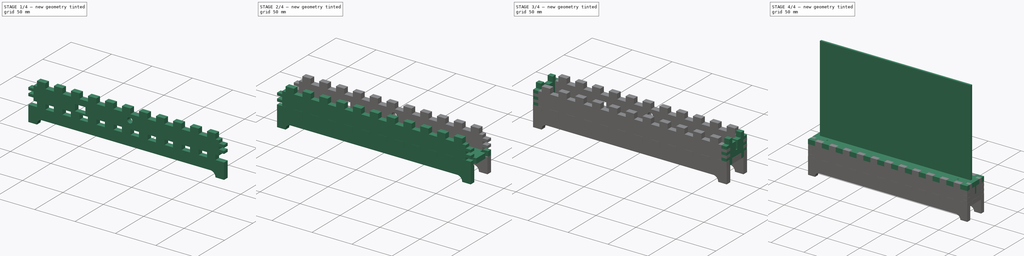
[diagram: build sequence overview — one tinted view per stage of 4, left to right]
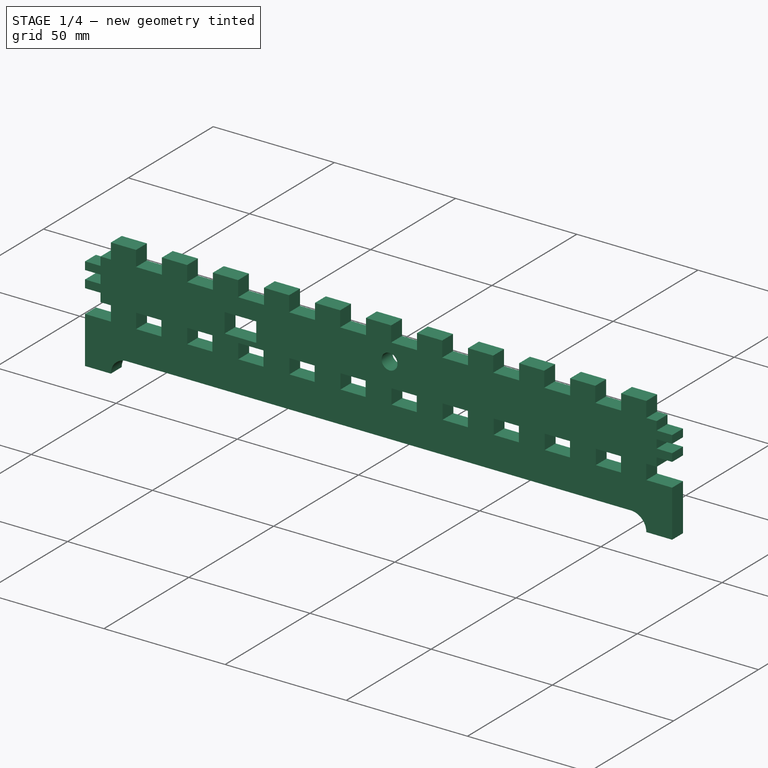
[diagram: stage 1 of 4 — iso view after this stage's code; geometry added in this stage tinted green]
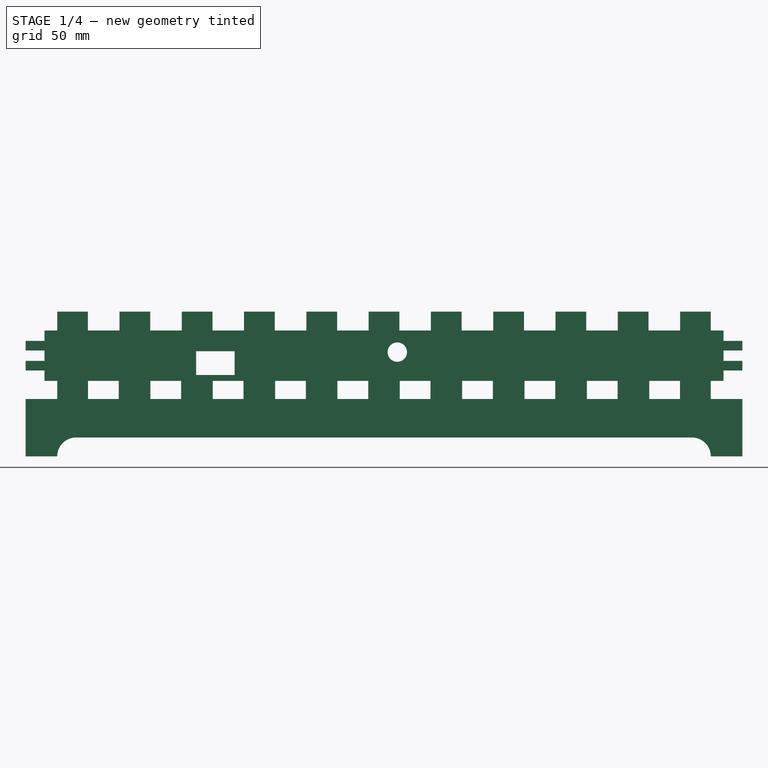
[diagram: stage 1 of 4 — front view after this stage's code; geometry added in this stage tinted green]
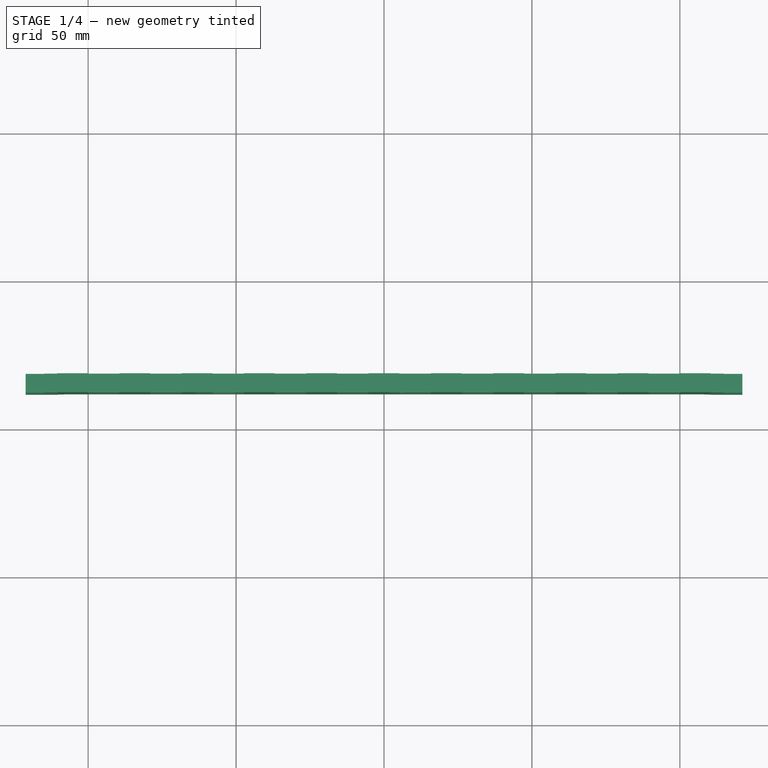
[diagram: stage 1 of 4 — top view after this stage's code; geometry added in this stage tinted green]
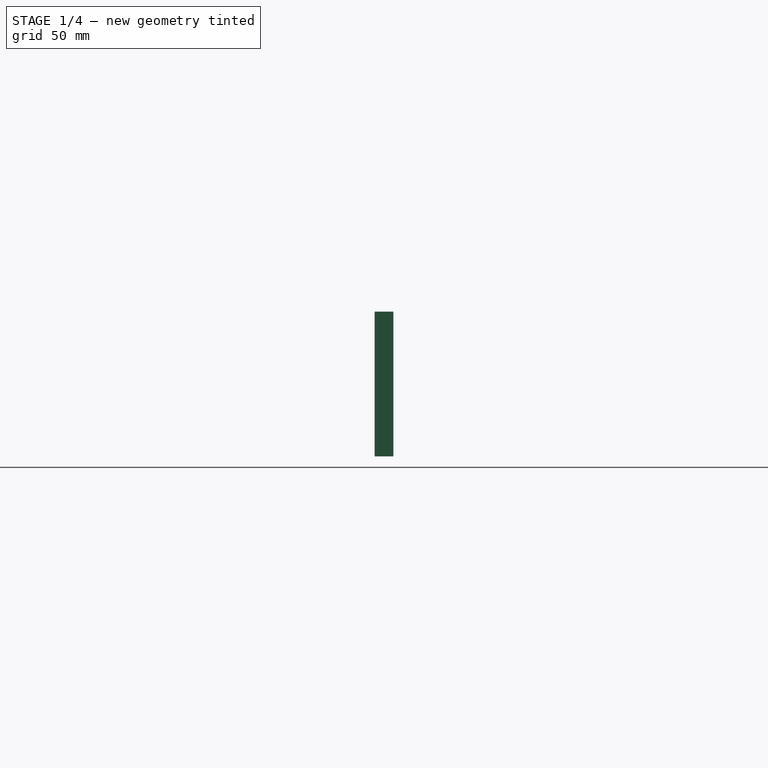
[diagram: stage 1 of 4 — right view after this stage's code; geometry added in this stage tinted green]
FCSTD DOCUMENT  (FreeCAD 0.17R13509 (Git))
Label: edge_lit_display
License: All rights reserved
LicenseURL: http://en.wikipedia.org/wiki/All_rights_reserved
objects: Part::Feature×41, App::FeaturePython×20, Sketcher::SketchObject×13, App::Part×11, PartDesign::Pad×7, PartDesign::Body×7, Part::Part2DObjectPython×7, PartDesign::Plane×6, PartDesign::Pocket×5, Part::FeaturePython×2, App::DocumentObjectGroup×2, Spreadsheet::Sheet×1
note: 100 computed .brp shape members not serialized (recipe doc carries the construction recipe); baked Part::Feature solids carry a one-line shape summary decoded from their .brp

FEATURE [PartDesign::Body] Body005
  Group = -> [DatumPlane004,Sketch006,Pad005,Sketch007,Pocket001]
  Origin = -> Origin015
  Tip = -> Pocket001
FEATURE [App::Part] Part005  label="FrontOfEnclosure"
  Group = -> [Body005]
  License = CC-BY-NC-SA
  LicenseURL = https://creativecommons.org/licenses/by-nc-sa/4.0/
  Origin = -> Origin014
FEATURE [PartDesign::Plane] DatumPlane005
  AttachmentOffset = pos=(0,0,-11.8547) rot=(0,0,1;0rad)
  MapMode = 5
  Placement = pos=(0,11.8547,1e-12) rot=(1,0,0;1.5708rad)
  Support = -> [XZ_Plane017]
  expr: AttachmentOffset.Base.z = -Datum.EnclosureWidthWithKerf / 2 + Datum.WoodThickness
FEATURE [Sketcher::SketchObject] Sketch008
  MapMode = 5
  Placement = pos=(0,11.8547,1e-12) rot=(1,0,0;1.5708rad)
  Support = -> [DatumPlane005]
  expr: Constraints[245] = Datum.WoodThickness
  expr: Constraints[235] = Datum.EnclosureLengthWithKerf
  expr: Constraints[233] = Datum.SideAboveXYWithKerf
  expr: Constraints[201] = Datum.WoodThickness * 3 + Datum.WoodKerf
  expr: Constraints[234] = -Datum.SideBelowXYWithKerf
  expr: Constraints[230] = Datum.WoodKerf
  expr: Constraints[215] = Datum.WoodKerf
  expr: Constraints[251] = Datum.WoodThickness
  expr: Constraints[196] = Datum.WoodThickness - Datum.WoodKerf
  expr: Constraints[172] = Datum.WoodThickness
  sketch-geometry (87):
    g0: LineSegment StartX=-110.45 StartY=-30.4013 StartZ=0 EndX=-121.115 EndY=-30.4013 EndZ=0
    g1: LineSegment StartX=-121.115 StartY=-30.4013 StartZ=0 EndX=-121.115 EndY=-10.9957 EndZ=0
    g2: LineSegment StartX=-121.115 StartY=-10.9957 StartZ=0 EndX=-110.45 EndY=-10.9957 EndZ=0
    g3: LineSegment StartX=-110.45 StartY=-10.9957 StartZ=0 EndX=-110.45 EndY=-4.8997 EndZ=0
    g4: LineSegment StartX=-110.45 StartY=-4.8997 StartZ=0 EndX=-114.74 EndY=-4.8997 EndZ=0
    g5: LineSegment StartX=-114.74 StartY=-4.8997 StartZ=0 EndX=-114.74 EndY=-1.38006 EndZ=0
    g6: LineSegment StartX=-114.74 StartY=-1.38006 StartZ=0 EndX=-121.115 EndY=-1.38006 EndZ=0
    g7: LineSegment StartX=-121.115 StartY=-1.38006 StartZ=0 EndX=-121.115 EndY=1.86018 EndZ=0
    g8: LineSegment StartX=-121.115 StartY=1.86018 StartZ=0 EndX=-114.74 EndY=1.86018 EndZ=0
    g9: LineSegment StartX=-114.74 StartY=1.86018 StartZ=0 EndX=-114.74 EndY=5.37982 EndZ=0
    g10: LineSegment StartX=-114.74 StartY=5.37982 StartZ=0 EndX=-121.115 EndY=5.37982 EndZ=0
    g11: LineSegment StartX=-121.115 StartY=5.37982 StartZ=0 EndX=-121.115 EndY=8.62006 EndZ=0
    g12: LineSegment StartX=-121.115 StartY=8.62006 StartZ=0 EndX=-114.74 EndY=8.62006 EndZ=0
    g13: LineSegment StartX=-114.74 StartY=8.62006 StartZ=0 EndX=-114.74 EndY=12.1397 EndZ=0
    g14: LineSegment StartX=-114.74 StartY=12.1397 StartZ=0 EndX=-110.45 EndY=12.1397 EndZ=0
    g15: LineSegment StartX=-110.45 StartY=12.1397 StartZ=0 EndX=-110.45 EndY=18.5151 EndZ=0
    g16: LineSegment StartX=-110.45 StartY=18.5151 StartZ=0 EndX=-100.064 EndY=18.5151 EndZ=0
    g17: LineSegment StartX=-100.064 StartY=18.5151 StartZ=0 EndX=-100.064 EndY=12.1397 EndZ=0
    g18: LineSegment StartX=-100.064 StartY=12.1397 StartZ=0 EndX=-89.3984 EndY=12.1397 EndZ=0
    g19: LineSegment StartX=-89.3984 StartY=12.1397 StartZ=0 EndX=-89.3984 EndY=18.5151 EndZ=0
    g20: LineSegment StartX=-89.3984 StartY=18.5151 StartZ=0 EndX=-79.0124 EndY=18.5151 EndZ=0
    g21: LineSegment StartX=-79.0124 StartY=18.5151 StartZ=0 EndX=-79.0124 EndY=12.1397 EndZ=0
    g22: LineSegment StartX=-79.0124 StartY=12.1397 StartZ=0 EndX=-68.347 EndY=12.1397 EndZ=0
    g23: LineSegment StartX=-68.347 StartY=12.1397 StartZ=0 EndX=-68.347 EndY=18.5151 EndZ=0
    g24: LineSegment StartX=-68.347 StartY=18.5151 StartZ=0 EndX=-57.9611 EndY=18.5151 EndZ=0
    g25: LineSegment StartX=-57.9611 StartY=18.5151 StartZ=0 EndX=-57.9611 EndY=12.1397 EndZ=0
    g26: LineSegment StartX=-57.9611 StartY=12.1397 StartZ=0 EndX=-47.2957 EndY=12.1397 EndZ=0
    g27: LineSegment StartX=-47.2957 StartY=12.1397 StartZ=0 EndX=-47.2957 EndY=18.5151 EndZ=0
    g28: LineSegment StartX=-47.2957 StartY=18.5151 StartZ=0 EndX=-36.9097 EndY=18.5151 EndZ=0
    g29: LineSegment StartX=-36.9097 StartY=18.5151 StartZ=0 EndX=-36.9097 EndY=12.1397 EndZ=0
    g30: LineSegment StartX=-36.9097 StartY=12.1397 StartZ=0 EndX=-26.2443 EndY=12.1397 EndZ=0
    g31: LineSegment StartX=-26.2443 StartY=12.1397 StartZ=0 EndX=-26.2443 EndY=18.5151 EndZ=0
    g32: LineSegment StartX=-26.2443 StartY=18.5151 StartZ=0 EndX=-15.8584 EndY=18.5151 EndZ=0
    g33: LineSegment StartX=-15.8584 StartY=18.5151 StartZ=0 EndX=-15.8584 EndY=12.1397 EndZ=0
    g34: LineSegment StartX=-15.8584 StartY=12.1397 StartZ=0 EndX=-5.19299 EndY=12.1397 EndZ=0
    g35: LineSegment StartX=-5.19299 StartY=12.1397 StartZ=0 EndX=-5.19299 EndY=18.5151 EndZ=0
    g36: LineSegment StartX=-5.19299 StartY=18.5151 StartZ=0 EndX=5.19299 EndY=18.5151 EndZ=0
    g37: LineSegment StartX=5.19299 StartY=18.5151 StartZ=0 EndX=5.19299 EndY=12.1397 EndZ=0
    g38: LineSegment StartX=5.19299 StartY=12.1397 StartZ=0 EndX=15.8584 EndY=12.1397 EndZ=0
    g39: LineSegment StartX=15.8584 StartY=12.1397 StartZ=0 EndX=15.8584 EndY=18.5151 EndZ=0
    g40: LineSegment StartX=15.8584 StartY=18.5151 StartZ=0 EndX=26.2443 EndY=18.5151 EndZ=0
    g41: LineSegment StartX=26.2443 StartY=18.5151 StartZ=0 EndX=26.2443 EndY=12.1397 EndZ=0
    g42: LineSegment StartX=26.2443 StartY=12.1397 StartZ=0 EndX=36.9097 EndY=12.1397 EndZ=0
    g43: LineSegment StartX=36.9097 StartY=12.1397 StartZ=0 EndX=36.9097 EndY=18.5151 EndZ=0
    g44: LineSegment StartX=36.9097 StartY=18.5151 StartZ=0 EndX=47.2957 EndY=18.5151 EndZ=0
    g45: LineSegment StartX=47.2957 StartY=18.5151 StartZ=0 EndX=47.2957 EndY=12.1397 EndZ=0
    g46: LineSegment StartX=47.2957 StartY=12.1397 StartZ=0 EndX=57.9611 EndY=12.1397 EndZ=0
    g47: LineSegment StartX=57.9611 StartY=12.1397 StartZ=0 EndX=57.9611 EndY=18.5151 EndZ=0
    g48: LineSegment StartX=57.9611 StartY=18.5151 StartZ=0 EndX=68.347 EndY=18.5151 EndZ=0
    g49: LineSegment StartX=68.347 StartY=18.5151 StartZ=0 EndX=68.347 EndY=12.1397 EndZ=0
    g50: LineSegment StartX=68.347 StartY=12.1397 StartZ=0 EndX=79.0124 EndY=12.1397 EndZ=0
    g51: LineSegment StartX=79.0124 StartY=12.1397 StartZ=0 EndX=79.0124 EndY=18.5151 EndZ=0
    g52: LineSegment StartX=79.0124 StartY=18.5151 StartZ=0 EndX=89.3984 EndY=18.5151 EndZ=0
    g53: LineSegment StartX=89.3984 StartY=18.5151 StartZ=0 EndX=89.3984 EndY=12.1397 EndZ=0
    g54: LineSegment StartX=89.3984 StartY=12.1397 StartZ=0 EndX=100.064 EndY=12.1397 EndZ=0
    g55: LineSegment StartX=100.064 StartY=12.1397 StartZ=0 EndX=100.064 EndY=18.5151 EndZ=0
    g56: LineSegment StartX=100.064 StartY=18.5151 StartZ=0 EndX=110.45 EndY=18.5151 EndZ=0
    g57: LineSegment StartX=110.45 StartY=18.5151 StartZ=0 EndX=110.45 EndY=12.1397 EndZ=0
    g58: LineSegment StartX=110.45 StartY=12.1397 StartZ=0 EndX=114.74 EndY=12.1397 EndZ=0
    g59: LineSegment StartX=114.74 StartY=12.1397 StartZ=0 EndX=114.74 EndY=8.62006 EndZ=0
    g60: LineSegment StartX=114.74 StartY=8.62006 StartZ=0 EndX=121.115 EndY=8.62006 EndZ=0
    g61: LineSegment StartX=121.115 StartY=8.62006 StartZ=0 EndX=121.115 EndY=5.37982 EndZ=0
    g62: LineSegment StartX=121.115 StartY=5.37982 StartZ=0 EndX=114.74 EndY=5.37982 EndZ=0
    g63: LineSegment StartX=114.74 StartY=5.37982 StartZ=0 EndX=114.74 EndY=1.86018 EndZ=0
    g64: LineSegment StartX=114.74 StartY=1.86018 StartZ=0 EndX=121.115 EndY=1.86018 EndZ=0
    g65: LineSegment StartX=121.115 StartY=1.86018 StartZ=0 EndX=121.115 EndY=-1.38006 EndZ=0
    g66: LineSegment StartX=121.115 StartY=-1.38006 StartZ=0 EndX=114.74 EndY=-1.38006 EndZ=0
    g67: LineSegment StartX=114.74 StartY=-1.38006 StartZ=0 EndX=114.74 EndY=-4.8997 EndZ=0
    g68: LineSegment StartX=114.74 StartY=-4.8997 StartZ=0 EndX=110.45 EndY=-4.8997 EndZ=0
    g69: LineSegment StartX=110.45 StartY=-4.8997 StartZ=0 EndX=110.45 EndY=-10.9957 EndZ=0
    g70: LineSegment StartX=110.45 StartY=-10.9957 StartZ=0 EndX=121.115 EndY=-10.9957 EndZ=0
    g71: LineSegment StartX=121.115 StartY=-10.9957 StartZ=0 EndX=121.115 EndY=-30.4013 EndZ=0
    g72: LineSegment StartX=121.115 StartY=-30.4013 StartZ=0 EndX=110.45 EndY=-30.4013 EndZ=0
    g73: LineSegment [constr] StartX=114.74 StartY=12.1397 StartZ=0 EndX=121.115 EndY=12.1397 EndZ=0
    g74: LineSegment [constr] StartX=121.115 StartY=12.1397 StartZ=0 EndX=121.115 EndY=8.62006 EndZ=0
    g75: LineSegment [constr] StartX=110.45 StartY=12.1397 StartZ=0 EndX=121.115 EndY=12.1397 EndZ=0
    g76: LineSegment [constr] StartX=89.3984 StartY=12.1397 StartZ=0 EndX=89.6778 EndY=12.1397 EndZ=0
    g77: LineSegment [constr] StartX=89.6778 StartY=12.1397 StartZ=0 EndX=100.064 EndY=12.1397 EndZ=0
    g78: LineSegment [constr] StartX=114.74 StartY=5.37982 StartZ=0 EndX=114.74 EndY=2.13958 EndZ=0
    g79: LineSegment [constr] StartX=114.74 StartY=2.13958 StartZ=0 EndX=114.74 EndY=1.86018 EndZ=0
    g80: LineSegment [constr] StartX=110.45 StartY=18.5151 StartZ=0 EndX=121.115 EndY=18.5151 EndZ=0
    g81: LineSegment [constr] StartX=121.115 StartY=18.5151 StartZ=0 EndX=121.115 EndY=12.1397 EndZ=0
    g82: ArcOfCircle CenterX=104.074 CenterY=-30.4013 CenterZ=0 NormalX=0 NormalY=0 NormalZ=1 AngleXU=0 Radius=6.3754 StartAngle=0 EndAngle=1.5708
    g83: LineSegment [constr] StartX=104.074 StartY=-30.4013 StartZ=0 EndX=110.45 EndY=-30.4013 EndZ=0
    g84: ArcOfCircle CenterX=-104.074 CenterY=-30.4013 CenterZ=0 NormalX=0 NormalY=0 NormalZ=1 AngleXU=0 Radius=6.3754 StartAngle=1.5708 EndAngle=3.14159
    g85: LineSegment [constr] StartX=-110.45 StartY=-30.4013 StartZ=0 EndX=-104.074 EndY=-30.4013 EndZ=0
    g86: LineSegment StartX=-104.074 StartY=-24.0259 StartZ=0 EndX=104.074 EndY=-24.0259 EndZ=0
  constraints (259):
    c: Horizontal(g0)
    c: Coincident(g0,g1)
    c: Vertical(g1)
    c: Coincident(g1,g2)
    c: Horizontal(g2)
    c: Coincident(g2,g3)
    c: Vertical(g3)
    c: Coincident(g3,g4)
    c: Horizontal(g4)
    c: Coincident(g4,g5)
    c: Vertical(g5)
    c: Coincident(g5,g6)
    c: Horizontal(g6)
    c: Coincident(g6,g7)
    c: Vertical(g7)
    c: Coincident(g7,g8)
    c: Horizontal(g8)
    c: Coincident(g8,g9)
    c: Vertical(g9)
    c: Coincident(g9,g10)
    c: Horizontal(g10)
    c: Coincident(g10,g11)
    c: Vertical(g11)
    c: Coincident(g11,g12)
    c: Horizontal(g12)
    c: Coincident(g12,g13)
    c: Vertical(g13)
    c: Coincident(g13,g14)
    c: Horizontal(g14)
    c: Coincident(g14,g15)
    c: Vertical(g15)
    c: Coincident(g15,g16)
    c: Horizontal(g16)
    c: Coincident(g16,g17)
    c: Vertical(g17)
    c: Coincident(g17,g18)
    c: Horizontal(g18)
    c: Coincident(g18,g19)
    c: Vertical(g19)
    c: Coincident(g19,g20)
    c: Horizontal(g20)
    c: Coincident(g20,g21)
    c: Vertical(g21)
    c: Coincident(g21,g22)
    c: Horizontal(g22)
    c: Coincident(g22,g23)
    c: Vertical(g23)
    c: Coincident(g23,g24)
    c: Horizontal(g24)
    c: Coincident(g24,g25)
    c: Vertical(g25)
    c: Coincident(g25,g26)
    c: Horizontal(g26)
    c: Coincident(g26,g27)
    c: Vertical(g27)
    c: Coincident(g27,g28)
    c: Horizontal(g28)
    c: Coincident(g28,g29)
    c: Vertical(g29)
    c: Coincident(g29,g30)
    c: Horizontal(g30)
    c: Coincident(g30,g31)
    c: Vertical(g31)
    c: Coincident(g31,g32)
    c: Horizontal(g32)
    c: Coincident(g32,g33)
    c: Vertical(g33)
    c: Coincident(g33,g34)
    c: Horizontal(g34)
    c: Coincident(g34,g35)
    c: Vertical(g35)
    c: Coincident(g35,g36)
    c: Horizontal(g36)
    c: Coincident(g36,g37)
    c: Vertical(g37)
    c: Coincident(g37,g38)
    c: Horizontal(g38)
    c: Coincident(g38,g39)
    c: Vertical(g39)
    c: Coincident(g39,g40)
    c: Horizontal(g40)
    c: Coincident(g40,g41)
    c: Vertical(g41)
    c: Coincident(g41,g42)
    c: Horizontal(g42)
    c: Coincident(g42,g43)
    c: Vertical(g43)
    c: Coincident(g43,g44)
    c: Horizontal(g44)
    c: Coincident(g44,g45)
    c: Vertical(g45)
    c: Coincident(g45,g46)
    c: Horizontal(g46)
    c: Coincident(g46,g47)
    c: Vertical(g47)
    c: Coincident(g47,g48)
    c: Horizontal(g48)
    c: Coincident(g48,g49)
    c: Vertical(g49)
    c: Coincident(g49,g50)
    c: Horizontal(g50)
    c: Coincident(g50,g51)
    c: Vertical(g51)
    c: Coincident(g51,g52)
    c: Horizontal(g52)
    c: Coincident(g52,g53)
    c: Vertical(g53)
    c: Coincident(g53,g54)
    c: Coincident(g54,g55)
    c: Vertical(g55)
    c: Coincident(g55,g56)
    c: Horizontal(g56)
    c: Coincident(g56,g57)
    c: Vertical(g57)
    c: Coincident(g57,g58)
    c: Coincident(g58,g59)
    c: Vertical(g59)
    c: Coincident(g59,g60)
    c: Horizontal(g60)
    c: Coincident(g60,g61)
    c: Vertical(g61)
    c: Coincident(g61,g62)
    c: Horizontal(g62)
    c: Coincident(g62,g63)
    c: Vertical(g63)
    c: Coincident(g63,g64)
    c: Horizontal(g64)
    c: Coincident(g64,g65)
    c: Vertical(g65)
    c: Coincident(g65,g66)
    c: Horizontal(g66)
    c: Coincident(g66,g67)
    c: Vertical(g67)
    c: Coincident(g67,g68)
    c: Horizontal(g68)
    c: Coincident(g68,g69)
    c: Vertical(g69)
    c: Coincident(g69,g70)
    c: Horizontal(g70)
    c: Coincident(g70,g71)
    c: Vertical(g71)
    c: Coincident(g71,g72)
    c: Horizontal(g72)
    c: Equal(g6,g8)
    c: Equal(g8,g10)
    c: Equal(g10,g12)
    c: Equal(g12,g15)
    c: Equal(g15,g17)
    c: Equal(g17,g19)
    c: Equal(g19,g21)
    c: Equal(g21,g23)
    c: Equal(g23,g25)
    c: Equal(g25,g27)
    c: Equal(g27,g29)
    c: Equal(g29,g31)
    c: Equal(g31,g33)
    c: Equal(g33,g35)
    c: Equal(g35,g37)
    c: Equal(g37,g39)
    c: Equal(g39,g41)
    c: Equal(g41,g43)
    c: Equal(g43,g45)
    c: Equal(g45,g47)
    c: Equal(g47,g49)
    c: Equal(g49,g51)
    c: Equal(g51,g53)
    c: Equal(g53,g55)
    c: Equal(g55,g57)
    c: Equal(g57,g60)
    c: Equal(g60,g62)
    c: Equal(g62,g64)
    c: Equal(g64,g66)
    c: DistanceY(g57,g57) = 6.3754
    c: Equal(g16,g20)
    c: Equal(g20,g24)
    c: Equal(g24,g28)
    c: Equal(g28,g32)
    c: Equal(g32,g36)
    c: Equal(g36,g40)
    c: Equal(g40,g44)
    c: Equal(g44,g48)
    c: Equal(g48,g52)
    c: Equal(g52,g56)
    c: Equal(g18,g22)
    c: Equal(g22,g26)
    c: Equal(g26,g30)
    c: Equal(g30,g34)
    c: Equal(g34,g38)
    c: Equal(g38,g42)
    c: Equal(g42,g46)
    c: Equal(g46,g50)
    c: Equal(g50,g54)
    c: Equal(g68,g58)
    c: Equal(g58,g14)
    c: Equal(g14,g4)
    c: Equal(g3,g69)
    c: DistanceY(g69,g69) = 6.096
    c: Equal(g70,g72)
    c: Equal(g72,g2)
    c: Equal(g2,g0)
    c: Equal(g1,g71)
    c: DistanceY(g71,g71) = 19.4056
    c: Coincident(g58,g73)
    c: Horizontal(g73)
    c: Coincident(g73,g74)
    c: Coincident(g74,g60)
    c: Vertical(g74)
    c: Horizontal(g75)
    c: Equal(g54,g75)
    c: Coincident(g75,g57)
    c: Coincident(g73,g75)
    c: Horizontal(g76)
    c: Coincident(g76,g77)
    c: Horizontal(g77)
    c: Equal(g77,g56)
    c: DistanceX(g76,g76) = 0.2794
    c: Coincident(g76,g53)
    c: Coincident(g77,g54)
    c: Equal(g67,g63)
    c: Equal(g63,g59)
    c: Equal(g59,g13)
    c: Equal(g13,g9)
    c: Equal(g9,g5)
    c: Equal(g7,g11)
    c: Equal(g11,g61)
    c: Equal(g61,g65)
    c: Vertical(g78)
    c: Coincident(g78,g79)
    c: Vertical(g79)
    c: Equal(g78,g61)
    c: DistanceY(g79,g79) = 0.2794
    c: Coincident(g79,g63)
    c: Coincident(g78,g62)
    c: DistanceY(g-1,g57) = 12.1397
    c: DistanceY(g-1,g68) = -4.8997
    c: Distance(g60,g11) = 242.23
    c: Symmetric(g60,g11,g-2)
    c: Coincident(g56,g80)
    c: Horizontal(g80)
    c: Coincident(g80,g81)
    c: Coincident(g81,g73)
    c: Vertical(g81)
    c: Equal(g54,g80)
    c: Equal(g80,g70)
    c: Angle(g82) = 1.5708
    c: Radius(g82) = 6.3754
    c: Coincident(g82,g72)
    c: Coincident(g83,g82)
    c: Coincident(g83,g72)
    c: Horizontal(g83)
    c: Angle(g84) = 1.5708
    c: Radius(g84) = 6.3754
    c: Coincident(g84,g0)
    c: Coincident(g85,g0)
    c: Coincident(g85,g84)
    c: Horizontal(g85)
    c: Coincident(g86,g84)
    c: Horizontal(g86)
    c: Coincident(g86,g82)
FEATURE [PartDesign::Pad] Pad006
  Length = 6.3754
  Length2 = 100
  Placement = pos=(0,11.8547,1e-12) rot=(1,0,0;1.5708rad)
  Profile = -> Sketch008
  Reversed = true
  Type = 0
  expr: Length = Datum.WoodThickness
FEATURE [Sketcher::SketchObject] Sketch009
  MapMode = 5
  Placement = pos=(0,11.8547,1e-12) rot=(1,0,0;1.5708rad)
  Support = -> [Pad006]
  expr: Constraints[151] = Datum.WoodKerf
  expr: Constraints[146] = Datum.EnclosureLengthWithKerf
  expr: Constraints[99] = -Datum.SideBelowXYWithKerf
  expr: Constraints[97] = Datum.WoodThickness - Datum.WoodKerf
  sketch-geometry (55):
    g0: LineSegment StartX=-100.039 StartY=-4.8997 StartZ=0 EndX=-89.6413 EndY=-4.8997 EndZ=0
    g1: LineSegment StartX=-89.6413 StartY=-4.8997 StartZ=0 EndX=-89.6413 EndY=-10.9957 EndZ=0
    g2: LineSegment StartX=-89.6413 StartY=-10.9957 StartZ=0 EndX=-100.039 EndY=-10.9957 EndZ=0
    g3: LineSegment StartX=-100.039 StartY=-10.9957 StartZ=0 EndX=-100.039 EndY=-4.8997 EndZ=0
    g4: LineSegment StartX=-78.9638 StartY=-4.8997 StartZ=0 EndX=-68.5657 EndY=-4.8997 EndZ=0
    g5: LineSegment StartX=-68.5657 StartY=-4.8997 StartZ=0 EndX=-68.5657 EndY=-10.9957 EndZ=0
    g6: LineSegment StartX=-68.5657 StartY=-10.9957 StartZ=0 EndX=-78.9638 EndY=-10.9957 EndZ=0
    g7: LineSegment StartX=-78.9638 StartY=-10.9957 StartZ=0 EndX=-78.9638 EndY=-4.8997 EndZ=0
    g8: LineSegment StartX=-57.8882 StartY=-4.8997 StartZ=0 EndX=-47.49 EndY=-4.8997 EndZ=0
    g9: LineSegment StartX=-47.49 StartY=-4.8997 StartZ=0 EndX=-47.49 EndY=-10.9957 EndZ=0
    g10: LineSegment StartX=-47.49 StartY=-10.9957 StartZ=0 EndX=-57.8882 EndY=-10.9957 EndZ=0
    g11: LineSegment StartX=-57.8882 StartY=-10.9957 StartZ=0 EndX=-57.8882 EndY=-4.8997 EndZ=0
    g12: LineSegment StartX=-36.8125 StartY=-4.8997 StartZ=0 EndX=-26.4144 EndY=-4.8997 EndZ=0
    g13: LineSegment StartX=-26.4144 StartY=-4.8997 StartZ=0 EndX=-26.4144 EndY=-10.9957 EndZ=0
    g14: LineSegment StartX=-26.4144 StartY=-10.9957 StartZ=0 EndX=-36.8125 EndY=-10.9957 EndZ=0
    g15: LineSegment StartX=-36.8125 StartY=-10.9957 StartZ=0 EndX=-36.8125 EndY=-4.8997 EndZ=0
    g16: LineSegment StartX=-15.7369 StartY=-4.8997 StartZ=0 EndX=-5.33876 EndY=-4.8997 EndZ=0
    g17: LineSegment StartX=-5.33876 StartY=-4.8997 StartZ=0 EndX=-5.33876 EndY=-10.9957 EndZ=0
    g18: LineSegment StartX=-5.33876 StartY=-10.9957 StartZ=0 EndX=-15.7369 EndY=-10.9957 EndZ=0
    g19: LineSegment StartX=-15.7369 StartY=-10.9957 StartZ=0 EndX=-15.7369 EndY=-4.8997 EndZ=0
    g20: LineSegment StartX=5.33876 StartY=-4.8997 StartZ=0 EndX=15.7369 EndY=-4.8997 EndZ=0
    g21: LineSegment StartX=15.7369 StartY=-4.8997 StartZ=0 EndX=15.7369 EndY=-10.9957 EndZ=0
    g22: LineSegment StartX=15.7369 StartY=-10.9957 StartZ=0 EndX=5.33876 EndY=-10.9957 EndZ=0
    g23: LineSegment StartX=5.33876 StartY=-10.9957 StartZ=0 EndX=5.33876 EndY=-4.8997 EndZ=0
    g24: LineSegment StartX=26.4144 StartY=-4.8997 StartZ=0 EndX=36.8125 EndY=-4.8997 EndZ=0
    g25: LineSegment StartX=36.8125 StartY=-4.8997 StartZ=0 EndX=36.8125 EndY=-10.9957 EndZ=0
    g26: LineSegment StartX=36.8125 StartY=-10.9957 StartZ=0 EndX=26.4144 EndY=-10.9957 EndZ=0
    g27: LineSegment StartX=26.4144 StartY=-10.9957 StartZ=0 EndX=26.4144 EndY=-4.8997 EndZ=0
    g28: LineSegment StartX=47.49 StartY=-4.8997 StartZ=0 EndX=57.8882 EndY=-4.8997 EndZ=0
    g29: LineSegment StartX=57.8882 StartY=-4.8997 StartZ=0 EndX=57.8882 EndY=-10.9957 EndZ=0
    g30: LineSegment StartX=57.8882 StartY=-10.9957 StartZ=0 EndX=47.49 EndY=-10.9957 EndZ=0
    g31: LineSegment StartX=47.49 StartY=-10.9957 StartZ=0 EndX=47.49 EndY=-4.8997 EndZ=0
    g32: LineSegment StartX=68.5657 StartY=-4.8997 StartZ=0 EndX=78.9638 EndY=-4.8997 EndZ=0
    g33: LineSegment StartX=78.9638 StartY=-4.8997 StartZ=0 EndX=78.9638 EndY=-10.9957 EndZ=0
    g34: LineSegment StartX=78.9638 StartY=-10.9957 StartZ=0 EndX=68.5657 EndY=-10.9957 EndZ=0
    g35: LineSegment StartX=68.5657 StartY=-10.9957 StartZ=0 EndX=68.5657 EndY=-4.8997 EndZ=0
    g36: LineSegment StartX=89.6413 StartY=-4.8997 StartZ=0 EndX=100.039 EndY=-4.8997 EndZ=0
    g37: LineSegment StartX=100.039 StartY=-4.8997 StartZ=0 EndX=100.039 EndY=-10.9957 EndZ=0
    g38: LineSegment StartX=100.039 StartY=-10.9957 StartZ=0 EndX=89.6413 EndY=-10.9957 EndZ=0
    g39: LineSegment StartX=89.6413 StartY=-10.9957 StartZ=0 EndX=89.6413 EndY=-4.8997 EndZ=0
    g40: LineSegment [constr] StartX=100.039 StartY=-4.8997 StartZ=0 EndX=110.717 EndY=-4.8997 EndZ=0
    g41: LineSegment [constr] StartX=110.717 StartY=-4.8997 StartZ=0 EndX=121.115 EndY=-4.8997 EndZ=0
    g42: LineSegment [constr] StartX=89.6413 StartY=-4.8997 StartZ=0 EndX=78.9638 EndY=-4.8997 EndZ=0
    g43: LineSegment [constr] StartX=68.5657 StartY=-4.8997 StartZ=0 EndX=57.8882 EndY=-4.8997 EndZ=0
    g44: LineSegment [constr] StartX=47.49 StartY=-4.8997 StartZ=0 EndX=36.8125 EndY=-4.8997 EndZ=0
    g45: LineSegment [constr] StartX=26.4144 StartY=-4.8997 StartZ=0 EndX=15.7369 EndY=-4.8997 EndZ=0
    g46: LineSegment [constr] StartX=5.33876 StartY=-4.8997 StartZ=0 EndX=-5.33876 EndY=-4.8997 EndZ=0
    g47: LineSegment [constr] StartX=-15.7369 StartY=-4.8997 StartZ=0 EndX=-26.4144 EndY=-4.8997 EndZ=0
    g48: LineSegment [constr] StartX=-36.8125 StartY=-4.8997 StartZ=0 EndX=-47.49 EndY=-4.8997 EndZ=0
    g49: LineSegment [constr] StartX=-57.8882 StartY=-4.8997 StartZ=0 EndX=-68.5657 EndY=-4.8997 EndZ=0
    g50: LineSegment [constr] StartX=-78.9638 StartY=-4.8997 StartZ=0 EndX=-89.6413 EndY=-4.8997 EndZ=0
    g51: LineSegment [constr] StartX=-100.039 StartY=-4.8997 StartZ=0 EndX=-110.717 EndY=-4.8997 EndZ=0
    g52: LineSegment [constr] StartX=-110.717 StartY=-4.8997 StartZ=0 EndX=-121.115 EndY=-4.8997 EndZ=0
    g53: LineSegment [constr] StartX=78.9638 StartY=-4.8997 StartZ=0 EndX=89.3619 EndY=-4.8997 EndZ=0
    g54: LineSegment [constr] StartX=89.3619 StartY=-4.8997 StartZ=0 EndX=89.6413 EndY=-4.8997 EndZ=0
  constraints (155):
    c: Coincident(g0,g1)
    c: Coincident(g1,g2)
    c: Coincident(g2,g3)
    c: Coincident(g3,g0)
    c: Horizontal(g0)
    c: Horizontal(g2)
    c: Vertical(g1)
    c: Vertical(g3)
    c: Coincident(g4,g5)
    c: Coincident(g5,g6)
    c: Coincident(g6,g7)
    c: Coincident(g7,g4)
    c: Horizontal(g4)
    c: Horizontal(g6)
    c: Vertical(g5)
    c: Vertical(g7)
    c: Coincident(g8,g9)
    c: Coincident(g9,g10)
    c: Coincident(g10,g11)
    c: Coincident(g11,g8)
    c: Horizontal(g8)
    c: Horizontal(g10)
    c: Vertical(g9)
    c: Vertical(g11)
    c: Coincident(g12,g13)
    c: Coincident(g13,g14)
    c: Coincident(g14,g15)
    c: Coincident(g15,g12)
    c: Horizontal(g12)
    c: Horizontal(g14)
    c: Vertical(g13)
    c: Vertical(g15)
    c: Coincident(g16,g17)
    c: Coincident(g17,g18)
    c: Coincident(g18,g19)
    c: Coincident(g19,g16)
    c: Horizontal(g16)
    c: Horizontal(g18)
    c: Vertical(g17)
    c: Vertical(g19)
    c: Coincident(g20,g21)
    c: Coincident(g21,g22)
    c: Coincident(g22,g23)
    c: Coincident(g23,g20)
    c: Horizontal(g20)
    c: Horizontal(g22)
    c: Vertical(g21)
    c: Vertical(g23)
    c: Coincident(g24,g25)
    c: Coincident(g25,g26)
    c: Coincident(g26,g27)
    c: Coincident(g27,g24)
    c: Horizontal(g24)
    c: Horizontal(g26)
    c: Vertical(g25)
    c: Vertical(g27)
    c: Coincident(g28,g29)
    c: Coincident(g29,g30)
    c: Coincident(g30,g31)
    c: Coincident(g31,g28)
    c: Horizontal(g28)
    c: Horizontal(g30)
    c: Vertical(g29)
    c: Vertical(g31)
    c: Coincident(g32,g33)
    c: Coincident(g33,g34)
    c: Coincident(g34,g35)
    c: Coincident(g35,g32)
    c: Horizontal(g32)
    c: Horizontal(g34)
    c: Vertical(g33)
    c: Vertical(g35)
    c: Coincident(g36,g37)
    c: Coincident(g37,g38)
    c: Coincident(g38,g39)
    c: Coincident(g39,g36)
    c: Horizontal(g36)
    c: Horizontal(g38)
    c: Vertical(g37)
    c: Vertical(g39)
    c: Equal(g33,g29)
    c: Equal(g29,g25)
    c: Equal(g25,g21)
    c: Equal(g21,g17)
    c: Equal(g17,g13)
    c: Equal(g13,g9)
    c: Equal(g9,g5)
    c: Equal(g5,g1)
    c: Equal(g0,g4)
    c: Equal(g4,g8)
    c: Equal(g8,g12)
    c: Equal(g12,g16)
    c: Equal(g16,g20)
    c: Equal(g20,g24)
    c: Equal(g24,g28)
    c: Equal(g28,g32)
    c: Equal(g32,g36)
    c: DistanceY(g37,g37) = 6.096
    c: Equal(g33,g37)
    c: DistanceY(g-1,g36) = -4.8997
    c: Coincident(g36,g40)
    c: Horizontal(g40)
    c: Coincident(g40,g41)
    c: Horizontal(g41)
    c: Equal(g41,g36)
    c: Coincident(g42,g36)
    c: Coincident(g42,g32)
    c: Coincident(g43,g32)
    c: Coincident(g43,g28)
    c: Horizontal(g43)
    c: Coincident(g44,g28)
    c: Coincident(g44,g24)
    c: Horizontal(g44)
    c: Coincident(g45,g24)
    c: Coincident(g45,g20)
    c: Horizontal(g45)
    c: Coincident(g46,g20)
    c: Coincident(g46,g16)
    c: Horizontal(g46)
    c: Coincident(g47,g16)
    c: Coincident(g47,g12)
    c: Horizontal(g47)
    c: Coincident(g48,g12)
    c: Coincident(g48,g8)
    c: Horizontal(g48)
    c: Coincident(g49,g8)
    c: Coincident(g49,g4)
    c: Horizontal(g49)
    c: Coincident(g50,g4)
    c: Coincident(g50,g0)
    c: Horizontal(g50)
    c: Coincident(g0,g51)
    c: Horizontal(g51)
    c: Coincident(g51,g52)
    c: Horizontal(g52)
    c: Equal(g0,g52)
    c: Equal(g51,g50)
    c: Equal(g50,g49)
    c: Equal(g49,g48)
    c: Equal(g48,g47)
    c: Equal(g47,g46)
    c: Equal(g46,g45)
    c: Equal(g45,g44)
    c: Equal(g44,g43)
    c: Equal(g43,g42)
    c: Equal(g42,g40)
    c: Distance(g41,g52) = 242.23
    c: Symmetric(g41,g52,g-2)
    c: Horizontal(g53)
    c: Coincident(g53,g54)
    c: Horizontal(g54)
    c: DistanceX(g54,g54) = 0.2794
    c: Coincident(g54,g36)
    c: Coincident(g53,g32)
    c: Equal(g53,g36)
FEATURE [PartDesign::Pocket] Pocket002
  BaseFeature = -> Pad006
  Length = 7.3754
  Length2 = 100
  Placement = pos=(0,11.8547,1e-12) rot=(1,0,0;1.5708rad)
  Profile = -> Sketch009
  Type = 0
  expr: Length = Datum.WoodThickness + 1mm
FEATURE [PartDesign::Body] Body004
  Group = -> [DatumPlane003,Sketch005,Pad004,Sketch010,Pocket003]
  Origin = -> Origin013
  Tip = -> Pocket003
FEATURE [App::Part] Part004  label="BottomOfEnclosure"
  Group = -> [Body004]
  License = CC-BY-NC-SA
  LicenseURL = https://creativecommons.org/licenses/by-nc-sa/4.0/
  Origin = -> Origin012
FEATURE [Part::FeaturePython] Point  label="CenterOfDimmerShaft"  # WARN: FeaturePython — macro-defined, semantics opaque (R4)
  X = 4.5
  Y = 16.305
  Z = 4.83
FEATURE [Part::FeaturePython] Point001  label="CenterOfUSB"  # WARN: FeaturePython — macro-defined, semantics opaque (R4)
  X = -57
  Y = 7.21
  Z = 1.11706
FEATURE [App::FeaturePython] Dimension017  label="DiameterOfDimmerShaft"  # Draft dimension (typed FeaturePython)
  Diameter = true
  Dimline = (6.3435,-0.00156425,6.78785)
  Direction = (0,0,0)
  Distance = 6.35
  End = (6.67655,16.305,7.14155)
  LinkedGeometry = -> [Shape034]
  Normal = (0,1,0)
  Start = (2.32345,16.305,2.51845)
  Support = -> Shape034
FEATURE [App::FeaturePython] Dimension018  label="WidthOfUSB"  # Draft dimension (typed FeaturePython)
  Diameter = false
  Dimline = (-60.1374,11.0308,1.60015)
  Direction = (0,0,0)
  Distance = 8.05
  End = (-61.025,11.0308,1.60015)
  Normal = (0,1,0)
  Start = (-52.975,11.0308,1.60015)
FEATURE [App::FeaturePython] Dimension019  label="HeightOfUSB"  # Draft dimension (typed FeaturePython)
  Diameter = false
  Dimline = (-57.7756,11.0402,0.438207)
  Direction = (0,0,0)
  Distance = 2.99449
  End = (-57.7756,11.0402,-0.22312)
  Normal = (0,1,0)
  Start = (-57.7756,11.0402,2.77137)
FEATURE [Sketcher::SketchObject] Sketch011
  MapMode = 5
  Placement = pos=(0,11.8547,1e-12) rot=(1,0,0;1.5708rad)
  Support = -> [Pocket002]
  expr: Constraints[24] = CenterOfUSB.X
  expr: Constraints[2] = CenterOfDimmerShaft.X
  expr: Constraints[1] = CenterOfDimmerShaft.Z
  expr: Constraints[23] = CenterOfUSB.Z
  expr: Constraints[0] = DiameterOfDimmerShaft.Distance / 2 + 0.10000000000000001mm
  sketch-geometry (9):
    g0: Circle CenterX=4.5 CenterY=4.83 CenterZ=0 NormalX=0 NormalY=0 NormalZ=1 AngleXU=0 Radius=3.275
    g1: LineSegment StartX=-63.5 StartY=5.11706 StartZ=0 EndX=-50.5 EndY=5.11706 EndZ=0
    g2: LineSegment StartX=-50.5 StartY=5.11706 StartZ=0 EndX=-50.5 EndY=-2.88294 EndZ=0
    g3: LineSegment StartX=-50.5 StartY=-2.88294 StartZ=0 EndX=-63.5 EndY=-2.88294 EndZ=0
    g4: LineSegment StartX=-63.5 StartY=-2.88294 StartZ=0 EndX=-63.5 EndY=5.11706 EndZ=0
    g5: LineSegment [constr] StartX=-63.5 StartY=5.11706 StartZ=0 EndX=-57 EndY=1.11706 EndZ=0
    g6: LineSegment [constr] StartX=-57 StartY=1.11706 StartZ=0 EndX=-50.5 EndY=-2.88294 EndZ=0
    g7: LineSegment [constr] StartX=-50.5 StartY=5.11706 StartZ=0 EndX=-57 EndY=1.11706 EndZ=0
    g8: LineSegment [constr] StartX=-57 StartY=1.11706 StartZ=0 EndX=-63.5 EndY=-2.88294 EndZ=0
  constraints (25):
    c: Radius(g0) = 3.275
    c: DistanceY(g-1,g0) = 4.83
    c: DistanceX(g-2,g0) = 4.5
    c: Coincident(g1,g2)
    c: Coincident(g2,g3)
    c: Coincident(g3,g4)
    c: Coincident(g4,g1)
    c: Horizontal(g1)
    c: Horizontal(g3)
    c: Vertical(g2)
    c: Vertical(g4)
    c: DistanceX(g1,g1) = 13
    c: DistanceY(g4,g4) = 8
    c: PointOnObject(g5,g4)
    c: Coincident(g5,g6)
    c: Coincident(g6,g2)
    c: Coincident(g1,g7)
    c: Coincident(g7,g5)
    c: Coincident(g7,g8)
    c: Coincident(g8,g3)
    c: Equal(g5,g8)
    c: Equal(g8,g6)
    c: Equal(g6,g7)
    c: DistanceY(g-1,g5) = 1.11706
    c: DistanceX(g-2,g5) = -57
FEATURE [PartDesign::Pocket] Pocket004
  BaseFeature = -> Pocket002
  Length = 7.3754
  Length2 = 100
  Placement = pos=(0,11.8547,1e-12) rot=(1,0,0;1.5708rad)
  Profile = -> Sketch011
  Type = 0
  expr: Length = Datum.WoodThickness + 1mm
FEATURE [PartDesign::Body] Body006
  Group = -> [DatumPlane005,Sketch008,Pad006,Sketch009,Pocket002,Sketch011,Pocket004]
  Origin = -> Origin017
  Tip = -> Pocket004
FEATURE [App::Part] Part006  label="BackOfEnclosure"
  Group = -> [Body006]
  License = CC-BY-NC-SA
  LicenseURL = https://creativecommons.org/licenses/by-nc-sa/4.0/
  Origin = -> Origin016
FEATURE [App::DocumentObjectGroup] Group  label="DraftDimensions"
  Group = -> [Dimension005,Dimension006,Dimension007,Dimension008,Dimension009,Dimension010,Dimension011,Dimension012,Dimension013,Dimension014,Dimension015,Dimension016,Dimension017,Dimension018,Dimension019,Point001,Point,Dimension,Dimension001,Dimension002,Dimension003,Dimension004]
FEATURE [Part::Part2DObjectPython] Shape2DView  label="Screen2D"  # Draft 2D object (typed FeaturePython)
  Base = -> Body
  HiddenLines = false
  InPlace = true
  Placement = pos=(0,-28.6103,0) rot=(0,0,-1;1.5708rad)
  Projection = (0,-1,0)
  ProjectionMode = 0
  SegmentLength = 0.05
  Tessellation = false
  VisibleOnly = false
FEATURE [Part::Part2DObjectPython] Shape2DView001  label="TopOfEnclosure2D"  # Draft 2D object (typed FeaturePython)
  Base = -> Body001
  HiddenLines = false
  InPlace = true
  Placement = pos=(0,109.928,0) rot=(0,0,1;0rad)
  Projection = (0,0,1)
  ProjectionMode = 0
  SegmentLength = 0.05
  Tessellation = false
  VisibleOnly = false
FEATURE [Part::Part2DObjectPython] Shape2DView002  label="RightSideOfEnclosure2D"  # Draft 2D object (typed FeaturePython)
  Base = -> Body002
  HiddenLines = false
  InPlace = true
  Placement = pos=(-19.7185,-66.229,0) rot=(0,0,-1;1.5708rad)
  Projection = (-1,0,0)
  ProjectionMode = 0
  SegmentLength = 0.05
  Tessellation = false
  VisibleOnly = false
FEATURE [Part::Part2DObjectPython] Shape2DView003  label="LeftSideOfEnclosure2D"  # Draft 2D object (typed FeaturePython)
  Base = -> Body003
  HiddenLines = false
  InPlace = true
  Placement = pos=(19.5132,-66.229,0) rot=(0,0,1;1.5708rad)
  Projection = (1,0,0)
  ProjectionMode = 0
  SegmentLength = 0.05
  Tessellation = false
  VisibleOnly = false
FEATURE [Part::Part2DObjectPython] Shape2DView004  label="BottomOfEnclosure2D"  # Draft 2D object (typed FeaturePython)
  Base = -> Body004
  HiddenLines = false
  InPlace = true
  Placement = pos=(0,71.457,0) rot=(0,0,1;0rad)
  Projection = (0,0,1)
  ProjectionMode = 0
  SegmentLength = 0.05
  Tessellation = false
  VisibleOnly = false
FEATURE [Part::Part2DObjectPython] Shape2DView005  label="FrontOfEnclosure2D"  # Draft 2D object (typed FeaturePython)
  Base = -> Body005
  HiddenLines = false
  InPlace = true
  Placement = pos=(0,32.6362,0) rot=(0,0,1;1.5708rad)
  Projection = (0,1,0)
  ProjectionMode = 0
  SegmentLength = 0.05
  Tessellation = false
  VisibleOnly = false
FEATURE [Part::Part2DObjectPython] Shape2DView006  label="BackOfEnclosure2D"  # Draft 2D object (typed FeaturePython)
  Base = -> Body006
  HiddenLines = false
  InPlace = true
  Placement = pos=(0,-18.5494,0) rot=(0,0,-1;1.5708rad)
  Projection = (0,-1,0)
  ProjectionMode = 0
  SegmentLength = 0.05
  Tessellation = false
  VisibleOnly = false
FEATURE [App::DocumentObjectGroup] Group001  label="2DProjections"
  Group = -> [Shape2DView,Shape2DView001,Shape2DView002,Shape2DView003,Shape2DView004,Shape2DView005,Shape2DView006]
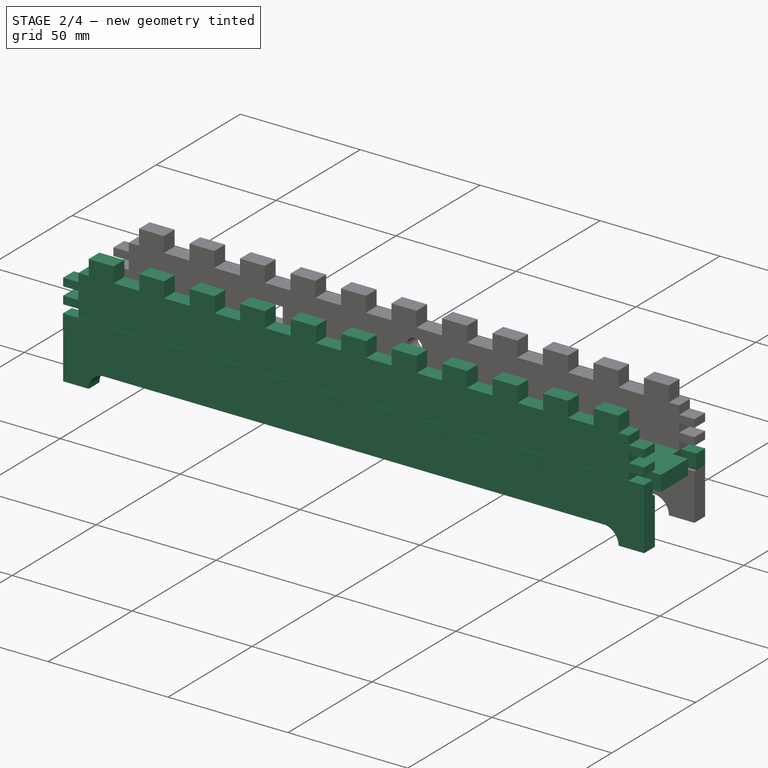
[diagram: stage 2 of 4 — iso view after this stage's code; geometry added in this stage tinted green]
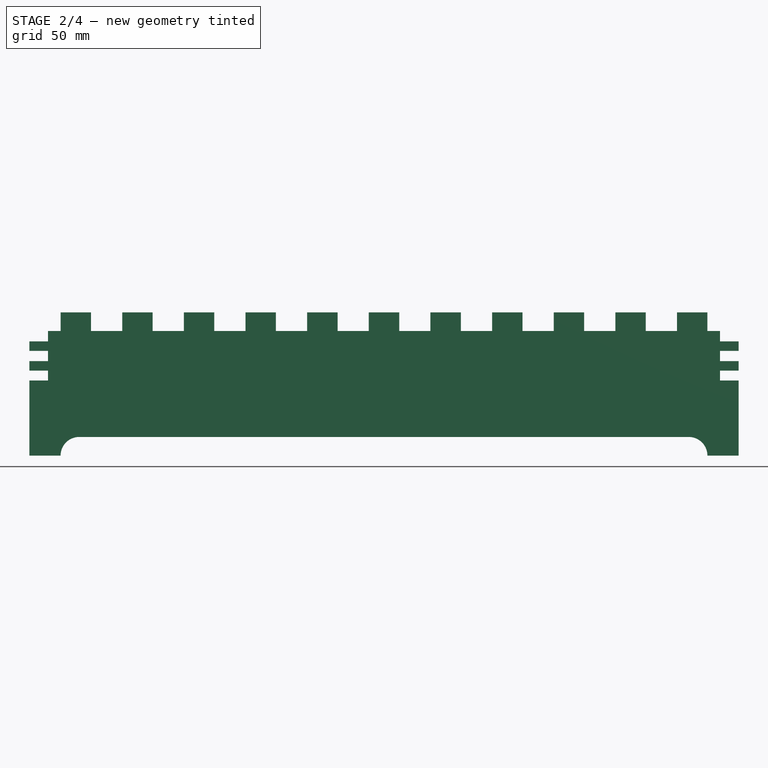
[diagram: stage 2 of 4 — front view after this stage's code; geometry added in this stage tinted green]
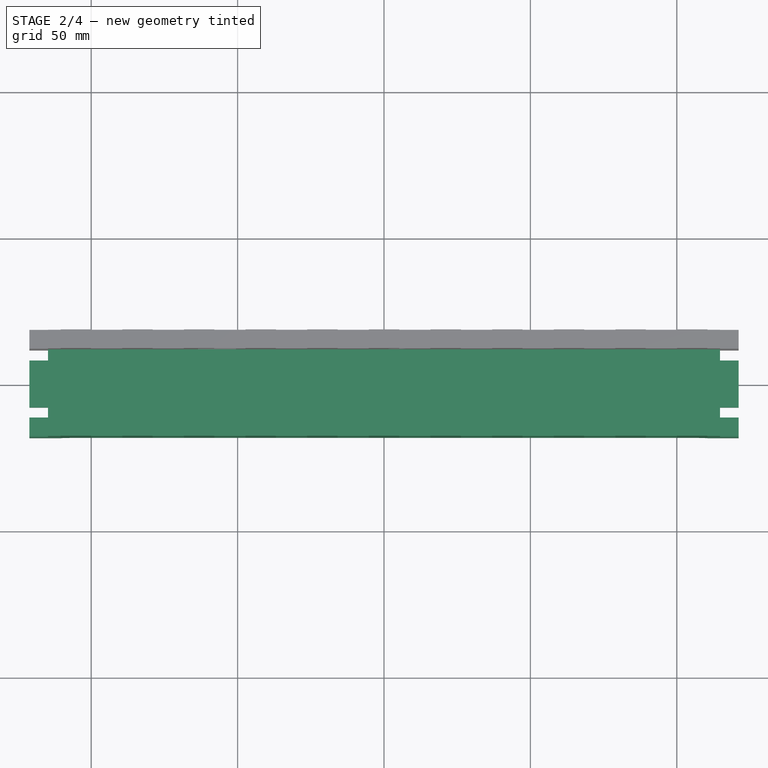
[diagram: stage 2 of 4 — top view after this stage's code; geometry added in this stage tinted green]
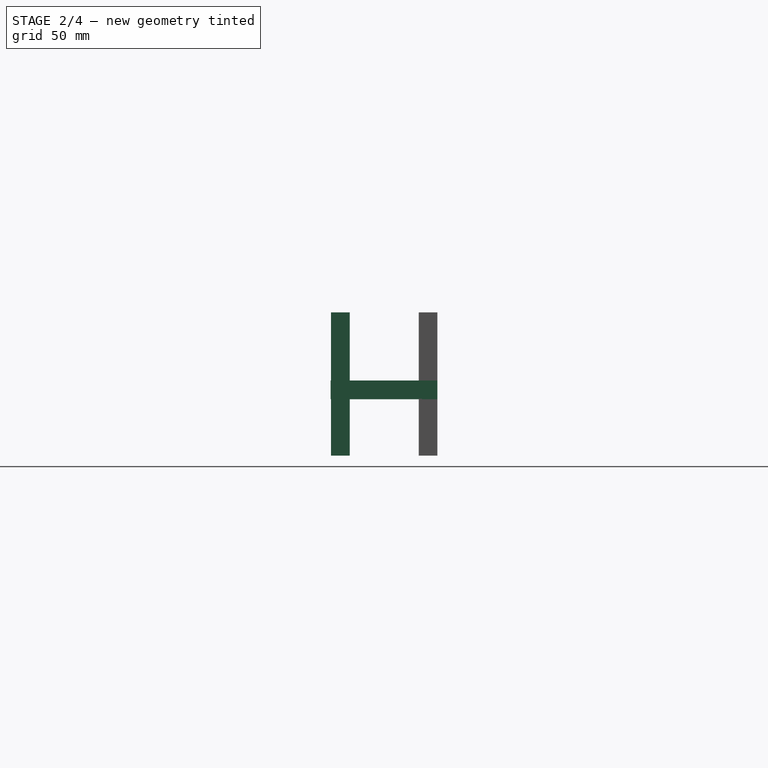
[diagram: stage 2 of 4 — right view after this stage's code; geometry added in this stage tinted green]
FEATURE [PartDesign::Body] Body003
  Group = -> [DatumPlane002,Sketch004,Pad003]
  Origin = -> Origin011
  Tip = -> Pad003
FEATURE [App::Part] Part003  label="LeftSideOfEnclosure"
  Group = -> [Body003]
  License = CC-BY-NC-SA
  LicenseURL = https://creativecommons.org/licenses/by-nc-sa/4.0/
  Origin = -> Origin010
FEATURE [PartDesign::Plane] DatumPlane003
  AttachmentOffset = pos=(0,0,-4.76) rot=(0,0,1;0rad)
  MapMode = 5
  Placement = pos=(0,0,-4.76) rot=(0,0,1;0rad)
  Support = -> [XY_Plane013]
  expr: AttachmentOffset.Base.z = -Datum.SideBelowXY
FEATURE [Sketcher::SketchObject] Sketch005
  MapMode = 5
  Placement = pos=(0,0,-4.76) rot=(0,0,1;0rad)
  Support = -> [DatumPlane003]
  expr: Constraints[327] = Datum.AcrylicThickness + 2 * Datum.WoodThickness + Datum.WoodKerf
  expr: Constraints[320] = Datum.WoodKerf
  expr: Constraints[311] = Datum.EnclosureWidthWithKerf
  expr: Constraints[260] = Datum.WoodThickness
  expr: Constraints[303] = Datum.EnclosureLengthWithKerf
  sketch-geometry (112):
    g0: LineSegment StartX=121.115 StartY=18.2301 StartZ=0 EndX=110.45 EndY=18.2301 EndZ=0
    g1: LineSegment StartX=110.45 StartY=18.2301 StartZ=0 EndX=110.45 EndY=11.8547 EndZ=0
    g2: LineSegment StartX=110.45 StartY=11.8547 StartZ=0 EndX=100.064 EndY=11.8547 EndZ=0
    g3: LineSegment StartX=100.064 StartY=11.8547 StartZ=0 EndX=100.064 EndY=18.2301 EndZ=0
    g4: LineSegment StartX=100.064 StartY=18.2301 StartZ=0 EndX=89.3984 EndY=18.2301 EndZ=0
    g5: LineSegment StartX=89.3984 StartY=18.2301 StartZ=0 EndX=89.3984 EndY=11.8547 EndZ=0
    g6: LineSegment StartX=89.3984 StartY=11.8547 StartZ=0 EndX=79.0124 EndY=11.8547 EndZ=0
    g7: LineSegment StartX=79.0124 StartY=11.8547 StartZ=0 EndX=79.0124 EndY=18.2301 EndZ=0
    g8: LineSegment StartX=79.0124 StartY=18.2301 StartZ=0 EndX=68.347 EndY=18.2301 EndZ=0
    g9: LineSegment StartX=68.347 StartY=18.2301 StartZ=0 EndX=68.347 EndY=11.8547 EndZ=0
    g10: LineSegment StartX=68.347 StartY=11.8547 StartZ=0 EndX=57.9611 EndY=11.8547 EndZ=0
    g11: LineSegment StartX=57.9611 StartY=11.8547 StartZ=0 EndX=57.9611 EndY=18.2301 EndZ=0
    g12: LineSegment StartX=57.9611 StartY=18.2301 StartZ=0 EndX=47.2957 EndY=18.2301 EndZ=0
    g13: LineSegment StartX=47.2957 StartY=18.2301 StartZ=0 EndX=47.2957 EndY=11.8547 EndZ=0
    g14: LineSegment StartX=47.2957 StartY=11.8547 StartZ=0 EndX=36.9097 EndY=11.8547 EndZ=0
    g15: LineSegment StartX=36.9097 StartY=11.8547 StartZ=0 EndX=36.9097 EndY=18.2301 EndZ=0
    g16: LineSegment StartX=36.9097 StartY=18.2301 StartZ=0 EndX=26.2443 EndY=18.2301 EndZ=0
    g17: LineSegment StartX=26.2443 StartY=18.2301 StartZ=0 EndX=26.2443 EndY=11.8547 EndZ=0
    g18: LineSegment StartX=26.2443 StartY=11.8547 StartZ=0 EndX=15.8584 EndY=11.8547 EndZ=0
    g19: LineSegment StartX=15.8584 StartY=11.8547 StartZ=0 EndX=15.8584 EndY=18.2301 EndZ=0
    g20: LineSegment StartX=15.8584 StartY=18.2301 StartZ=0 EndX=5.19299 EndY=18.2301 EndZ=0
    g21: LineSegment StartX=5.19299 StartY=18.2301 StartZ=0 EndX=5.19299 EndY=11.8547 EndZ=0
    g22: LineSegment StartX=5.19299 StartY=11.8547 StartZ=0 EndX=-5.19299 EndY=11.8547 EndZ=0
    g23: LineSegment StartX=-5.19299 StartY=11.8547 StartZ=0 EndX=-5.19299 EndY=18.2301 EndZ=0
    g24: LineSegment StartX=-5.19299 StartY=18.2301 StartZ=0 EndX=-15.8584 EndY=18.2301 EndZ=0
    g25: LineSegment StartX=-15.8584 StartY=18.2301 StartZ=0 EndX=-15.8584 EndY=11.8547 EndZ=0
    g26: LineSegment StartX=-15.8584 StartY=11.8547 StartZ=0 EndX=-26.2443 EndY=11.8547 EndZ=0
    g27: LineSegment StartX=-26.2443 StartY=11.8547 StartZ=0 EndX=-26.2443 EndY=18.2301 EndZ=0
    g28: LineSegment StartX=-26.2443 StartY=18.2301 StartZ=0 EndX=-36.9097 EndY=18.2301 EndZ=0
    g29: LineSegment StartX=-36.9097 StartY=18.2301 StartZ=0 EndX=-36.9097 EndY=11.8547 EndZ=0
    g30: LineSegment StartX=-36.9097 StartY=11.8547 StartZ=0 EndX=-47.2957 EndY=11.8547 EndZ=0
    g31: LineSegment StartX=-47.2957 StartY=11.8547 StartZ=0 EndX=-47.2957 EndY=18.2301 EndZ=0
    g32: LineSegment StartX=-47.2957 StartY=18.2301 StartZ=0 EndX=-57.9611 EndY=18.2301 EndZ=0
    g33: LineSegment StartX=-57.9611 StartY=18.2301 StartZ=0 EndX=-57.9611 EndY=11.8547 EndZ=0
    g34: LineSegment StartX=-57.9611 StartY=11.8547 StartZ=0 EndX=-68.347 EndY=11.8547 EndZ=0
    g35: LineSegment StartX=-68.347 StartY=11.8547 StartZ=0 EndX=-68.347 EndY=18.2301 EndZ=0
    g36: LineSegment StartX=-68.347 StartY=18.2301 StartZ=0 EndX=-79.0124 EndY=18.2301 EndZ=0
    g37: LineSegment StartX=-79.0124 StartY=18.2301 StartZ=0 EndX=-79.0124 EndY=11.8547 EndZ=0
    g38: LineSegment StartX=-79.0124 StartY=11.8547 StartZ=0 EndX=-89.3984 EndY=11.8547 EndZ=0
    g39: LineSegment StartX=-89.3984 StartY=11.8547 StartZ=0 EndX=-89.3984 EndY=18.2301 EndZ=0
    g40: LineSegment StartX=-89.3984 StartY=18.2301 StartZ=0 EndX=-100.064 EndY=18.2301 EndZ=0
    g41: LineSegment StartX=-100.064 StartY=18.2301 StartZ=0 EndX=-100.064 EndY=11.8547 EndZ=0
    g42: LineSegment StartX=-100.064 StartY=11.8547 StartZ=0 EndX=-110.45 EndY=11.8547 EndZ=0
    g43: LineSegment StartX=-110.45 StartY=11.8547 StartZ=0 EndX=-110.45 EndY=18.2301 EndZ=0
    g44: LineSegment StartX=-110.45 StartY=18.2301 StartZ=0 EndX=-121.115 EndY=18.2301 EndZ=0
    g45: LineSegment StartX=-121.115 StartY=18.2301 StartZ=0 EndX=-121.115 EndY=12.9829 EndZ=0
    g46: LineSegment StartX=-121.115 StartY=12.9829 StartZ=0 EndX=-114.74 EndY=12.9829 EndZ=0
    g47: LineSegment StartX=-114.74 StartY=12.9829 StartZ=0 EndX=-114.74 EndY=8.0151 EndZ=0
    g48: LineSegment StartX=-114.74 StartY=8.0151 StartZ=0 EndX=-121.115 EndY=8.0151 EndZ=0
    g49: LineSegment StartX=-121.115 StartY=8.0151 StartZ=0 EndX=-121.115 EndY=-8.0151 EndZ=0
    g50: LineSegment StartX=-121.115 StartY=-8.0151 StartZ=0 EndX=-114.74 EndY=-8.0151 EndZ=0
    g51: LineSegment StartX=-114.74 StartY=-8.0151 StartZ=0 EndX=-114.74 EndY=-12.9829 EndZ=0
    g52: LineSegment StartX=-114.74 StartY=-12.9829 StartZ=0 EndX=-121.115 EndY=-12.9829 EndZ=0
    g53: LineSegment StartX=-121.115 StartY=-12.9829 StartZ=0 EndX=-121.115 EndY=-18.2301 EndZ=0
    g54: LineSegment StartX=-121.115 StartY=-18.2301 StartZ=0 EndX=-110.45 EndY=-18.2301 EndZ=0
    g55: LineSegment StartX=-110.45 StartY=-18.2301 StartZ=0 EndX=-110.45 EndY=-11.8547 EndZ=0
    g56: LineSegment StartX=-110.45 StartY=-11.8547 StartZ=0 EndX=-100.064 EndY=-11.8547 EndZ=0
    g57: LineSegment StartX=-100.064 StartY=-11.8547 StartZ=0 EndX=-100.064 EndY=-18.2301 EndZ=0
    g58: LineSegment StartX=-100.064 StartY=-18.2301 StartZ=0 EndX=-89.3984 EndY=-18.2301 EndZ=0
    g59: LineSegment StartX=-89.3984 StartY=-18.2301 StartZ=0 EndX=-89.3984 EndY=-11.8547 EndZ=0
    g60: LineSegment StartX=-89.3984 StartY=-11.8547 StartZ=0 EndX=-79.0124 EndY=-11.8547 EndZ=0
    g61: LineSegment StartX=-79.0124 StartY=-11.8547 StartZ=0 EndX=-79.0124 EndY=-18.2301 EndZ=0
    g62: LineSegment StartX=-79.0124 StartY=-18.2301 StartZ=0 EndX=-68.347 EndY=-18.2301 EndZ=0
    g63: LineSegment StartX=-68.347 StartY=-18.2301 StartZ=0 EndX=-68.347 EndY=-11.8547 EndZ=0
    g64: LineSegment StartX=-68.347 StartY=-11.8547 StartZ=0 EndX=-57.9611 EndY=-11.8547 EndZ=0
    g65: LineSegment StartX=-57.9611 StartY=-11.8547 StartZ=0 EndX=-57.9611 EndY=-18.2301 EndZ=0
    g66: LineSegment StartX=-57.9611 StartY=-18.2301 StartZ=0 EndX=-47.2957 EndY=-18.2301 EndZ=0
    g67: LineSegment StartX=-47.2957 StartY=-18.2301 StartZ=0 EndX=-47.2957 EndY=-11.8547 EndZ=0
    g68: LineSegment StartX=-47.2957 StartY=-11.8547 StartZ=0 EndX=-36.9097 EndY=-11.8547 EndZ=0
    g69: LineSegment StartX=-36.9097 StartY=-11.8547 StartZ=0 EndX=-36.9097 EndY=-18.2301 EndZ=0
    g70: LineSegment StartX=-36.9097 StartY=-18.2301 StartZ=0 EndX=-26.2443 EndY=-18.2301 EndZ=0
    g71: LineSegment StartX=-26.2443 StartY=-18.2301 StartZ=0 EndX=-26.2443 EndY=-11.8547 EndZ=0
    g72: LineSegment StartX=-26.2443 StartY=-11.8547 StartZ=0 EndX=-15.8584 EndY=-11.8547 EndZ=0
    g73: LineSegment StartX=-15.8584 StartY=-11.8547 StartZ=0 EndX=-15.8584 EndY=-18.2301 EndZ=0
    g74: LineSegment StartX=-15.8584 StartY=-18.2301 StartZ=0 EndX=-5.19299 EndY=-18.2301 EndZ=0
    g75: LineSegment StartX=-5.19299 StartY=-18.2301 StartZ=0 EndX=-5.19299 EndY=-11.8547 EndZ=0
    g76: LineSegment StartX=-5.19299 StartY=-11.8547 StartZ=0 EndX=5.19299 EndY=-11.8547 EndZ=0
    g77: LineSegment StartX=5.19299 StartY=-11.8547 StartZ=0 EndX=5.19299 EndY=-18.2301 EndZ=0
    g78: LineSegment StartX=5.19299 StartY=-18.2301 StartZ=0 EndX=15.8584 EndY=-18.2301 EndZ=0
    g79: LineSegment StartX=15.8584 StartY=-18.2301 StartZ=0 EndX=15.8584 EndY=-11.8547 EndZ=0
    g80: LineSegment StartX=15.8584 StartY=-11.8547 StartZ=0 EndX=26.2443 EndY=-11.8547 EndZ=0
    g81: LineSegment StartX=26.2443 StartY=-11.8547 StartZ=0 EndX=26.2443 EndY=-18.2301 EndZ=0
    g82: LineSegment StartX=26.2443 StartY=-18.2301 StartZ=0 EndX=36.9097 EndY=-18.2301 EndZ=0
    g83: LineSegment StartX=36.9097 StartY=-18.2301 StartZ=0 EndX=36.9097 EndY=-11.8547 EndZ=0
    g84: LineSegment StartX=36.9097 StartY=-11.8547 StartZ=0 EndX=47.2957 EndY=-11.8547 EndZ=0
    g85: LineSegment StartX=47.2957 StartY=-11.8547 StartZ=0 EndX=47.2957 EndY=-18.2301 EndZ=0
    g86: LineSegment StartX=47.2957 StartY=-18.2301 StartZ=0 EndX=57.9611 EndY=-18.2301 EndZ=0
    g87: LineSegment StartX=57.9611 StartY=-18.2301 StartZ=0 EndX=57.9611 EndY=-11.8547 EndZ=0
    g88: LineSegment StartX=57.9611 StartY=-11.8547 StartZ=0 EndX=68.347 EndY=-11.8547 EndZ=0
    g89: LineSegment StartX=68.347 StartY=-11.8547 StartZ=0 EndX=68.347 EndY=-18.2301 EndZ=0
    g90: LineSegment StartX=68.347 StartY=-18.2301 StartZ=0 EndX=79.0124 EndY=-18.2301 EndZ=0
    g91: LineSegment StartX=79.0124 StartY=-18.2301 StartZ=0 EndX=79.0124 EndY=-11.8547 EndZ=0
    g92: LineSegment StartX=79.0124 StartY=-11.8547 StartZ=0 EndX=89.3984 EndY=-11.8547 EndZ=0
    g93: LineSegment StartX=89.3984 StartY=-11.8547 StartZ=0 EndX=89.3984 EndY=-18.2301 EndZ=0
    g94: LineSegment StartX=89.3984 StartY=-18.2301 StartZ=0 EndX=100.064 EndY=-18.2301 EndZ=0
    g95: LineSegment StartX=100.064 StartY=-18.2301 StartZ=0 EndX=100.064 EndY=-11.8547 EndZ=0
    g96: LineSegment StartX=100.064 StartY=-11.8547 StartZ=0 EndX=110.45 EndY=-11.8547 EndZ=0
    g97: LineSegment StartX=110.45 StartY=-11.8547 StartZ=0 EndX=110.45 EndY=-18.2301 EndZ=0
    g98: LineSegment StartX=110.45 StartY=-18.2301 StartZ=0 EndX=121.115 EndY=-18.2301 EndZ=0
    g99: LineSegment StartX=121.115 StartY=-18.2301 StartZ=0 EndX=121.115 EndY=-12.9829 EndZ=0
    g100: LineSegment StartX=121.115 StartY=-12.9829 StartZ=0 EndX=114.74 EndY=-12.9829 EndZ=0
    g101: LineSegment StartX=114.74 StartY=-12.9829 StartZ=0 EndX=114.74 EndY=-8.0151 EndZ=0
    g102: LineSegment StartX=114.74 StartY=-8.0151 StartZ=0 EndX=121.115 EndY=-8.0151 EndZ=0
    g103: LineSegment StartX=121.115 StartY=-8.0151 StartZ=0 EndX=121.115 EndY=8.0151 EndZ=0
    g104: LineSegment StartX=121.115 StartY=8.0151 StartZ=0 EndX=114.74 EndY=8.0151 EndZ=0
    g105: LineSegment StartX=114.74 StartY=8.0151 StartZ=0 EndX=114.74 EndY=12.9829 EndZ=0
    g106: LineSegment StartX=114.74 StartY=12.9829 StartZ=0 EndX=121.115 EndY=12.9829 EndZ=0
    g107: LineSegment StartX=121.115 StartY=12.9829 StartZ=0 EndX=121.115 EndY=18.2301 EndZ=0
    g108: LineSegment [constr] StartX=89.3984 StartY=18.2301 StartZ=0 EndX=99.7844 EndY=18.2301 EndZ=0
    g109: LineSegment [constr] StartX=99.7844 StartY=18.2301 StartZ=0 EndX=100.064 EndY=18.2301 EndZ=0
    g110: LineSegment [constr] StartX=121.115 StartY=18.2301 StartZ=0 EndX=121.115 EndY=13.2623 EndZ=0
    g111: LineSegment [constr] StartX=121.115 StartY=13.2623 StartZ=0 EndX=121.115 EndY=12.9829 EndZ=0
  constraints (336):
    c: Horizontal(g0)
    c: Coincident(g0,g1)
    c: Coincident(g1,g2)
    c: Coincident(g2,g3)
    c: Vertical(g3)
    c: Coincident(g3,g4)
    c: Coincident(g4,g5)
    c: Vertical(g5)
    c: Coincident(g5,g6)
    c: Coincident(g6,g7)
    c: Vertical(g7)
    c: Coincident(g7,g8)
    c: Horizontal(g8)
    c: Coincident(g8,g9)
    c: Vertical(g9)
    c: Coincident(g9,g10)
    c: Horizontal(g10)
    c: Coincident(g10,g11)
    c: Vertical(g11)
    c: Coincident(g11,g12)
    c: Horizontal(g12)
    c: Coincident(g12,g13)
    c: Vertical(g13)
    c: Coincident(g13,g14)
    c: Horizontal(g14)
    c: Coincident(g14,g15)
    c: Coincident(g15,g16)
    c: Horizontal(g16)
    c: Coincident(g16,g17)
    c: Vertical(g17)
    c: Coincident(g17,g18)
    c: Horizontal(g18)
    c: Coincident(g18,g19)
    c: Vertical(g19)
    c: Coincident(g19,g20)
    c: Horizontal(g20)
    c: Coincident(g20,g21)
    c: Vertical(g21)
    c: Coincident(g21,g22)
    c: Coincident(g22,g23)
    c: Vertical(g23)
    c: Coincident(g23,g24)
    c: Horizontal(g24)
    c: Coincident(g24,g25)
    c: Vertical(g25)
    c: Coincident(g25,g26)
    c: Horizontal(g26)
    c: Coincident(g26,g27)
    c: Vertical(g27)
    c: Coincident(g27,g28)
    c: Horizontal(g28)
    c: Coincident(g28,g29)
    c: Vertical(g29)
    c: Coincident(g29,g30)
    c: Horizontal(g30)
    c: Coincident(g30,g31)
    c: Vertical(g31)
    c: Coincident(g31,g32)
    c: Horizontal(g32)
    c: Coincident(g32,g33)
    c: Vertical(g33)
    c: Coincident(g33,g34)
    c: Horizontal(g34)
    c: Coincident(g34,g35)
    c: Vertical(g35)
    c: Coincident(g35,g36)
    c: Horizontal(g36)
    c: Coincident(g36,g37)
    c: Vertical(g37)
    c: Coincident(g37,g38)
    c: Horizontal(g38)
    c: Coincident(g38,g39)
    c: Vertical(g39)
    c: Coincident(g39,g40)
    c: Horizontal(g40)
    c: Coincident(g40,g41)
    c: Vertical(g41)
    c: Coincident(g41,g42)
    c: Horizontal(g42)
    c: Coincident(g42,g43)
    c: Vertical(g43)
    c: Coincident(g43,g44)
    c: Horizontal(g44)
    c: Vertical(g1)
    c: Horizontal(g6)
    c: Vertical(g15)
    c: Coincident(g44,g45)
    c: Vertical(g45)
    c: Coincident(g45,g46)
    c: Horizontal(g46)
    c: Coincident(g46,g47)
    c: Vertical(g47)
    c: Coincident(g47,g48)
    c: Horizontal(g48)
    c: Coincident(g48,g49)
    c: Vertical(g49)
    c: Coincident(g49,g50)
    c: Horizontal(g50)
    c: Coincident(g50,g51)
    c: Vertical(g51)
    c: Coincident(g51,g52)
    c: Horizontal(g52)
    c: Coincident(g52,g53)
    c: Vertical(g53)
    c: Coincident(g53,g54)
    c: Horizontal(g54)
    c: Coincident(g54,g55)
    c: Vertical(g55)
    c: Coincident(g55,g56)
    c: Horizontal(g56)
    c: Coincident(g56,g57)
    c: Vertical(g57)
    c: Coincident(g57,g58)
    c: Horizontal(g58)
    c: Coincident(g58,g59)
    c: Vertical(g59)
    c: Coincident(g59,g60)
    c: Horizontal(g60)
    c: Coincident(g60,g61)
    c: Vertical(g61)
    c: Coincident(g61,g62)
    c: Horizontal(g62)
    c: Coincident(g62,g63)
    c: Vertical(g63)
    c: Coincident(g63,g64)
    c: Horizontal(g64)
    c: Coincident(g64,g65)
    c: Vertical(g65)
    c: Coincident(g65,g66)
    c: Horizontal(g66)
    c: Coincident(g66,g67)
    c: Vertical(g67)
    c: Coincident(g67,g68)
    c: Horizontal(g68)
    c: Coincident(g68,g69)
    c: Vertical(g69)
    c: Coincident(g69,g70)
    c: Horizontal(g70)
    c: Coincident(g70,g71)
    c: Vertical(g71)
    c: Coincident(g71,g72)
    c: Horizontal(g72)
    c: Coincident(g72,g73)
    c: Vertical(g73)
    c: Coincident(g73,g74)
    c: Horizontal(g74)
    c: Coincident(g74,g75)
    c: Vertical(g75)
    c: Coincident(g75,g76)
    c: Horizontal(g76)
    c: Coincident(g76,g77)
    c: Vertical(g77)
    c: Coincident(g77,g78)
    c: Horizontal(g78)
    c: Coincident(g78,g79)
    c: Vertical(g79)
    c: Coincident(g79,g80)
    c: Horizontal(g80)
    c: Coincident(g80,g81)
    c: Vertical(g81)
    c: Coincident(g81,g82)
    c: Horizontal(g82)
    c: Coincident(g82,g83)
    c: Vertical(g83)
    c: Coincident(g83,g84)
    c: Horizontal(g84)
    c: Coincident(g84,g85)
    c: Vertical(g85)
    c: Coincident(g85,g86)
    c: Horizontal(g86)
    c: Coincident(g86,g87)
    c: Vertical(g87)
    c: Coincident(g87,g88)
    c: Horizontal(g88)
    c: Coincident(g88,g89)
    c: Vertical(g89)
    c: Coincident(g89,g90)
    c: Horizontal(g90)
    c: Coincident(g90,g91)
    c: Vertical(g91)
    c: Coincident(g91,g92)
    c: Horizontal(g92)
    c: Coincident(g92,g93)
    c: Vertical(g93)
    c: Coincident(g93,g94)
    c: Horizontal(g94)
    c: Coincident(g94,g95)
    c: Vertical(g95)
    c: Coincident(g95,g96)
    c: Horizontal(g96)
    c: Coincident(g96,g97)
    c: Vertical(g97)
    c: Coincident(g97,g98)
    c: Horizontal(g98)
    c: Coincident(g98,g99)
    c: Vertical(g99)
    c: Coincident(g99,g100)
    c: Horizontal(g100)
    c: Coincident(g100,g101)
    c: Vertical(g101)
    c: Coincident(g101,g102)
    c: Horizontal(g102)
    c: Coincident(g102,g103)
    c: Horizontal(g104)
    c: Coincident(g104,g105)
    c: Coincident(g105,g106)
    c: Horizontal(g106)
    c: Coincident(g106,g107)
    c: Coincident(g107,g0)
    c: Equal(g1,g3)
    c: Equal(g3,g5)
    c: Equal(g5,g7)
    c: Equal(g7,g9)
    c: Equal(g9,g11)
    c: Equal(g11,g13)
    c: Equal(g13,g15)
    c: Equal(g15,g17)
    c: Equal(g17,g19)
    c: Equal(g19,g21)
    c: Equal(g21,g23)
    c: Equal(g23,g25)
    c: Equal(g25,g27)
    c: Equal(g27,g29)
    c: Equal(g29,g31)
    c: Equal(g31,g33)
    c: Equal(g33,g35)
    c: Equal(g35,g37)
    c: Equal(g37,g39)
    c: Equal(g39,g41)
    c: Equal(g41,g43)
    c: Equal(g43,g46)
    c: Equal(g46,g48)
    c: Equal(g48,g50)
    c: Equal(g50,g52)
    c: Equal(g52,g55)
    c: Equal(g55,g57)
    c: Equal(g57,g59)
    c: Equal(g59,g61)
    c: Equal(g61,g63)
    c: Equal(g63,g65)
    c: Equal(g65,g67)
    c: Equal(g67,g69)
    c: Equal(g69,g71)
    c: Equal(g71,g73)
    c: Equal(g73,g75)
    c: Equal(g75,g77)
    c: Equal(g77,g79)
    c: Equal(g79,g81)
    c: Equal(g81,g83)
    c: Equal(g83,g85)
    c: Equal(g85,g87)
    c: Equal(g87,g89)
    c: Equal(g89,g91)
    c: Equal(g91,g93)
    c: Equal(g93,g95)
    c: Equal(g95,g97)
    c: Equal(g97,g100)
    c: Equal(g100,g102)
    c: Equal(g102,g104)
    c: Equal(g104,g106)
    c: DistanceY(g1,g1) = 6.3754
    c: Equal(g2,g6)
    c: Equal(g6,g10)
    c: Equal(g10,g14)
    c: Equal(g14,g18)
    c: Equal(g18,g26)
    c: Equal(g26,g30)
    c: Equal(g30,g34)
    c: Equal(g34,g38)
    c: Equal(g38,g42)
    c: Equal(g42,g56)
    c: Equal(g56,g60)
    c: Equal(g60,g64)
    c: Equal(g64,g68)
    c: Equal(g68,g72)
    c: Equal(g72,g80)
    c: Equal(g80,g84)
    c: Equal(g84,g88)
    c: Equal(g88,g92)
    c: Equal(g92,g96)
    c: Equal(g0,g4)
    c: Equal(g4,g8)
    c: Equal(g8,g12)
    c: Equal(g12,g16)
    c: Equal(g16,g20)
    c: Equal(g20,g24)
    c: Equal(g24,g28)
    c: Equal(g28,g32)
    c: Equal(g32,g36)
    c: Equal(g36,g40)
    c: Equal(g40,g44)
    c: Equal(g44,g54)
    c: Equal(g54,g58)
    c: Equal(g58,g62)
    c: Equal(g62,g66)
    c: Equal(g66,g70)
    c: Equal(g70,g74)
    c: Equal(g74,g78)
    c: Equal(g78,g82)
    c: Equal(g82,g86)
    c: Equal(g86,g90)
    c: Equal(g90,g94)
    c: Equal(g94,g98)
    c: Distance(g0,g44) = 242.23
    c: Equal(g107,g99)
    c: Equal(g99,g53)
    c: Equal(g53,g45)
    c: Equal(g47,g51)
    c: Equal(g51,g101)
    c: Equal(g101,g105)
    c: Equal(g103,g49)
    c: Distance(g0,g98) = 36.4602
    c: Equal(g18,g22)
    c: Horizontal(g22)
    c: Equal(g72,g76)
    c: Horizontal(g2)
    c: Horizontal(g108)
    c: Coincident(g108,g109)
    c: Horizontal(g109)
    c: Equal(g108,g2)
    c: DistanceX(g109,g109) = 0.2794
    c: Coincident(g108,g4)
    c: Coincident(g109,g3)
    c: Symmetric(g0,g44,g-2)
    c: Vertical(g107)
    c: Vertical(g105)
    c: Symmetric(g0,g98,g-1)
    c: DistanceY(g103,g103) = 16.0302
    c: Vertical(g110)
    c: Coincident(g110,g111)
    c: Vertical(g111)
    c: Equal(g105,g110)
    c: Coincident(g110,g0)
    c: Coincident(g106,g111)
    c: Equal(g109,g111)
    c: Vertical(g103)
FEATURE [PartDesign::Pad] Pad004
  Length = 6.3754
  Length2 = 100
  Placement = pos=(0,0,-4.76) rot=(0,0,1;0rad)
  Profile = -> Sketch005
  Reversed = true
  Type = 0
  expr: Length = Datum.WoodThickness
FEATURE [PartDesign::Plane] DatumPlane004
  AttachmentOffset = pos=(0,0,11.715) rot=(0,0,1;0rad)
  MapMode = 5
  Placement = pos=(0,-11.715,-1e-12) rot=(1,0,0;1.5708rad)
  Support = -> [XZ_Plane015]
  expr: AttachmentOffset.Base.z = Datum.EnclosureWidth / 2 - Datum.WoodThickness
FEATURE [Sketcher::SketchObject] Sketch006
  MapMode = 5
  Placement = pos=(0,-11.715,-1e-12) rot=(1,0,0;1.5708rad)
  Support = -> [DatumPlane004]
  expr: Constraints[245] = Datum.WoodThickness
  expr: Constraints[235] = Datum.EnclosureLengthWithKerf
  expr: Constraints[233] = Datum.SideAboveXYWithKerf
  expr: Constraints[201] = Datum.WoodThickness * 3 + Datum.WoodKerf
  expr: Constraints[234] = -Datum.SideBelowXYWithKerf
  expr: Constraints[230] = Datum.WoodKerf
  expr: Constraints[215] = Datum.WoodKerf
  expr: Constraints[251] = Datum.WoodThickness
  expr: Constraints[196] = Datum.WoodThickness - Datum.WoodKerf
  expr: Constraints[172] = Datum.WoodThickness
  sketch-geometry (87):
    g0: LineSegment StartX=-110.45 StartY=-30.4013 StartZ=0 EndX=-121.115 EndY=-30.4013 EndZ=0
    g1: LineSegment StartX=-121.115 StartY=-30.4013 StartZ=0 EndX=-121.115 EndY=-10.9957 EndZ=0
    g2: LineSegment StartX=-121.115 StartY=-10.9957 StartZ=0 EndX=-110.45 EndY=-10.9957 EndZ=0
    g3: LineSegment StartX=-110.45 StartY=-10.9957 StartZ=0 EndX=-110.45 EndY=-4.8997 EndZ=0
    g4: LineSegment StartX=-110.45 StartY=-4.8997 StartZ=0 EndX=-114.74 EndY=-4.8997 EndZ=0
    g5: LineSegment StartX=-114.74 StartY=-4.8997 StartZ=0 EndX=-114.74 EndY=-1.38006 EndZ=0
    g6: LineSegment StartX=-114.74 StartY=-1.38006 StartZ=0 EndX=-121.115 EndY=-1.38006 EndZ=0
    g7: LineSegment StartX=-121.115 StartY=-1.38006 StartZ=0 EndX=-121.115 EndY=1.86018 EndZ=0
    g8: LineSegment StartX=-121.115 StartY=1.86018 StartZ=0 EndX=-114.74 EndY=1.86018 EndZ=0
    g9: LineSegment StartX=-114.74 StartY=1.86018 StartZ=0 EndX=-114.74 EndY=5.37982 EndZ=0
    g10: LineSegment StartX=-114.74 StartY=5.37982 StartZ=0 EndX=-121.115 EndY=5.37982 EndZ=0
    g11: LineSegment StartX=-121.115 StartY=5.37982 StartZ=0 EndX=-121.115 EndY=8.62006 EndZ=0
    g12: LineSegment StartX=-121.115 StartY=8.62006 StartZ=0 EndX=-114.74 EndY=8.62006 EndZ=0
    g13: LineSegment StartX=-114.74 StartY=8.62006 StartZ=0 EndX=-114.74 EndY=12.1397 EndZ=0
    g14: LineSegment StartX=-114.74 StartY=12.1397 StartZ=0 EndX=-110.45 EndY=12.1397 EndZ=0
    g15: LineSegment StartX=-110.45 StartY=12.1397 StartZ=0 EndX=-110.45 EndY=18.5151 EndZ=0
    g16: LineSegment StartX=-110.45 StartY=18.5151 StartZ=0 EndX=-100.064 EndY=18.5151 EndZ=0
    g17: LineSegment StartX=-100.064 StartY=18.5151 StartZ=0 EndX=-100.064 EndY=12.1397 EndZ=0
    g18: LineSegment StartX=-100.064 StartY=12.1397 StartZ=0 EndX=-89.3984 EndY=12.1397 EndZ=0
    g19: LineSegment StartX=-89.3984 StartY=12.1397 StartZ=0 EndX=-89.3984 EndY=18.5151 EndZ=0
    g20: LineSegment StartX=-89.3984 StartY=18.5151 StartZ=0 EndX=-79.0124 EndY=18.5151 EndZ=0
    g21: LineSegment StartX=-79.0124 StartY=18.5151 StartZ=0 EndX=-79.0124 EndY=12.1397 EndZ=0
    g22: LineSegment StartX=-79.0124 StartY=12.1397 StartZ=0 EndX=-68.347 EndY=12.1397 EndZ=0
    g23: LineSegment StartX=-68.347 StartY=12.1397 StartZ=0 EndX=-68.347 EndY=18.5151 EndZ=0
    g24: LineSegment StartX=-68.347 StartY=18.5151 StartZ=0 EndX=-57.9611 EndY=18.5151 EndZ=0
    g25: LineSegment StartX=-57.9611 StartY=18.5151 StartZ=0 EndX=-57.9611 EndY=12.1397 EndZ=0
    g26: LineSegment StartX=-57.9611 StartY=12.1397 StartZ=0 EndX=-47.2957 EndY=12.1397 EndZ=0
    g27: LineSegment StartX=-47.2957 StartY=12.1397 StartZ=0 EndX=-47.2957 EndY=18.5151 EndZ=0
    g28: LineSegment StartX=-47.2957 StartY=18.5151 StartZ=0 EndX=-36.9097 EndY=18.5151 EndZ=0
    g29: LineSegment StartX=-36.9097 StartY=18.5151 StartZ=0 EndX=-36.9097 EndY=12.1397 EndZ=0
    g30: LineSegment StartX=-36.9097 StartY=12.1397 StartZ=0 EndX=-26.2443 EndY=12.1397 EndZ=0
    g31: LineSegment StartX=-26.2443 StartY=12.1397 StartZ=0 EndX=-26.2443 EndY=18.5151 EndZ=0
    g32: LineSegment StartX=-26.2443 StartY=18.5151 StartZ=0 EndX=-15.8584 EndY=18.5151 EndZ=0
    g33: LineSegment StartX=-15.8584 StartY=18.5151 StartZ=0 EndX=-15.8584 EndY=12.1397 EndZ=0
    g34: LineSegment StartX=-15.8584 StartY=12.1397 StartZ=0 EndX=-5.19299 EndY=12.1397 EndZ=0
    g35: LineSegment StartX=-5.19299 StartY=12.1397 StartZ=0 EndX=-5.19299 EndY=18.5151 EndZ=0
    g36: LineSegment StartX=-5.19299 StartY=18.5151 StartZ=0 EndX=5.19299 EndY=18.5151 EndZ=0
    g37: LineSegment StartX=5.19299 StartY=18.5151 StartZ=0 EndX=5.19299 EndY=12.1397 EndZ=0
    g38: LineSegment StartX=5.19299 StartY=12.1397 StartZ=0 EndX=15.8584 EndY=12.1397 EndZ=0
    g39: LineSegment StartX=15.8584 StartY=12.1397 StartZ=0 EndX=15.8584 EndY=18.5151 EndZ=0
    g40: LineSegment StartX=15.8584 StartY=18.5151 StartZ=0 EndX=26.2443 EndY=18.5151 EndZ=0
    g41: LineSegment StartX=26.2443 StartY=18.5151 StartZ=0 EndX=26.2443 EndY=12.1397 EndZ=0
    g42: LineSegment StartX=26.2443 StartY=12.1397 StartZ=0 EndX=36.9097 EndY=12.1397 EndZ=0
    g43: LineSegment StartX=36.9097 StartY=12.1397 StartZ=0 EndX=36.9097 EndY=18.5151 EndZ=0
    g44: LineSegment StartX=36.9097 StartY=18.5151 StartZ=0 EndX=47.2957 EndY=18.5151 EndZ=0
    g45: LineSegment StartX=47.2957 StartY=18.5151 StartZ=0 EndX=47.2957 EndY=12.1397 EndZ=0
    g46: LineSegment StartX=47.2957 StartY=12.1397 StartZ=0 EndX=57.9611 EndY=12.1397 EndZ=0
    g47: LineSegment StartX=57.9611 StartY=12.1397 StartZ=0 EndX=57.9611 EndY=18.5151 EndZ=0
    g48: LineSegment StartX=57.9611 StartY=18.5151 StartZ=0 EndX=68.347 EndY=18.5151 EndZ=0
    g49: LineSegment StartX=68.347 StartY=18.5151 StartZ=0 EndX=68.347 EndY=12.1397 EndZ=0
    g50: LineSegment StartX=68.347 StartY=12.1397 StartZ=0 EndX=79.0124 EndY=12.1397 EndZ=0
    g51: LineSegment StartX=79.0124 StartY=12.1397 StartZ=0 EndX=79.0124 EndY=18.5151 EndZ=0
    g52: LineSegment StartX=79.0124 StartY=18.5151 StartZ=0 EndX=89.3984 EndY=18.5151 EndZ=0
    g53: LineSegment StartX=89.3984 StartY=18.5151 StartZ=0 EndX=89.3984 EndY=12.1397 EndZ=0
    g54: LineSegment StartX=89.3984 StartY=12.1397 StartZ=0 EndX=100.064 EndY=12.1397 EndZ=0
    g55: LineSegment StartX=100.064 StartY=12.1397 StartZ=0 EndX=100.064 EndY=18.5151 EndZ=0
    g56: LineSegment StartX=100.064 StartY=18.5151 StartZ=0 EndX=110.45 EndY=18.5151 EndZ=0
    g57: LineSegment StartX=110.45 StartY=18.5151 StartZ=0 EndX=110.45 EndY=12.1397 EndZ=0
    g58: LineSegment StartX=110.45 StartY=12.1397 StartZ=0 EndX=114.74 EndY=12.1397 EndZ=0
    g59: LineSegment StartX=114.74 StartY=12.1397 StartZ=0 EndX=114.74 EndY=8.62006 EndZ=0
    g60: LineSegment StartX=114.74 StartY=8.62006 StartZ=0 EndX=121.115 EndY=8.62006 EndZ=0
    g61: LineSegment StartX=121.115 StartY=8.62006 StartZ=0 EndX=121.115 EndY=5.37982 EndZ=0
    g62: LineSegment StartX=121.115 StartY=5.37982 StartZ=0 EndX=114.74 EndY=5.37982 EndZ=0
    g63: LineSegment StartX=114.74 StartY=5.37982 StartZ=0 EndX=114.74 EndY=1.86018 EndZ=0
    g64: LineSegment StartX=114.74 StartY=1.86018 StartZ=0 EndX=121.115 EndY=1.86018 EndZ=0
    g65: LineSegment StartX=121.115 StartY=1.86018 StartZ=0 EndX=121.115 EndY=-1.38006 EndZ=0
    g66: LineSegment StartX=121.115 StartY=-1.38006 StartZ=0 EndX=114.74 EndY=-1.38006 EndZ=0
    g67: LineSegment StartX=114.74 StartY=-1.38006 StartZ=0 EndX=114.74 EndY=-4.8997 EndZ=0
    g68: LineSegment StartX=114.74 StartY=-4.8997 StartZ=0 EndX=110.45 EndY=-4.8997 EndZ=0
    g69: LineSegment StartX=110.45 StartY=-4.8997 StartZ=0 EndX=110.45 EndY=-10.9957 EndZ=0
    g70: LineSegment StartX=110.45 StartY=-10.9957 StartZ=0 EndX=121.115 EndY=-10.9957 EndZ=0
    g71: LineSegment StartX=121.115 StartY=-10.9957 StartZ=0 EndX=121.115 EndY=-30.4013 EndZ=0
    g72: LineSegment StartX=121.115 StartY=-30.4013 StartZ=0 EndX=110.45 EndY=-30.4013 EndZ=0
    g73: LineSegment [constr] StartX=114.74 StartY=12.1397 StartZ=0 EndX=121.115 EndY=12.1397 EndZ=0
    g74: LineSegment [constr] StartX=121.115 StartY=12.1397 StartZ=0 EndX=121.115 EndY=8.62006 EndZ=0
    g75: LineSegment [constr] StartX=110.45 StartY=12.1397 StartZ=0 EndX=121.115 EndY=12.1397 EndZ=0
    g76: LineSegment [constr] StartX=89.3984 StartY=12.1397 StartZ=0 EndX=89.6778 EndY=12.1397 EndZ=0
    g77: LineSegment [constr] StartX=89.6778 StartY=12.1397 StartZ=0 EndX=100.064 EndY=12.1397 EndZ=0
    g78: LineSegment [constr] StartX=114.74 StartY=5.37982 StartZ=0 EndX=114.74 EndY=2.13958 EndZ=0
    g79: LineSegment [constr] StartX=114.74 StartY=2.13958 StartZ=0 EndX=114.74 EndY=1.86018 EndZ=0
    g80: LineSegment [constr] StartX=110.45 StartY=18.5151 StartZ=0 EndX=121.115 EndY=18.5151 EndZ=0
    g81: LineSegment [constr] StartX=121.115 StartY=18.5151 StartZ=0 EndX=121.115 EndY=12.1397 EndZ=0
    g82: ArcOfCircle CenterX=104.074 CenterY=-30.4013 CenterZ=0 NormalX=0 NormalY=0 NormalZ=1 AngleXU=0 Radius=6.3754 StartAngle=0 EndAngle=1.5708
    g83: LineSegment [constr] StartX=104.074 StartY=-30.4013 StartZ=0 EndX=110.45 EndY=-30.4013 EndZ=0
    g84: ArcOfCircle CenterX=-104.074 CenterY=-30.4013 CenterZ=0 NormalX=0 NormalY=0 NormalZ=1 AngleXU=0 Radius=6.3754 StartAngle=1.5708 EndAngle=3.14159
    g85: LineSegment [constr] StartX=-110.45 StartY=-30.4013 StartZ=0 EndX=-104.074 EndY=-30.4013 EndZ=0
    g86: LineSegment StartX=-104.074 StartY=-24.0259 StartZ=0 EndX=104.074 EndY=-24.0259 EndZ=0
  constraints (259):
    c: Horizontal(g0)
    c: Coincident(g0,g1)
    c: Vertical(g1)
    c: Coincident(g1,g2)
    c: Horizontal(g2)
    c: Coincident(g2,g3)
    c: Vertical(g3)
    c: Coincident(g3,g4)
    c: Horizontal(g4)
    c: Coincident(g4,g5)
    c: Vertical(g5)
    c: Coincident(g5,g6)
    c: Horizontal(g6)
    c: Coincident(g6,g7)
    c: Vertical(g7)
    c: Coincident(g7,g8)
    c: Horizontal(g8)
    c: Coincident(g8,g9)
    c: Vertical(g9)
    c: Coincident(g9,g10)
    c: Horizontal(g10)
    c: Coincident(g10,g11)
    c: Vertical(g11)
    c: Coincident(g11,g12)
    c: Horizontal(g12)
    c: Coincident(g12,g13)
    c: Vertical(g13)
    c: Coincident(g13,g14)
    c: Horizontal(g14)
    c: Coincident(g14,g15)
    c: Vertical(g15)
    c: Coincident(g15,g16)
    c: Horizontal(g16)
    c: Coincident(g16,g17)
    c: Vertical(g17)
    c: Coincident(g17,g18)
    c: Horizontal(g18)
    c: Coincident(g18,g19)
    c: Vertical(g19)
    c: Coincident(g19,g20)
    c: Horizontal(g20)
    c: Coincident(g20,g21)
    c: Vertical(g21)
    c: Coincident(g21,g22)
    c: Horizontal(g22)
    c: Coincident(g22,g23)
    c: Vertical(g23)
    c: Coincident(g23,g24)
    c: Horizontal(g24)
    c: Coincident(g24,g25)
    c: Vertical(g25)
    c: Coincident(g25,g26)
    c: Horizontal(g26)
    c: Coincident(g26,g27)
    c: Vertical(g27)
    c: Coincident(g27,g28)
    c: Horizontal(g28)
    c: Coincident(g28,g29)
    c: Vertical(g29)
    c: Coincident(g29,g30)
    c: Horizontal(g30)
    c: Coincident(g30,g31)
    c: Vertical(g31)
    c: Coincident(g31,g32)
    c: Horizontal(g32)
    c: Coincident(g32,g33)
    c: Vertical(g33)
    c: Coincident(g33,g34)
    c: Horizontal(g34)
    c: Coincident(g34,g35)
    c: Vertical(g35)
    c: Coincident(g35,g36)
    c: Horizontal(g36)
    c: Coincident(g36,g37)
    c: Vertical(g37)
    c: Coincident(g37,g38)
    c: Horizontal(g38)
    c: Coincident(g38,g39)
    c: Vertical(g39)
    c: Coincident(g39,g40)
    c: Horizontal(g40)
    c: Coincident(g40,g41)
    c: Vertical(g41)
    c: Coincident(g41,g42)
    c: Horizontal(g42)
    c: Coincident(g42,g43)
    c: Vertical(g43)
    c: Coincident(g43,g44)
    c: Horizontal(g44)
    c: Coincident(g44,g45)
    c: Vertical(g45)
    c: Coincident(g45,g46)
    c: Horizontal(g46)
    c: Coincident(g46,g47)
    c: Vertical(g47)
    c: Coincident(g47,g48)
    c: Horizontal(g48)
    c: Coincident(g48,g49)
    c: Vertical(g49)
    c: Coincident(g49,g50)
    c: Horizontal(g50)
    c: Coincident(g50,g51)
    c: Vertical(g51)
    c: Coincident(g51,g52)
    c: Horizontal(g52)
    c: Coincident(g52,g53)
    c: Vertical(g53)
    c: Coincident(g53,g54)
    c: Coincident(g54,g55)
    c: Vertical(g55)
    c: Coincident(g55,g56)
    c: Horizontal(g56)
    c: Coincident(g56,g57)
    c: Vertical(g57)
    c: Coincident(g57,g58)
    c: Coincident(g58,g59)
    c: Vertical(g59)
    c: Coincident(g59,g60)
    c: Horizontal(g60)
    c: Coincident(g60,g61)
    c: Vertical(g61)
    c: Coincident(g61,g62)
    c: Horizontal(g62)
    c: Coincident(g62,g63)
    c: Vertical(g63)
    c: Coincident(g63,g64)
    c: Horizontal(g64)
    c: Coincident(g64,g65)
    c: Vertical(g65)
    c: Coincident(g65,g66)
    c: Horizontal(g66)
    c: Coincident(g66,g67)
    c: Vertical(g67)
    c: Coincident(g67,g68)
    c: Horizontal(g68)
    c: Coincident(g68,g69)
    c: Vertical(g69)
    c: Coincident(g69,g70)
    c: Horizontal(g70)
    c: Coincident(g70,g71)
    c: Vertical(g71)
    c: Coincident(g71,g72)
    c: Horizontal(g72)
    c: Equal(g6,g8)
    c: Equal(g8,g10)
    c: Equal(g10,g12)
    c: Equal(g12,g15)
    c: Equal(g15,g17)
    c: Equal(g17,g19)
    c: Equal(g19,g21)
    c: Equal(g21,g23)
    c: Equal(g23,g25)
    c: Equal(g25,g27)
    c: Equal(g27,g29)
    c: Equal(g29,g31)
    c: Equal(g31,g33)
    c: Equal(g33,g35)
    c: Equal(g35,g37)
    c: Equal(g37,g39)
    c: Equal(g39,g41)
    c: Equal(g41,g43)
    c: Equal(g43,g45)
    c: Equal(g45,g47)
    c: Equal(g47,g49)
    c: Equal(g49,g51)
    c: Equal(g51,g53)
    c: Equal(g53,g55)
    c: Equal(g55,g57)
    c: Equal(g57,g60)
    c: Equal(g60,g62)
    c: Equal(g62,g64)
    c: Equal(g64,g66)
    c: DistanceY(g57,g57) = 6.3754
    c: Equal(g16,g20)
    c: Equal(g20,g24)
    c: Equal(g24,g28)
    c: Equal(g28,g32)
    c: Equal(g32,g36)
    c: Equal(g36,g40)
    c: Equal(g40,g44)
    c: Equal(g44,g48)
    c: Equal(g48,g52)
    c: Equal(g52,g56)
    c: Equal(g18,g22)
    c: Equal(g22,g26)
    c: Equal(g26,g30)
    c: Equal(g30,g34)
    c: Equal(g34,g38)
    c: Equal(g38,g42)
    c: Equal(g42,g46)
    c: Equal(g46,g50)
    c: Equal(g50,g54)
    c: Equal(g68,g58)
    c: Equal(g58,g14)
    c: Equal(g14,g4)
    c: Equal(g3,g69)
    c: DistanceY(g69,g69) = 6.096
    c: Equal(g70,g72)
    c: Equal(g72,g2)
    c: Equal(g2,g0)
    c: Equal(g1,g71)
    c: DistanceY(g71,g71) = 19.4056
    c: Coincident(g58,g73)
    c: Horizontal(g73)
    c: Coincident(g73,g74)
    c: Coincident(g74,g60)
    c: Vertical(g74)
    c: Horizontal(g75)
    c: Equal(g54,g75)
    c: Coincident(g75,g57)
    c: Coincident(g73,g75)
    c: Horizontal(g76)
    c: Coincident(g76,g77)
    c: Horizontal(g77)
    c: Equal(g77,g56)
    c: DistanceX(g76,g76) = 0.2794
    c: Coincident(g76,g53)
    c: Coincident(g77,g54)
    c: Equal(g67,g63)
    c: Equal(g63,g59)
    c: Equal(g59,g13)
    c: Equal(g13,g9)
    c: Equal(g9,g5)
    c: Equal(g7,g11)
    c: Equal(g11,g61)
    c: Equal(g61,g65)
    c: Vertical(g78)
    c: Coincident(g78,g79)
    c: Vertical(g79)
    c: Equal(g78,g61)
    c: DistanceY(g79,g79) = 0.2794
    c: Coincident(g79,g63)
    c: Coincident(g78,g62)
    c: DistanceY(g-1,g57) = 12.1397
    c: DistanceY(g-1,g68) = -4.8997
    c: Distance(g60,g11) = 242.23
    c: Symmetric(g60,g11,g-2)
    c: Coincident(g56,g80)
    c: Horizontal(g80)
    c: Coincident(g80,g81)
    c: Coincident(g81,g73)
    c: Vertical(g81)
    c: Equal(g54,g80)
    c: Equal(g80,g70)
    c: Angle(g82) = 1.5708
    c: Radius(g82) = 6.3754
    c: Coincident(g82,g72)
    c: Coincident(g83,g82)
    c: Coincident(g83,g72)
    c: Horizontal(g83)
    c: Angle(g84) = 1.5708
    c: Radius(g84) = 6.3754
    c: Coincident(g84,g0)
    c: Coincident(g85,g0)
    c: Coincident(g85,g84)
    c: Horizontal(g85)
    c: Coincident(g86,g84)
    c: Horizontal(g86)
    c: Coincident(g86,g82)
FEATURE [PartDesign::Pad] Pad005
  Length = 6.3754
  Length2 = 100
  Placement = pos=(0,-11.715,-1e-12) rot=(1,0,0;1.5708rad)
  Profile = -> Sketch006
  Type = 0
  expr: Length = Datum.WoodThickness
FEATURE [Sketcher::SketchObject] Sketch007
  MapMode = 5
  Placement = pos=(0,-18.0904,-2e-12) rot=(1,0,0;1.5708rad)
  Support = -> [Pad005]
  expr: Constraints[151] = Datum.WoodKerf
  expr: Constraints[146] = Datum.EnclosureLengthWithKerf
  expr: Constraints[99] = -Datum.SideBelowXYWithKerf
  expr: Constraints[97] = Datum.WoodThickness - Datum.WoodKerf
  sketch-geometry (55):
    g0: LineSegment StartX=-100.039 StartY=-4.8997 StartZ=0 EndX=-89.6413 EndY=-4.8997 EndZ=0
    g1: LineSegment StartX=-89.6413 StartY=-4.8997 StartZ=0 EndX=-89.6413 EndY=-10.9957 EndZ=0
    g2: LineSegment StartX=-89.6413 StartY=-10.9957 StartZ=0 EndX=-100.039 EndY=-10.9957 EndZ=0
    g3: LineSegment StartX=-100.039 StartY=-10.9957 StartZ=0 EndX=-100.039 EndY=-4.8997 EndZ=0
    g4: LineSegment StartX=-78.9638 StartY=-4.8997 StartZ=0 EndX=-68.5657 EndY=-4.8997 EndZ=0
    g5: LineSegment StartX=-68.5657 StartY=-4.8997 StartZ=0 EndX=-68.5657 EndY=-10.9957 EndZ=0
    g6: LineSegment StartX=-68.5657 StartY=-10.9957 StartZ=0 EndX=-78.9638 EndY=-10.9957 EndZ=0
    g7: LineSegment StartX=-78.9638 StartY=-10.9957 StartZ=0 EndX=-78.9638 EndY=-4.8997 EndZ=0
    g8: LineSegment StartX=-57.8882 StartY=-4.8997 StartZ=0 EndX=-47.49 EndY=-4.8997 EndZ=0
    g9: LineSegment StartX=-47.49 StartY=-4.8997 StartZ=0 EndX=-47.49 EndY=-10.9957 EndZ=0
    g10: LineSegment StartX=-47.49 StartY=-10.9957 StartZ=0 EndX=-57.8882 EndY=-10.9957 EndZ=0
    g11: LineSegment StartX=-57.8882 StartY=-10.9957 StartZ=0 EndX=-57.8882 EndY=-4.8997 EndZ=0
    g12: LineSegment StartX=-36.8125 StartY=-4.8997 StartZ=0 EndX=-26.4144 EndY=-4.8997 EndZ=0
    g13: LineSegment StartX=-26.4144 StartY=-4.8997 StartZ=0 EndX=-26.4144 EndY=-10.9957 EndZ=0
    g14: LineSegment StartX=-26.4144 StartY=-10.9957 StartZ=0 EndX=-36.8125 EndY=-10.9957 EndZ=0
    g15: LineSegment StartX=-36.8125 StartY=-10.9957 StartZ=0 EndX=-36.8125 EndY=-4.8997 EndZ=0
    g16: LineSegment StartX=-15.7369 StartY=-4.8997 StartZ=0 EndX=-5.33876 EndY=-4.8997 EndZ=0
    g17: LineSegment StartX=-5.33876 StartY=-4.8997 StartZ=0 EndX=-5.33876 EndY=-10.9957 EndZ=0
    g18: LineSegment StartX=-5.33876 StartY=-10.9957 StartZ=0 EndX=-15.7369 EndY=-10.9957 EndZ=0
    g19: LineSegment StartX=-15.7369 StartY=-10.9957 StartZ=0 EndX=-15.7369 EndY=-4.8997 EndZ=0
    g20: LineSegment StartX=5.33876 StartY=-4.8997 StartZ=0 EndX=15.7369 EndY=-4.8997 EndZ=0
    g21: LineSegment StartX=15.7369 StartY=-4.8997 StartZ=0 EndX=15.7369 EndY=-10.9957 EndZ=0
    g22: LineSegment StartX=15.7369 StartY=-10.9957 StartZ=0 EndX=5.33876 EndY=-10.9957 EndZ=0
    g23: LineSegment StartX=5.33876 StartY=-10.9957 StartZ=0 EndX=5.33876 EndY=-4.8997 EndZ=0
    g24: LineSegment StartX=26.4144 StartY=-4.8997 StartZ=0 EndX=36.8125 EndY=-4.8997 EndZ=0
    g25: LineSegment StartX=36.8125 StartY=-4.8997 StartZ=0 EndX=36.8125 EndY=-10.9957 EndZ=0
    g26: LineSegment StartX=36.8125 StartY=-10.9957 StartZ=0 EndX=26.4144 EndY=-10.9957 EndZ=0
    g27: LineSegment StartX=26.4144 StartY=-10.9957 StartZ=0 EndX=26.4144 EndY=-4.8997 EndZ=0
    g28: LineSegment StartX=47.49 StartY=-4.8997 StartZ=0 EndX=57.8882 EndY=-4.8997 EndZ=0
    g29: LineSegment StartX=57.8882 StartY=-4.8997 StartZ=0 EndX=57.8882 EndY=-10.9957 EndZ=0
    g30: LineSegment StartX=57.8882 StartY=-10.9957 StartZ=0 EndX=47.49 EndY=-10.9957 EndZ=0
    g31: LineSegment StartX=47.49 StartY=-10.9957 StartZ=0 EndX=47.49 EndY=-4.8997 EndZ=0
    g32: LineSegment StartX=68.5657 StartY=-4.8997 StartZ=0 EndX=78.9638 EndY=-4.8997 EndZ=0
    g33: LineSegment StartX=78.9638 StartY=-4.8997 StartZ=0 EndX=78.9638 EndY=-10.9957 EndZ=0
    g34: LineSegment StartX=78.9638 StartY=-10.9957 StartZ=0 EndX=68.5657 EndY=-10.9957 EndZ=0
    g35: LineSegment StartX=68.5657 StartY=-10.9957 StartZ=0 EndX=68.5657 EndY=-4.8997 EndZ=0
    g36: LineSegment StartX=89.6413 StartY=-4.8997 StartZ=0 EndX=100.039 EndY=-4.8997 EndZ=0
    g37: LineSegment StartX=100.039 StartY=-4.8997 StartZ=0 EndX=100.039 EndY=-10.9957 EndZ=0
    g38: LineSegment StartX=100.039 StartY=-10.9957 StartZ=0 EndX=89.6413 EndY=-10.9957 EndZ=0
    g39: LineSegment StartX=89.6413 StartY=-10.9957 StartZ=0 EndX=89.6413 EndY=-4.8997 EndZ=0
    g40: LineSegment [constr] StartX=100.039 StartY=-4.8997 StartZ=0 EndX=110.717 EndY=-4.8997 EndZ=0
    g41: LineSegment [constr] StartX=110.717 StartY=-4.8997 StartZ=0 EndX=121.115 EndY=-4.8997 EndZ=0
    g42: LineSegment [constr] StartX=89.6413 StartY=-4.8997 StartZ=0 EndX=78.9638 EndY=-4.8997 EndZ=0
    g43: LineSegment [constr] StartX=68.5657 StartY=-4.8997 StartZ=0 EndX=57.8882 EndY=-4.8997 EndZ=0
    g44: LineSegment [constr] StartX=47.49 StartY=-4.8997 StartZ=0 EndX=36.8125 EndY=-4.8997 EndZ=0
    g45: LineSegment [constr] StartX=26.4144 StartY=-4.8997 StartZ=0 EndX=15.7369 EndY=-4.8997 EndZ=0
    g46: LineSegment [constr] StartX=5.33876 StartY=-4.8997 StartZ=0 EndX=-5.33876 EndY=-4.8997 EndZ=0
    g47: LineSegment [constr] StartX=-15.7369 StartY=-4.8997 StartZ=0 EndX=-26.4144 EndY=-4.8997 EndZ=0
    g48: LineSegment [constr] StartX=-36.8125 StartY=-4.8997 StartZ=0 EndX=-47.49 EndY=-4.8997 EndZ=0
    g49: LineSegment [constr] StartX=-57.8882 StartY=-4.8997 StartZ=0 EndX=-68.5657 EndY=-4.8997 EndZ=0
    g50: LineSegment [constr] StartX=-78.9638 StartY=-4.8997 StartZ=0 EndX=-89.6413 EndY=-4.8997 EndZ=0
    g51: LineSegment [constr] StartX=-100.039 StartY=-4.8997 StartZ=0 EndX=-110.717 EndY=-4.8997 EndZ=0
    g52: LineSegment [constr] StartX=-110.717 StartY=-4.8997 StartZ=0 EndX=-121.115 EndY=-4.8997 EndZ=0
    g53: LineSegment [constr] StartX=78.9638 StartY=-4.8997 StartZ=0 EndX=89.3619 EndY=-4.8997 EndZ=0
    g54: LineSegment [constr] StartX=89.3619 StartY=-4.8997 StartZ=0 EndX=89.6413 EndY=-4.8997 EndZ=0
  constraints (155):
    c: Coincident(g0,g1)
    c: Coincident(g1,g2)
    c: Coincident(g2,g3)
    c: Coincident(g3,g0)
    c: Horizontal(g0)
    c: Horizontal(g2)
    c: Vertical(g1)
    c: Vertical(g3)
    c: Coincident(g4,g5)
    c: Coincident(g5,g6)
    c: Coincident(g6,g7)
    c: Coincident(g7,g4)
    c: Horizontal(g4)
    c: Horizontal(g6)
    c: Vertical(g5)
    c: Vertical(g7)
    c: Coincident(g8,g9)
    c: Coincident(g9,g10)
    c: Coincident(g10,g11)
    c: Coincident(g11,g8)
    c: Horizontal(g8)
    c: Horizontal(g10)
    c: Vertical(g9)
    c: Vertical(g11)
    c: Coincident(g12,g13)
    c: Coincident(g13,g14)
    c: Coincident(g14,g15)
    c: Coincident(g15,g12)
    c: Horizontal(g12)
    c: Horizontal(g14)
    c: Vertical(g13)
    c: Vertical(g15)
    c: Coincident(g16,g17)
    c: Coincident(g17,g18)
    c: Coincident(g18,g19)
    c: Coincident(g19,g16)
    c: Horizontal(g16)
    c: Horizontal(g18)
    c: Vertical(g17)
    c: Vertical(g19)
    c: Coincident(g20,g21)
    c: Coincident(g21,g22)
    c: Coincident(g22,g23)
    c: Coincident(g23,g20)
    c: Horizontal(g20)
    c: Horizontal(g22)
    c: Vertical(g21)
    c: Vertical(g23)
    c: Coincident(g24,g25)
    c: Coincident(g25,g26)
    c: Coincident(g26,g27)
    c: Coincident(g27,g24)
    c: Horizontal(g24)
    c: Horizontal(g26)
    c: Vertical(g25)
    c: Vertical(g27)
    c: Coincident(g28,g29)
    c: Coincident(g29,g30)
    c: Coincident(g30,g31)
    c: Coincident(g31,g28)
    c: Horizontal(g28)
    c: Horizontal(g30)
    c: Vertical(g29)
    c: Vertical(g31)
    c: Coincident(g32,g33)
    c: Coincident(g33,g34)
    c: Coincident(g34,g35)
    c: Coincident(g35,g32)
    c: Horizontal(g32)
    c: Horizontal(g34)
    c: Vertical(g33)
    c: Vertical(g35)
    c: Coincident(g36,g37)
    c: Coincident(g37,g38)
    c: Coincident(g38,g39)
    c: Coincident(g39,g36)
    c: Horizontal(g36)
    c: Horizontal(g38)
    c: Vertical(g37)
    c: Vertical(g39)
    c: Equal(g33,g29)
    c: Equal(g29,g25)
    c: Equal(g25,g21)
    c: Equal(g21,g17)
    c: Equal(g17,g13)
    c: Equal(g13,g9)
    c: Equal(g9,g5)
    c: Equal(g5,g1)
    c: Equal(g0,g4)
    c: Equal(g4,g8)
    c: Equal(g8,g12)
    c: Equal(g12,g16)
    c: Equal(g16,g20)
    c: Equal(g20,g24)
    c: Equal(g24,g28)
    c: Equal(g28,g32)
    c: Equal(g32,g36)
    c: DistanceY(g37,g37) = 6.096
    c: Equal(g33,g37)
    c: DistanceY(g-1,g36) = -4.8997
    c: Coincident(g36,g40)
    c: Horizontal(g40)
    c: Coincident(g40,g41)
    c: Horizontal(g41)
    c: Equal(g41,g36)
    c: Coincident(g42,g36)
    c: Coincident(g42,g32)
    c: Coincident(g43,g32)
    c: Coincident(g43,g28)
    c: Horizontal(g43)
    c: Coincident(g44,g28)
    c: Coincident(g44,g24)
    c: Horizontal(g44)
    c: Coincident(g45,g24)
    c: Coincident(g45,g20)
    c: Horizontal(g45)
    c: Coincident(g46,g20)
    c: Coincident(g46,g16)
    c: Horizontal(g46)
    c: Coincident(g47,g16)
    c: Coincident(g47,g12)
    c: Horizontal(g47)
    c: Coincident(g48,g12)
    c: Coincident(g48,g8)
    c: Horizontal(g48)
    c: Coincident(g49,g8)
    c: Coincident(g49,g4)
    c: Horizontal(g49)
    c: Coincident(g50,g4)
    c: Coincident(g50,g0)
    c: Horizontal(g50)
    c: Coincident(g0,g51)
    c: Horizontal(g51)
    c: Coincident(g51,g52)
    c: Horizontal(g52)
    c: Equal(g0,g52)
    c: Equal(g51,g50)
    c: Equal(g50,g49)
    c: Equal(g49,g48)
    c: Equal(g48,g47)
    c: Equal(g47,g46)
    c: Equal(g46,g45)
    c: Equal(g45,g44)
    c: Equal(g44,g43)
    c: Equal(g43,g42)
    c: Equal(g42,g40)
    c: Distance(g41,g52) = 242.23
    c: Symmetric(g41,g52,g-2)
    c: Horizontal(g53)
    c: Coincident(g53,g54)
    c: Horizontal(g54)
    c: DistanceX(g54,g54) = 0.2794
    c: Coincident(g54,g36)
    c: Coincident(g53,g32)
    c: Equal(g53,g36)
FEATURE [PartDesign::Pocket] Pocket001
  BaseFeature = -> Pad005
  Length = 7.3754
  Length2 = 100
  Placement = pos=(0,-11.715,-1e-12) rot=(1,0,0;1.5708rad)
  Profile = -> Sketch007
  Type = 0
  expr: Length = Datum.WoodThickness + 1mm
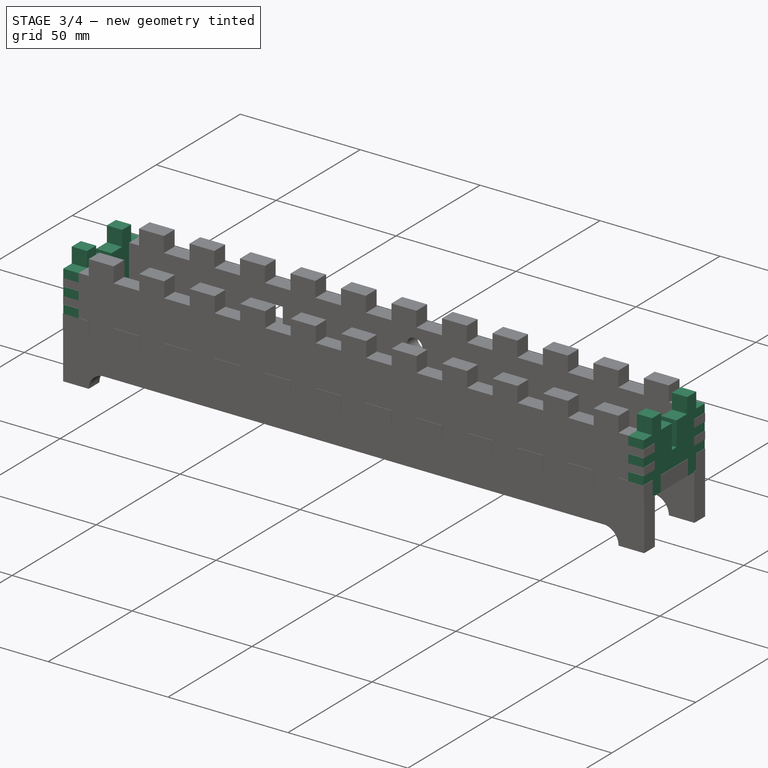
[diagram: stage 3 of 4 — iso view after this stage's code; geometry added in this stage tinted green]
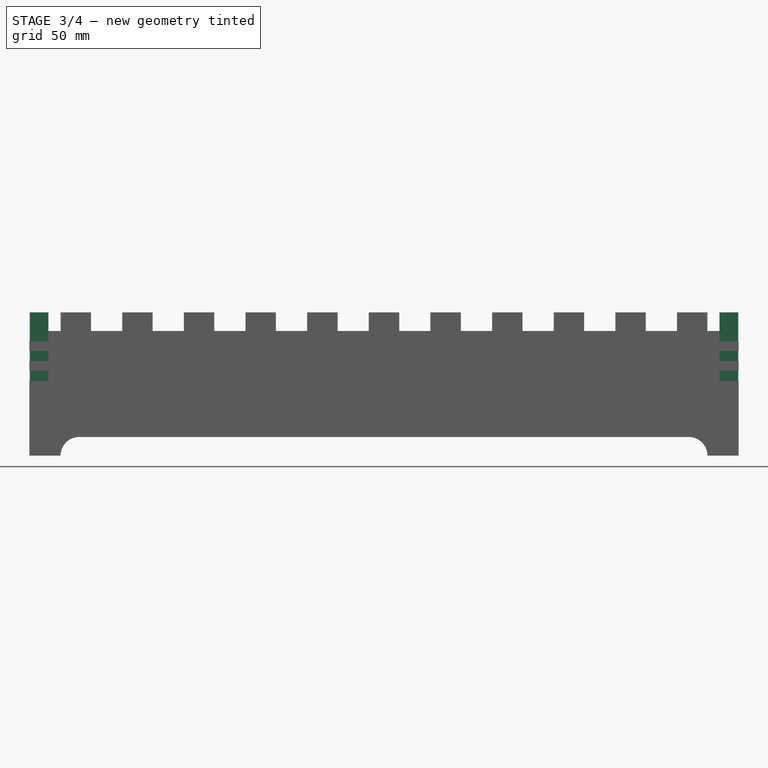
[diagram: stage 3 of 4 — front view after this stage's code; geometry added in this stage tinted green]
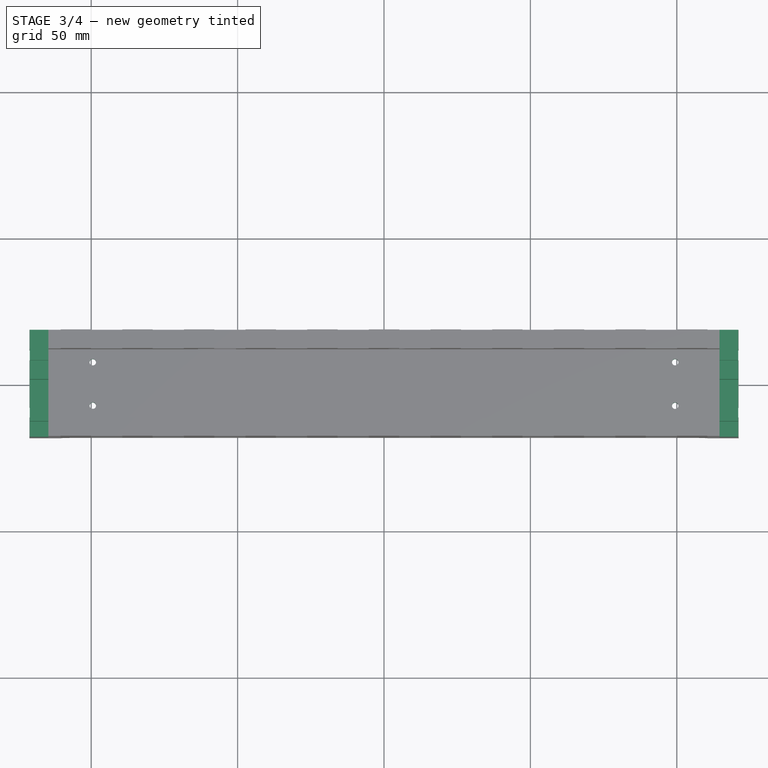
[diagram: stage 3 of 4 — top view after this stage's code; geometry added in this stage tinted green]
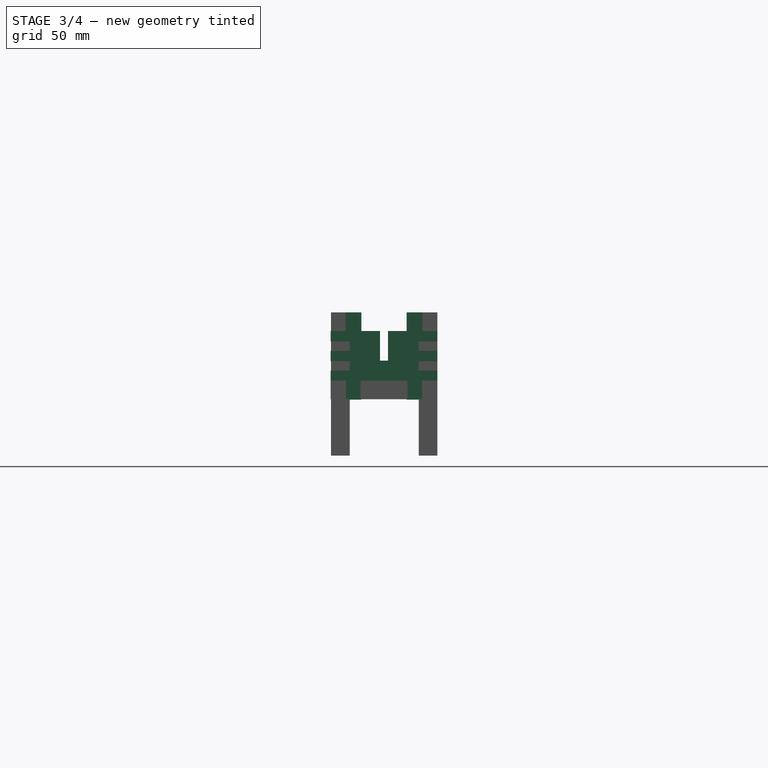
[diagram: stage 3 of 4 — right view after this stage's code; geometry added in this stage tinted green]
FEATURE [PartDesign::Body] Body001
  Group = -> [DatumPlane,Sketch002,Pad001,Sketch001,Pocket]
  Origin = -> Origin007
  Tip = -> Pocket
FEATURE [App::Part] Part001  label="TopOfEnclosure"
  Group = -> [Body001]
  License = CC-BY-NC-SA
  LicenseURL = https://creativecommons.org/licenses/by-nc-sa/4.0/
  Origin = -> Origin006
FEATURE [PartDesign::Plane] DatumPlane001
  AttachmentOffset = pos=(0,0,114.6) rot=(0,0,1;0rad)
  MapMode = 5
  Placement = pos=(114.6,-1.3e-11,1.3e-11) rot=(0.57735,0.57735,0.57735;2.0944rad)
  Support = -> [YZ_Plane009]
  expr: AttachmentOffset.Base.z = Datum.ScreenWidth / 2
FEATURE [Sketcher::SketchObject] Sketch003
  MapMode = 5
  Placement = pos=(114.6,-1.3e-11,1.3e-11) rot=(0.57735,0.57735,0.57735;2.0944rad)
  Support = -> [DatumPlane001]
  expr: Constraints[130] = Datum.AcrylicThickness - Datum.WoodKerf
  expr: Constraints[129] = LEDHeight.Distance + Datum.WoodKerf / 2
  expr: Constraints[115] = Datum.AcrylicThickness + 2 * Datum.WoodThickness - Datum.WoodKerf
  expr: Constraints[97] = Datum.WoodKerf
  expr: Constraints[91] = 0mm - Datum.SideBelowXYWithKerf
  expr: Constraints[90] = Datum.SideAboveXYWithKerf
  expr: Constraints[78] = Datum.WoodThickness
  expr: Constraints[100] = Datum.EnclosureWidthWithKerf
  expr: Constraints[109] = Datum.WoodKerf
  sketch-geometry (44):
    g0: LineSegment StartX=18.2301 StartY=12.1397 StartZ=0 EndX=13.1226 EndY=12.1397 EndZ=0
    g1: LineSegment StartX=13.1226 StartY=12.1397 StartZ=0 EndX=13.1226 EndY=18.5151 EndZ=0
    g2: LineSegment StartX=13.1226 StartY=18.5151 StartZ=0 EndX=7.7357 EndY=18.5151 EndZ=0
    g3: LineSegment StartX=7.7357 StartY=18.5151 StartZ=0 EndX=7.7357 EndY=12.1397 EndZ=0
    g4: LineSegment StartX=-7.7357 StartY=12.1397 StartZ=0 EndX=-7.7357 EndY=18.5151 EndZ=0
    g5: LineSegment StartX=-7.7357 StartY=18.5151 StartZ=0 EndX=-13.1226 EndY=18.5151 EndZ=0
    g6: LineSegment StartX=-13.1226 StartY=18.5151 StartZ=0 EndX=-13.1226 EndY=12.1397 EndZ=0
    g7: LineSegment StartX=-13.1226 StartY=12.1397 StartZ=0 EndX=-18.2301 EndY=12.1397 EndZ=0
    g8: LineSegment StartX=-18.2301 StartY=12.1397 StartZ=0 EndX=-18.2301 EndY=8.62006 EndZ=0
    g9: LineSegment StartX=-18.2301 StartY=8.62006 StartZ=0 EndX=-11.8547 EndY=8.62006 EndZ=0
    g10: LineSegment StartX=-11.8547 StartY=8.62006 StartZ=0 EndX=-11.8547 EndY=5.37982 EndZ=0
    g11: LineSegment StartX=-11.8547 StartY=5.37982 StartZ=0 EndX=-18.2301 EndY=5.37982 EndZ=0
    g12: LineSegment StartX=-18.2301 StartY=5.37982 StartZ=0 EndX=-18.2301 EndY=1.86018 EndZ=0
    g13: LineSegment StartX=-18.2301 StartY=1.86018 StartZ=0 EndX=-11.8547 EndY=1.86018 EndZ=0
    g14: LineSegment StartX=-11.8547 StartY=1.86018 StartZ=0 EndX=-11.8547 EndY=-1.38006 EndZ=0
    g15: LineSegment StartX=-11.8547 StartY=-1.38006 StartZ=0 EndX=-18.2301 EndY=-1.38006 EndZ=0
    g16: LineSegment StartX=-18.2301 StartY=-1.38006 StartZ=0 EndX=-18.2301 EndY=-4.8997 EndZ=0
    g17: LineSegment StartX=-18.2301 StartY=-4.8997 StartZ=0 EndX=-13.1226 EndY=-4.8997 EndZ=0
    g18: LineSegment StartX=-13.1226 StartY=-4.8997 StartZ=0 EndX=-13.1226 EndY=-11.2751 EndZ=0
    g19: LineSegment StartX=-13.1226 StartY=-11.2751 StartZ=0 EndX=-7.7357 EndY=-11.2751 EndZ=0
    g20: LineSegment StartX=-7.7357 StartY=-11.2751 StartZ=0 EndX=-7.7357 EndY=-4.8997 EndZ=0
    g21: LineSegment StartX=-7.7357 StartY=-4.8997 StartZ=0 EndX=7.7357 EndY=-4.8997 EndZ=0
    g22: LineSegment StartX=7.7357 StartY=-4.8997 StartZ=0 EndX=7.7357 EndY=-11.2751 EndZ=0
    g23: LineSegment StartX=7.7357 StartY=-11.2751 StartZ=0 EndX=13.1226 EndY=-11.2751 EndZ=0
    g24: LineSegment StartX=13.1226 StartY=-11.2751 StartZ=0 EndX=13.1226 EndY=-4.8997 EndZ=0
    g25: LineSegment StartX=13.1226 StartY=-4.8997 StartZ=0 EndX=18.2301 EndY=-4.8997 EndZ=0
    g26: LineSegment StartX=18.2301 StartY=-4.8997 StartZ=0 EndX=18.2301 EndY=-1.38006 EndZ=0
    g27: LineSegment StartX=18.2301 StartY=-1.38006 StartZ=0 EndX=11.8547 EndY=-1.38006 EndZ=0
    g28: LineSegment StartX=11.8547 StartY=-1.38006 StartZ=0 EndX=11.8547 EndY=1.86018 EndZ=0
    g29: LineSegment StartX=11.8547 StartY=1.86018 StartZ=0 EndX=18.2301 EndY=1.86018 EndZ=0
    g30: LineSegment StartX=18.2301 StartY=1.86018 StartZ=0 EndX=18.2301 EndY=5.37982 EndZ=0
    g31: LineSegment StartX=18.2301 StartY=5.37982 StartZ=0 EndX=11.8547 EndY=5.37982 EndZ=0
    g32: LineSegment StartX=11.8547 StartY=5.37982 StartZ=0 EndX=11.8547 EndY=8.62006 EndZ=0
    g33: LineSegment StartX=11.8547 StartY=8.62006 StartZ=0 EndX=18.2301 EndY=8.62006 EndZ=0
    g34: LineSegment StartX=18.2301 StartY=8.62006 StartZ=0 EndX=18.2301 EndY=12.1397 EndZ=0
    g35: LineSegment [constr] StartX=-18.2301 StartY=12.1397 StartZ=0 EndX=-18.2301 EndY=8.89946 EndZ=0
    g36: LineSegment [constr] StartX=-18.2301 StartY=8.89946 StartZ=0 EndX=-18.2301 EndY=8.62006 EndZ=0
    g37: LineSegment [constr] StartX=-7.7357 StartY=18.5151 StartZ=0 EndX=-12.8432 EndY=18.5151 EndZ=0
    g38: LineSegment [constr] StartX=-12.8432 StartY=18.5151 StartZ=0 EndX=-13.1226 EndY=18.5151 EndZ=0
    g39: LineSegment StartX=-7.7357 StartY=12.1397 StartZ=0 EndX=-1.3603 EndY=12.1397 EndZ=0
    g40: LineSegment StartX=-1.3603 StartY=12.1397 StartZ=0 EndX=-1.3603 EndY=2.0397 EndZ=0
    g41: LineSegment StartX=-1.3603 StartY=2.0397 StartZ=0 EndX=1.3603 EndY=2.0397 EndZ=0
    g42: LineSegment StartX=1.3603 StartY=2.0397 StartZ=0 EndX=1.3603 EndY=12.1397 EndZ=0
    g43: LineSegment StartX=1.3603 StartY=12.1397 StartZ=0 EndX=7.7357 EndY=12.1397 EndZ=0
  constraints (131):
    c: Horizontal(g0)
    c: Coincident(g0,g1)
    c: Vertical(g1)
    c: Coincident(g1,g2)
    c: Horizontal(g2)
    c: Coincident(g2,g3)
    c: Vertical(g3)
    c: Vertical(g4)
    c: Coincident(g4,g5)
    c: Coincident(g5,g6)
    c: Vertical(g6)
    c: Coincident(g6,g7)
    c: Horizontal(g7)
    c: Coincident(g7,g8)
    c: Coincident(g8,g9)
    c: Horizontal(g9)
    c: Coincident(g9,g10)
    c: Vertical(g10)
    c: Coincident(g10,g11)
    c: Horizontal(g11)
    c: Coincident(g11,g12)
    c: Vertical(g12)
    c: Coincident(g12,g13)
    c: Horizontal(g13)
    c: Coincident(g13,g14)
    c: Vertical(g14)
    c: Coincident(g14,g15)
    c: Horizontal(g15)
    c: Coincident(g15,g16)
    c: Vertical(g16)
    c: Coincident(g16,g17)
    c: Horizontal(g17)
    c: Coincident(g17,g18)
    c: Vertical(g18)
    c: Coincident(g18,g19)
    c: Horizontal(g19)
    c: Coincident(g19,g20)
    c: Vertical(g20)
    c: Coincident(g20,g21)
    c: Horizontal(g21)
    c: Coincident(g21,g22)
    c: Vertical(g22)
    c: Coincident(g22,g23)
    c: Horizontal(g23)
    c: Coincident(g23,g24)
    c: Vertical(g24)
    c: Coincident(g24,g25)
    c: Horizontal(g25)
    c: Coincident(g25,g26)
    c: Vertical(g26)
    c: Coincident(g26,g27)
    c: Horizontal(g27)
    c: Coincident(g27,g28)
    c: Vertical(g28)
    c: Coincident(g28,g29)
    c: Horizontal(g29)
    c: Coincident(g29,g30)
    c: Vertical(g30)
    c: Coincident(g30,g31)
    c: Horizontal(g31)
    c: Coincident(g31,g32)
    c: Vertical(g32)
    c: Coincident(g32,g33)
    c: Horizontal(g33)
    c: Coincident(g33,g34)
    c: Coincident(g34,g0)
    c: Vertical(g34)
    c: Equal(g9,g11)
    c: Equal(g11,g13)
    c: Equal(g13,g15)
    c: Equal(g18,g20)
    c: Equal(g20,g22)
    c: Equal(g22,g24)
    c: Equal(g27,g29)
    c: Equal(g29,g31)
    c: Equal(g31,g33)
    c: Equal(g1,g3)
    c: Equal(g3,g4)
    c: DistanceY(g4,g4) = 6.3754
    c: Equal(g5,g2)
    c: Equal(g2,g23)
    c: Equal(g23,g19)
    c: Equal(g8,g12)
    c: Equal(g12,g16)
    c: Equal(g16,g26)
    c: Equal(g26,g30)
    c: Equal(g30,g34)
    c: Equal(g10,g14)
    c: Equal(g14,g28)
    c: Equal(g28,g32)
    c: DistanceY(g-1,g7) = 12.1397
    c: DistanceY(g-1,g16) = -4.8997
    c: Symmetric(g4,g2,g-2)
    c: Vertical(g35)
    c: Coincident(g35,g36)
    c: Vertical(g36)
    c: Equal(g35,g10)
    c: DistanceY(g36,g36) = 0.2794
    c: Coincident(g35,g7)
    c: Coincident(g8,g36)
    c: Distance(g16,g25) = 36.4602
    c: Equal(g6,g4)
    c: Horizontal(g37)
    c: Coincident(g37,g38)
    c: Horizontal(g38)
    c: Equal(g17,g25)
    c: Equal(g25,g0)
    c: Equal(g0,g7)
    c: Equal(g7,g37)
    c: DistanceX(g38,g38) = 0.2794
    c: Coincident(g37,g4)
    c: Coincident(g38,g5)
    c: Equal(g6,g9)
    c: Equal(g15,g18)
    c: Equal(g24,g27)
    c: Distance(g4,g2) = 15.4714
    c: Coincident(g4,g39)
    c: Horizontal(g39)
    c: Coincident(g39,g40)
    c: Vertical(g40)
    c: Coincident(g40,g41)
    c: Horizontal(g41)
    c: Coincident(g41,g42)
    c: Vertical(g42)
    c: Coincident(g42,g43)
    c: Coincident(g43,g3)
    c: Horizontal(g43)
    c: Equal(g39,g43)
    c: Equal(g40,g42)
    c: DistanceY(g-1,g41) = 2.0397
    c: DistanceX(g41,g41) = 2.7206
FEATURE [PartDesign::Pad] Pad002
  Length = 6.3754
  Length2 = 100
  Placement = pos=(114.6,-1.3e-11,1.3e-11) rot=(0.57735,0.57735,0.57735;2.0944rad)
  Profile = -> Sketch003
  Type = 0
  expr: Length = Datum.WoodThickness
FEATURE [PartDesign::Body] Body002
  Group = -> [DatumPlane001,Sketch003,Pad002]
  Origin = -> Origin009
  Tip = -> Pad002
FEATURE [App::Part] Part002  label="RightSideOfEnclosure"
  Group = -> [Body002]
  License = CC-BY-NC-SA
  LicenseURL = https://creativecommons.org/licenses/by-nc-sa/4.0/
  Origin = -> Origin008
FEATURE [PartDesign::Plane] DatumPlane002
  AttachmentOffset = pos=(0,0,-114.6) rot=(0,0,1;0rad)
  MapMode = 5
  Placement = pos=(-114.6,1.3e-11,-1.3e-11) rot=(0.57735,0.57735,0.57735;2.0944rad)
  Support = -> [YZ_Plane011]
  expr: AttachmentOffset.Base.z = -Datum.ScreenWidth / 2
FEATURE [Sketcher::SketchObject] Sketch004
  MapMode = 5
  Placement = pos=(-114.6,1.3e-11,-1.3e-11) rot=(0.57735,0.57735,0.57735;2.0944rad)
  Support = -> [DatumPlane002]
  expr: Constraints[130] = Datum.AcrylicThickness - Datum.WoodKerf
  expr: Constraints[129] = LEDHeight.Distance + Datum.WoodKerf / 2
  expr: Constraints[115] = Datum.AcrylicThickness + 2 * Datum.WoodThickness - Datum.WoodKerf
  expr: Constraints[97] = Datum.WoodKerf
  expr: Constraints[91] = 0mm - Datum.SideBelowXYWithKerf
  expr: Constraints[90] = Datum.SideAboveXYWithKerf
  expr: Constraints[78] = Datum.WoodThickness
  expr: Constraints[100] = Datum.EnclosureWidthWithKerf
  expr: Constraints[109] = Datum.WoodKerf
  sketch-geometry (44):
    g0: LineSegment StartX=18.2301 StartY=12.1397 StartZ=0 EndX=13.1226 EndY=12.1397 EndZ=0
    g1: LineSegment StartX=13.1226 StartY=12.1397 StartZ=0 EndX=13.1226 EndY=18.5151 EndZ=0
    g2: LineSegment StartX=13.1226 StartY=18.5151 StartZ=0 EndX=7.7357 EndY=18.5151 EndZ=0
    g3: LineSegment StartX=7.7357 StartY=18.5151 StartZ=0 EndX=7.7357 EndY=12.1397 EndZ=0
    g4: LineSegment StartX=-7.7357 StartY=12.1397 StartZ=0 EndX=-7.7357 EndY=18.5151 EndZ=0
    g5: LineSegment StartX=-7.7357 StartY=18.5151 StartZ=0 EndX=-13.1226 EndY=18.5151 EndZ=0
    g6: LineSegment StartX=-13.1226 StartY=18.5151 StartZ=0 EndX=-13.1226 EndY=12.1397 EndZ=0
    g7: LineSegment StartX=-13.1226 StartY=12.1397 StartZ=0 EndX=-18.2301 EndY=12.1397 EndZ=0
    g8: LineSegment StartX=-18.2301 StartY=12.1397 StartZ=0 EndX=-18.2301 EndY=8.62006 EndZ=0
    g9: LineSegment StartX=-18.2301 StartY=8.62006 StartZ=0 EndX=-11.8547 EndY=8.62006 EndZ=0
    g10: LineSegment StartX=-11.8547 StartY=8.62006 StartZ=0 EndX=-11.8547 EndY=5.37982 EndZ=0
    g11: LineSegment StartX=-11.8547 StartY=5.37982 StartZ=0 EndX=-18.2301 EndY=5.37982 EndZ=0
    g12: LineSegment StartX=-18.2301 StartY=5.37982 StartZ=0 EndX=-18.2301 EndY=1.86018 EndZ=0
    g13: LineSegment StartX=-18.2301 StartY=1.86018 StartZ=0 EndX=-11.8547 EndY=1.86018 EndZ=0
    g14: LineSegment StartX=-11.8547 StartY=1.86018 StartZ=0 EndX=-11.8547 EndY=-1.38006 EndZ=0
    g15: LineSegment StartX=-11.8547 StartY=-1.38006 StartZ=0 EndX=-18.2301 EndY=-1.38006 EndZ=0
    g16: LineSegment StartX=-18.2301 StartY=-1.38006 StartZ=0 EndX=-18.2301 EndY=-4.8997 EndZ=0
    g17: LineSegment StartX=-18.2301 StartY=-4.8997 StartZ=0 EndX=-13.1226 EndY=-4.8997 EndZ=0
    g18: LineSegment StartX=-13.1226 StartY=-4.8997 StartZ=0 EndX=-13.1226 EndY=-11.2751 EndZ=0
    g19: LineSegment StartX=-13.1226 StartY=-11.2751 StartZ=0 EndX=-7.7357 EndY=-11.2751 EndZ=0
    g20: LineSegment StartX=-7.7357 StartY=-11.2751 StartZ=0 EndX=-7.7357 EndY=-4.8997 EndZ=0
    g21: LineSegment StartX=-7.7357 StartY=-4.8997 StartZ=0 EndX=7.7357 EndY=-4.8997 EndZ=0
    g22: LineSegment StartX=7.7357 StartY=-4.8997 StartZ=0 EndX=7.7357 EndY=-11.2751 EndZ=0
    g23: LineSegment StartX=7.7357 StartY=-11.2751 StartZ=0 EndX=13.1226 EndY=-11.2751 EndZ=0
    g24: LineSegment StartX=13.1226 StartY=-11.2751 StartZ=0 EndX=13.1226 EndY=-4.8997 EndZ=0
    g25: LineSegment StartX=13.1226 StartY=-4.8997 StartZ=0 EndX=18.2301 EndY=-4.8997 EndZ=0
    g26: LineSegment StartX=18.2301 StartY=-4.8997 StartZ=0 EndX=18.2301 EndY=-1.38006 EndZ=0
    g27: LineSegment StartX=18.2301 StartY=-1.38006 StartZ=0 EndX=11.8547 EndY=-1.38006 EndZ=0
    g28: LineSegment StartX=11.8547 StartY=-1.38006 StartZ=0 EndX=11.8547 EndY=1.86018 EndZ=0
    g29: LineSegment StartX=11.8547 StartY=1.86018 StartZ=0 EndX=18.2301 EndY=1.86018 EndZ=0
    g30: LineSegment StartX=18.2301 StartY=1.86018 StartZ=0 EndX=18.2301 EndY=5.37982 EndZ=0
    g31: LineSegment StartX=18.2301 StartY=5.37982 StartZ=0 EndX=11.8547 EndY=5.37982 EndZ=0
    g32: LineSegment StartX=11.8547 StartY=5.37982 StartZ=0 EndX=11.8547 EndY=8.62006 EndZ=0
    g33: LineSegment StartX=11.8547 StartY=8.62006 StartZ=0 EndX=18.2301 EndY=8.62006 EndZ=0
    g34: LineSegment StartX=18.2301 StartY=8.62006 StartZ=0 EndX=18.2301 EndY=12.1397 EndZ=0
    g35: LineSegment [constr] StartX=-18.2301 StartY=12.1397 StartZ=0 EndX=-18.2301 EndY=8.89946 EndZ=0
    g36: LineSegment [constr] StartX=-18.2301 StartY=8.89946 StartZ=0 EndX=-18.2301 EndY=8.62006 EndZ=0
    g37: LineSegment [constr] StartX=-7.7357 StartY=18.5151 StartZ=0 EndX=-12.8432 EndY=18.5151 EndZ=0
    g38: LineSegment [constr] StartX=-12.8432 StartY=18.5151 StartZ=0 EndX=-13.1226 EndY=18.5151 EndZ=0
    g39: LineSegment StartX=-7.7357 StartY=12.1397 StartZ=0 EndX=-1.3603 EndY=12.1397 EndZ=0
    g40: LineSegment StartX=-1.3603 StartY=12.1397 StartZ=0 EndX=-1.3603 EndY=2.0397 EndZ=0
    g41: LineSegment StartX=-1.3603 StartY=2.0397 StartZ=0 EndX=1.3603 EndY=2.0397 EndZ=0
    g42: LineSegment StartX=1.3603 StartY=2.0397 StartZ=0 EndX=1.3603 EndY=12.1397 EndZ=0
    g43: LineSegment StartX=1.3603 StartY=12.1397 StartZ=0 EndX=7.7357 EndY=12.1397 EndZ=0
  constraints (131):
    c: Horizontal(g0)
    c: Coincident(g0,g1)
    c: Vertical(g1)
    c: Coincident(g1,g2)
    c: Horizontal(g2)
    c: Coincident(g2,g3)
    c: Vertical(g3)
    c: Vertical(g4)
    c: Coincident(g4,g5)
    c: Coincident(g5,g6)
    c: Vertical(g6)
    c: Coincident(g6,g7)
    c: Horizontal(g7)
    c: Coincident(g7,g8)
    c: Coincident(g8,g9)
    c: Horizontal(g9)
    c: Coincident(g9,g10)
    c: Vertical(g10)
    c: Coincident(g10,g11)
    c: Horizontal(g11)
    c: Coincident(g11,g12)
    c: Vertical(g12)
    c: Coincident(g12,g13)
    c: Horizontal(g13)
    c: Coincident(g13,g14)
    c: Vertical(g14)
    c: Coincident(g14,g15)
    c: Horizontal(g15)
    c: Coincident(g15,g16)
    c: Vertical(g16)
    c: Coincident(g16,g17)
    c: Horizontal(g17)
    c: Coincident(g17,g18)
    c: Vertical(g18)
    c: Coincident(g18,g19)
    c: Horizontal(g19)
    c: Coincident(g19,g20)
    c: Vertical(g20)
    c: Coincident(g20,g21)
    c: Horizontal(g21)
    c: Coincident(g21,g22)
    c: Vertical(g22)
    c: Coincident(g22,g23)
    c: Horizontal(g23)
    c: Coincident(g23,g24)
    c: Vertical(g24)
    c: Coincident(g24,g25)
    c: Horizontal(g25)
    c: Coincident(g25,g26)
    c: Vertical(g26)
    c: Coincident(g26,g27)
    c: Horizontal(g27)
    c: Coincident(g27,g28)
    c: Vertical(g28)
    c: Coincident(g28,g29)
    c: Horizontal(g29)
    c: Coincident(g29,g30)
    c: Vertical(g30)
    c: Coincident(g30,g31)
    c: Horizontal(g31)
    c: Coincident(g31,g32)
    c: Vertical(g32)
    c: Coincident(g32,g33)
    c: Horizontal(g33)
    c: Coincident(g33,g34)
    c: Coincident(g34,g0)
    c: Vertical(g34)
    c: Equal(g9,g11)
    c: Equal(g11,g13)
    c: Equal(g13,g15)
    c: Equal(g18,g20)
    c: Equal(g20,g22)
    c: Equal(g22,g24)
    c: Equal(g27,g29)
    c: Equal(g29,g31)
    c: Equal(g31,g33)
    c: Equal(g1,g3)
    c: Equal(g3,g4)
    c: DistanceY(g4,g4) = 6.3754
    c: Equal(g5,g2)
    c: Equal(g2,g23)
    c: Equal(g23,g19)
    c: Equal(g8,g12)
    c: Equal(g12,g16)
    c: Equal(g16,g26)
    c: Equal(g26,g30)
    c: Equal(g30,g34)
    c: Equal(g10,g14)
    c: Equal(g14,g28)
    c: Equal(g28,g32)
    c: DistanceY(g-1,g7) = 12.1397
    c: DistanceY(g-1,g16) = -4.8997
    c: Symmetric(g4,g2,g-2)
    c: Vertical(g35)
    c: Coincident(g35,g36)
    c: Vertical(g36)
    c: Equal(g35,g10)
    c: DistanceY(g36,g36) = 0.2794
    c: Coincident(g35,g7)
    c: Coincident(g8,g36)
    c: Distance(g16,g25) = 36.4602
    c: Equal(g6,g4)
    c: Horizontal(g37)
    c: Coincident(g37,g38)
    c: Horizontal(g38)
    c: Equal(g17,g25)
    c: Equal(g25,g0)
    c: Equal(g0,g7)
    c: Equal(g7,g37)
    c: DistanceX(g38,g38) = 0.2794
    c: Coincident(g37,g4)
    c: Coincident(g38,g5)
    c: Equal(g6,g9)
    c: Equal(g15,g18)
    c: Equal(g24,g27)
    c: Distance(g4,g2) = 15.4714
    c: Coincident(g4,g39)
    c: Horizontal(g39)
    c: Coincident(g39,g40)
    c: Vertical(g40)
    c: Coincident(g40,g41)
    c: Horizontal(g41)
    c: Coincident(g41,g42)
    c: Vertical(g42)
    c: Coincident(g42,g43)
    c: Coincident(g43,g3)
    c: Horizontal(g43)
    c: Equal(g39,g43)
    c: Equal(g40,g42)
    c: DistanceY(g-1,g41) = 2.0397
    c: DistanceX(g41,g41) = 2.7206
FEATURE [PartDesign::Pad] Pad003
  Length = 6.3754
  Length2 = 100
  Placement = pos=(-114.6,1.3e-11,-1.3e-11) rot=(0.57735,0.57735,0.57735;2.0944rad)
  Profile = -> Sketch004
  Reversed = true
  Type = 0
  expr: Length = Datum.WoodThickness
FEATURE [Sketcher::SketchObject] Sketch010
  MapMode = 5
  Placement = pos=(0,0,-4.76) rot=(0,0,1;0rad)
  Support = -> [Pad004]
  expr: Constraints[6] = TopRightMountingHoleX.Distance
  expr: Constraints[2] = TopLeftMountingHoleY.Distance
  expr: Constraints[3] = 0mm - BottomLeftMountingHoleY.Distance
  expr: Constraints[1] = TopLeftMountingHoleDiameter.Distance / 2
  expr: Constraints[10] = 0mm - BottomRightMountingHoleY.Distance
  expr: Constraints[11] = BottomRightMouningHoleDiameter.Distance / 2
  expr: Constraints[5] = BottomLeftMountingHoleDiameter.Distance / 2
  expr: Constraints[9] = BottomRightMountingHoleX.Distance
  expr: Constraints[0] = 0mm - TopLeftMountingHoleX.Distance
  expr: Constraints[4] = 0mm - BottomLeftMountingHoleX.Distance
  expr: Constraints[8] = TopRightMountingHoleDiameter.Distance / 2
  expr: Constraints[7] = TopRightMountingHoleY.Distance
  sketch-geometry (4):
    g0: Circle CenterX=-99.45 CenterY=7.43867 CenterZ=0 NormalX=0 NormalY=0 NormalZ=1 AngleXU=0 Radius=1.1
    g1: Circle CenterX=-99.45 CenterY=-7.38657 CenterZ=0 NormalX=0 NormalY=0 NormalZ=1 AngleXU=0 Radius=1.1
    g2: Circle CenterX=99.45 CenterY=7.44045 CenterZ=0 NormalX=0 NormalY=0 NormalZ=1 AngleXU=0 Radius=1.1
    g3: Circle CenterX=99.45 CenterY=-7.42961 CenterZ=0 NormalX=0 NormalY=0 NormalZ=1 AngleXU=0 Radius=1.1
  constraints (12):
    c: DistanceX(g-2,g0) = -99.45
    c: Radius(g0) = 1.1
    c: DistanceY(g-1,g0) = 7.43867
    c: DistanceY(g-1,g1) = -7.38657
    c: DistanceX(g-2,g1) = -99.45
    c: Radius(g1) = 1.1
    c: DistanceX(g-2,g2) = 99.45
    c: DistanceY(g-1,g2) = 7.44045
    c: Radius(g2) = 1.1
    c: DistanceX(g-2,g3) = 99.45
    c: DistanceY(g-1,g3) = -7.42961
    c: Radius(g3) = 1.1
FEATURE [PartDesign::Pocket] Pocket003
  BaseFeature = -> Pad004
  Length = 7.3754
  Length2 = 100
  Placement = pos=(0,0,-4.76) rot=(0,0,1;0rad)
  Profile = -> Sketch010
  Type = 0
  expr: Length = Datum.WoodThickness + 1mm
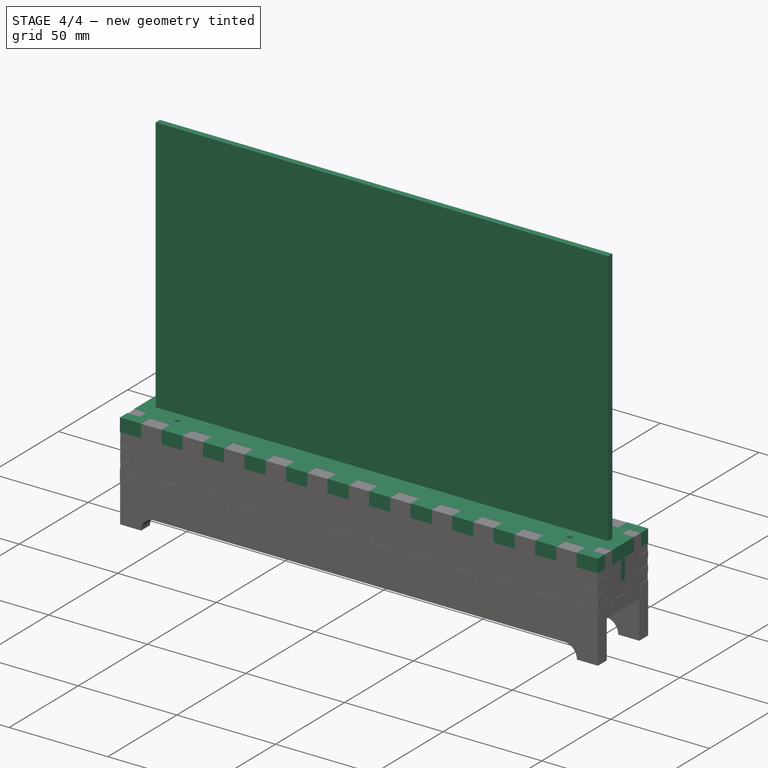
[diagram: stage 4 of 4 — iso view after this stage's code; geometry added in this stage tinted green]
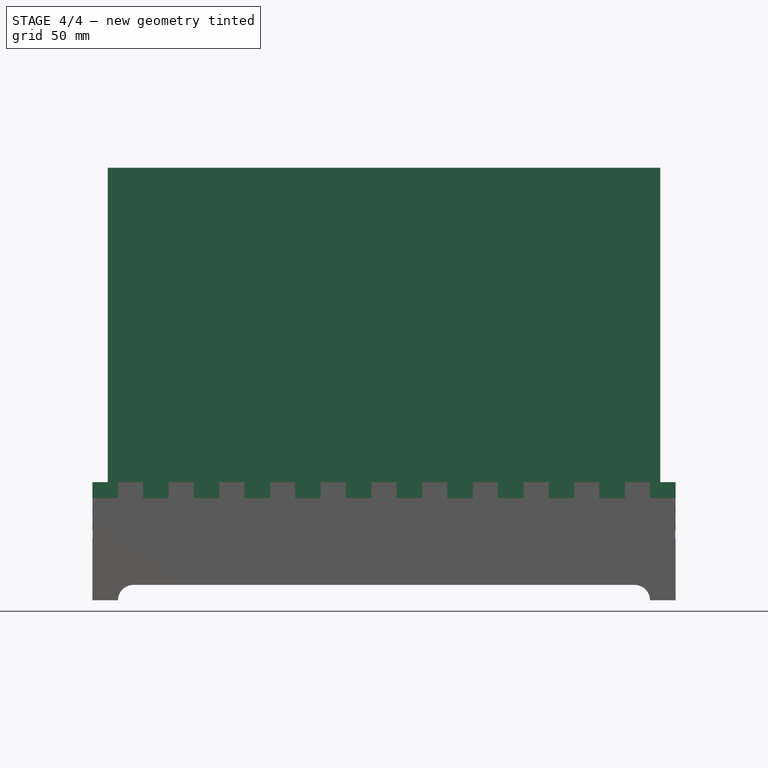
[diagram: stage 4 of 4 — front view after this stage's code; geometry added in this stage tinted green]
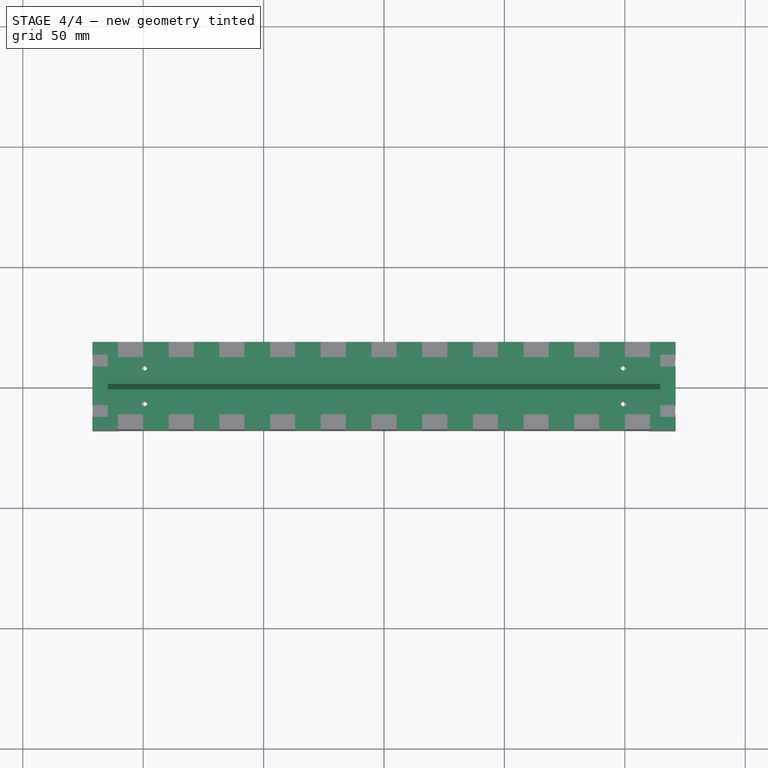
[diagram: stage 4 of 4 — top view after this stage's code; geometry added in this stage tinted green]
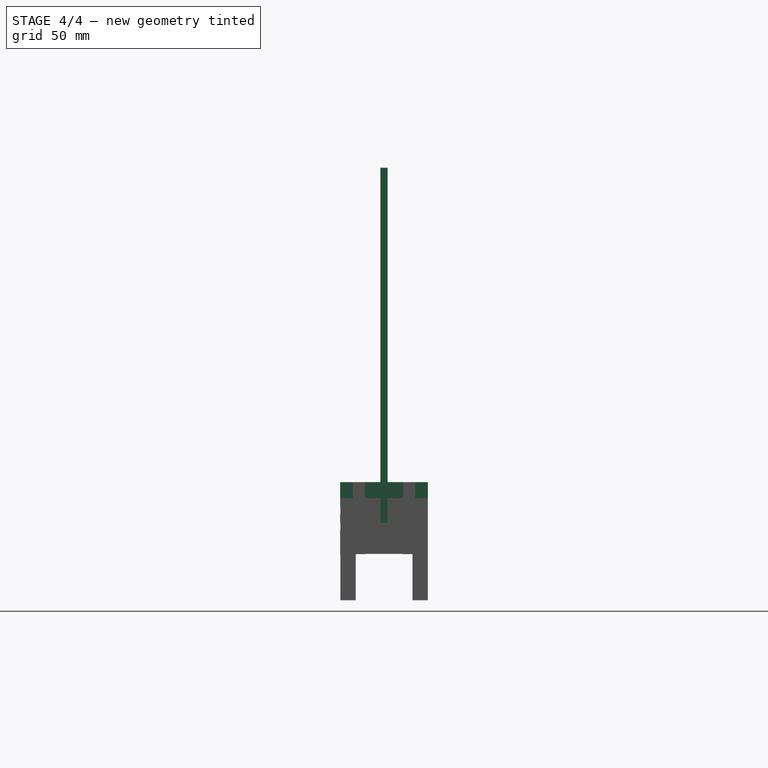
[diagram: stage 4 of 4 — right view after this stage's code; geometry added in this stage tinted green]
FEATURE [Part::Feature] Pcb
  Placement = pos=(-138,149,0) rot=(0,0,1;0rad)
  shape: bbox 204 x 20.01 x 1.61 mm, 66 faces (baked)
FEATURE [Sketcher::SketchObject] PCB_Sketch
  sketch-geometry (8):
    g0: LineSegment StartX=-99.45 StartY=10 StartZ=0 EndX=99.45 EndY=10 EndZ=0
    g1: LineSegment StartX=102 StartY=-7.45 StartZ=0 EndX=102 EndY=7.45 EndZ=0
    g2: LineSegment StartX=-102 StartY=-7.45 StartZ=0 EndX=-102 EndY=7.45 EndZ=0
    g3: LineSegment StartX=-99.45 StartY=-10 StartZ=0 EndX=99.45 EndY=-10 EndZ=0
    g4: ArcOfCircle CenterX=99.45 CenterY=-7.45 CenterZ=0 NormalX=0 NormalY=0 NormalZ=1 AngleXU=0 Radius=2.55 StartAngle=4.71239 EndAngle=6.28319
    g5: ArcOfCircle CenterX=99.45 CenterY=7.45 CenterZ=0 NormalX=0 NormalY=0 NormalZ=1 AngleXU=0 Radius=2.55 StartAngle=0 EndAngle=1.5708
    g6: ArcOfCircle CenterX=-99.45 CenterY=-7.45 CenterZ=0 NormalX=0 NormalY=0 NormalZ=1 AngleXU=0 Radius=2.55 StartAngle=3.14159 EndAngle=4.71239
    g7: ArcOfCircle CenterX=-99.45 CenterY=7.45 CenterZ=0 NormalX=0 NormalY=0 NormalZ=1 AngleXU=0 Radius=2.55 StartAngle=1.5708 EndAngle=3.14159
  constraints (12):
    c: Horizontal(g0)
    c: Coincident(g0,g5)
    c: Coincident(g0,g7)
    c: Vertical(g1)
    c: Coincident(g1,g4)
    c: Coincident(g1,g5)
    c: Vertical(g2)
    c: Coincident(g2,g6)
    c: Coincident(g2,g7)
    c: Horizontal(g3)
    c: Coincident(g3,g4)
    c: Coincident(g3,g6)
FEATURE [App::Part] Board_Geoms
  Group = -> [Pcb,PCB_Sketch]
  Origin = -> Origin
FEATURE [Part::Feature] Shape  label="C_0805_"
  Placement = pos=(6.25,2.1,0) rot=(0,0,1;3.14159rad)
  shape: bbox 2 x 1.25 x 0.78 mm, 28 faces (baked)
FEATURE [Part::Feature] Shape001  label="C_0805_001"
  Placement = pos=(-39,4.9,0) rot=(0,0,1;3.14159rad)
  shape: bbox 2 x 1.25 x 0.78 mm, 28 faces (baked)
FEATURE [Part::Feature] Shape002  label="C_0805_002"
  Placement = pos=(-38.05,-0.15,0) rot=(0,0,1;1.5708rad)
  shape: bbox 1.25 x 2 x 0.78 mm, 28 faces (baked)
FEATURE [Part::Feature] Shape003  label="C_0805_003"
  Placement = pos=(-16.6,-2.85,0) rot=(0,0,-1;1.5708rad)
  shape: bbox 1.25 x 2 x 0.78 mm, 28 faces (baked)
FEATURE [Part::Feature] Shape004  label="C_0805_004"
  Placement = pos=(-20.1,6.5,0) rot=(0,0,1;1.5708rad)
  shape: bbox 1.25 x 2 x 0.78 mm, 28 faces (baked)
FEATURE [Part::Feature] Shape005  label="C_0805_005"
  Placement = pos=(-39.2,-4.95,0) rot=(0,0,1;3.14159rad)
  shape: bbox 2 x 1.25 x 0.78 mm, 28 faces (baked)
FEATURE [Part::Feature] Shape006  label="C_0805_006"
  Placement = pos=(-10.95,5.65,0) rot=(0,0,-1;1.5708rad)
  shape: bbox 1.25 x 2 x 0.78 mm, 28 faces (baked)
FEATURE [Part::Feature] Shape007  label="C_0805_007"
  Placement = pos=(-48.35,-9.1,0) rot=(0,0,1;3.14159rad)
  shape: bbox 2 x 1.25 x 0.78 mm, 28 faces (baked)
FEATURE [Part::Feature] Shape008  label="C_0805_008"
  Placement = pos=(-27.4,-8.9,0) rot=(0,0,1;3.14159rad)
  shape: bbox 2 x 1.25 x 0.78 mm, 28 faces (baked)
FEATURE [Part::Feature] Shape009  label="C_1210_"
  Placement = pos=(-49,-6.6,0) rot=(0,0,1;3.14159rad)
  shape: bbox 3.2 x 2.5 x 2.5 mm, 28 faces (baked)
FEATURE [Part::Feature] Shape010  label="Cree_3d2mm_RGB"
  Placement = pos=(-98,0,0) rot=(0,0,1;1.5708rad)
  shape: bbox 2.8 x 3.5 x 1.9 mm, 40 faces, 6 solids (baked)
FEATURE [Part::Feature] Shape011  label="Cree-3.2mm-RGB_001"
  Placement = pos=(-70,0,0) rot=(0,0,1;1.5708rad)
  shape: bbox 2.8 x 3.5 x 1.9 mm, 40 faces, 6 solids (baked)
FEATURE [Part::Feature] Shape012  label="Cree-3.2mm-RGB_002"
  Placement = pos=(-42,0,0) rot=(0,0,1;1.5708rad)
  shape: bbox 2.8 x 3.5 x 1.9 mm, 40 faces, 6 solids (baked)
FEATURE [Part::Feature] Shape013  label="Cree-3.2mm-RGB_003"
  Placement = pos=(-14,0,0) rot=(0,0,1;1.5708rad)
  shape: bbox 2.8 x 3.5 x 1.9 mm, 40 faces, 6 solids (baked)
FEATURE [Part::Feature] Shape014  label="Cree-3.2mm-RGB_004"
  Placement = pos=(98,0,0) rot=(0,0,1;1.5708rad)
  shape: bbox 2.8 x 3.5 x 1.9 mm, 40 faces, 6 solids (baked)
FEATURE [Part::Feature] Shape015  label="Cree-3.2mm-RGB_005"
  Placement = pos=(70,0,0) rot=(0,0,1;1.5708rad)
  shape: bbox 2.8 x 3.5 x 1.9 mm, 40 faces, 6 solids (baked)
FEATURE [Part::Feature] Shape016  label="Cree-3.2mm-RGB_006"
  Placement = pos=(42,0,0) rot=(0,0,1;1.5708rad)
  shape: bbox 2.8 x 3.5 x 1.9 mm, 40 faces, 6 solids (baked)
FEATURE [Part::Feature] Shape017  label="Cree-3.2mm-RGB_007"
  Placement = pos=(14,0,0) rot=(0,0,1;1.5708rad)
  shape: bbox 2.8 x 3.5 x 1.9 mm, 40 faces, 6 solids (baked)
FEATURE [Part::Feature] Shape018  label="D_SOD_323F_"
  Placement = pos=(-9.9,-6.2,0) rot=(0,0,-1;1.5708rad)
  shape: bbox 1.25 x 2.5 x 0.73 mm, 27 faces (baked)
FEATURE [Part::Feature] Shape019  label="R_1812_"
  Placement = pos=(-47.25,2,0) rot=(0,0,1;1.5708rad)
  shape: bbox 3.2 x 4.5 x 0.55 mm, 28 faces (baked)
FEATURE [Part::Feature] Shape020  label="L_0805_"
  Placement = pos=(-36.7,-6.75,0) rot=(0,0,1;3.14159rad)
  shape: bbox 2 x 1.25 x 1.25 mm, 28 faces (baked)
FEATURE [Part::Feature] Shape021  label="L_0805_001"
  Placement = pos=(-63.5,2,0) rot=(0,0,-1;1.5708rad)
  shape: bbox 1.25 x 2 x 1.25 mm, 28 faces (baked)
FEATURE [Part::Feature] Shape022  label="R_0603_"
  Placement = pos=(-61,0.5,0) rot=(0,0,-1;1.5708rad)
  shape: bbox 0.85 x 1.55 x 0.45 mm, 28 faces (baked)
FEATURE [Part::Feature] Shape023  label="R_0603_001"
  Placement = pos=(-52.5,0.5,0) rot=(0,0,-1;1.5708rad)
  shape: bbox 0.85 x 1.55 x 0.45 mm, 28 faces (baked)
FEATURE [Part::Feature] Shape024  label="USB"
  Placement = pos=(-57,5.85,0) rot=(0,0,1;3.14159rad)
  shape: bbox 8.051 x 5.581 x 3.276 mm, 761 faces (baked)
FEATURE [Part::Feature] Shape025  label="SOT_363_SC_70_6_"
  Placement = pos=(6.8,-7.95,0) rot=(0,0,1;0rad)
  shape: bbox 2 x 2 x 1.05 mm, 120 faces (baked)
FEATURE [Part::Feature] Shape026  label="R_1206_"
  Placement = pos=(0,-8,0) rot=(0,0,1;0rad)
  shape: bbox 3.2 x 1.6 x 0.55 mm, 28 faces (baked)
FEATURE [Part::Feature] Shape027  label="R_1206_001"
  Placement = pos=(14.3,-7.1,0) rot=(0,0,1;3.14159rad)
  shape: bbox 3.2 x 1.6 x 0.55 mm, 28 faces (baked)
FEATURE [Part::Feature] Shape028  label="R_1206_002"
  Placement = pos=(1,2.35,0) rot=(0,0,1;0rad)
  shape: bbox 3.2 x 1.6 x 0.55 mm, 28 faces (baked)
FEATURE [Part::Feature] Shape029  label="R_1206_003"
  Placement = pos=(-18.25,2.9,0) rot=(0,0,1;3.14159rad)
  shape: bbox 3.2 x 1.6 x 0.55 mm, 28 faces (baked)
FEATURE [Part::Feature] Shape030  label="R_1206_004"
  Placement = pos=(-36.1,6.95,0) rot=(0,0,1;3.14159rad)
  shape: bbox 3.2 x 1.6 x 0.55 mm, 28 faces (baked)
FEATURE [Part::Feature] Shape031  label="R_1206_005"
  Placement = pos=(-58.5,0,0) rot=(0,0,1;1.5708rad)
  shape: bbox 1.6 x 3.2 x 0.55 mm, 28 faces (baked)
FEATURE [Part::Feature] Shape032  label="R_1206_006"
  Placement = pos=(-55,0,0) rot=(0,0,1;1.5708rad)
  shape: bbox 1.6 x 3.2 x 0.55 mm, 28 faces (baked)
FEATURE [Part::Feature] Shape033  label="R_1206_007"
  Placement = pos=(-7.75,-5.8,0) rot=(0,0,1;1.5708rad)
  shape: bbox 1.6 x 3.2 x 0.55 mm, 28 faces (baked)
FEATURE [Part::Feature] Shape034  label="Dimmer"
  Placement = pos=(4.5,6,0) rot=(0,0,1;3.14159rad)
  shape: bbox 9.53 x 17.88 x 9.53 mm, 57 faces (baked)
FEATURE [Part::Feature] Shape035  label="Fusion_"
  Placement = pos=(21.5,6.5,0) rot=(0,0,1;0rad)
  shape: bbox 7.19 x 5.99 x 5.01 mm, 44 faces (baked)
FEATURE [Part::Feature] Shape036  label="HTSSOP_20_1EP_44x65mm_Pitch065mm_ThermalPad_"
  Placement = pos=(4.4,-2.35,0) rot=(0,0,1;0rad)
  shape: bbox 6.4 x 6.5 x 1.2 mm, 341 faces (baked)
FEATURE [Part::Feature] Shape037  label="TQFP-44_10x10mm_Pitch0.8mm_"
  Placement = pos=(-28.5,0.9,0) rot=(0,0,1;1.5708rad)
  shape: bbox 12 x 12 x 1.1 mm, 704 faces (baked)
FEATURE [Part::Feature] Shape038  label="Body_001"
  Placement = pos=(-15.65,6.1,0) rot=(0,0,1;0rad)
  shape: bbox 3.2 x 2.5 x 0.7 mm, 28 faces (baked)
FEATURE [Part::Feature] Shape039  label="Chamfer_"
  Placement = pos=(-18.4,-7.45,0) rot=(0,0,1;0rad)
  shape: bbox 6 x 4 x 4.5 mm, 60 faces (baked)
FEATURE [App::Part] Top
  Group = -> [Shape,Shape001,Shape002,Shape003,Shape004,Shape005,Shape006,Shape007,Shape008,Shape009,Shape010,Shape011,Shape012,Shape013,Shape014,Shape015,Shape016,Shape017,Shape018,Shape019,Shape020,Shape021,Shape022,Shape023,Shape024,Shape025,Shape026,Shape027,Shape028,Shape029,Shape030,Shape031,Shape032,Shape033,Shape034,Shape035,Shape036,Shape037,Shape038,Shape039]
  License = CC BY 3.0
  LicenseURL = http://creativecommons.org/licenses/by/3.0/
  Origin = -> Origin003
FEATURE [App::Part] Step_Models
  Group = -> [Top]
  Origin = -> Origin002
FEATURE [App::Part] Board  label="edge-lit display"
  Group = -> [Board_Geoms,Step_Models]
  License = CC-BY-NC-SA
  LicenseURL = https://creativecommons.org/licenses/by-nc-sa/4.0/
  Origin = -> Origin001
FEATURE [Spreadsheet::Sheet] Spreadsheet  label="Datum"
  cells = E1=Base Dimension; F1=With Kerf; A2=Wood Thickness; B2(WoodThickness)==0.251in; D2=Screen Width; E2(ScreenWidth)==PCBLength.Distance + DistanceBetweenLEDs.Distance; F2(ScreenWidthWithKerf)==ScreenWidth + AcrylicKerf; A3=Wood Kerf; B3(WoodKerf)==0.010999999999999999in; D3=Screen Height; E3(ScreenHeight)==ScreenWidth * 9 / 16 + E4; F3(ScreenHeightWithKerf)==ScreenHeight + AcrylicKerf; A4=Acrylic Thickness; B4(AcrylicThickness)==3mm; D4=Screen Height Below Opening; E4==SideAboveXY + WoodThickness; A5=Acrylic Kerf; B5(AcrylicKerf)==0.20000000000000001mm; A6=Spacer Diameter; B6(SpacerDiameter)==4mm; D6=PCB Thickness Tolerance; E6=0.10000000000000001; A7=Spacer Thread Length; B7(SpacerThreadLength)==6mm; D7=PCB Thickness; E7(PCBThickness)==(1 + E6) * 1.6000000000000001mm; A8=Screw Thread Length; B8(ScrewThreadLength)==6mm; A9=Nut Thickness; B9(NutThickness)==1.7mm; E9=Base Dimension; F9=With Kerf; D10=Side Above XY; E10(SideAboveXY)==12mm; F10(SideAboveXYWithKerf)==SideAboveXY + WoodKerf / 2; D11=Side Below XY; E11(SideBelowXY)==Datum.PCBThickness + 3mm; F11(SideBelowXYWithKerf)==SideBelowXY + WoodKerf / 2; D12=Enclosure Length; E12(EnclosureLength)==Datum.ScreenWidth + 2 * Datum.WoodThickness; F12(EnclosureLengthWithKerf)==EnclosureLength + WoodKerf; D13=Enclosure Width; E13(EnclosureWidth)==PCBWidth.Distance + 2 * Datum.WoodThickness + 3.4300000000000002mm; F13(EnclosureWidthWithKerf)==EnclosureWidth + WoodKerf
FEATURE [App::FeaturePython] Dimension  label="PCBLength"  # Draft dimension (typed FeaturePython)
  Diameter = false
  Dimline = (94,0.082016,0)
  Direction = (0,0,0)
  Distance = 204
  End = (102,0.082016,0)
  Normal = (0,0,1)
  Start = (-102,0.082016,0)
FEATURE [App::FeaturePython] Dimension001  label="PCBWidth"  # Draft dimension (typed FeaturePython)
  Diameter = false
  Dimline = (83.888,-4,0)
  Direction = (0,0,0)
  Distance = 20
  End = (83.888,-10,0)
  Normal = (0,0,1)
  Start = (83.888,10,0)
FEATURE [App::FeaturePython] Dimension002  label="LEDHeight"  # Draft dimension (typed FeaturePython)
  Diameter = false
  Dimline = (-96.6,-8.5831e-08,0.46)
  Direction = (0,0,0)
  Distance = 1.9
  End = (-96.6,-1.6,1.9)
  LinkedGeometry = -> [Shape010]
  Normal = (0,-1,0)
  Start = (-96.6,-1.6,0)
  Support = -> Shape010
FEATURE [Sketcher::SketchObject] Sketch
  MapMode = 5
  Placement = pos=(0,0,0) rot=(1,0,0;1.5708rad)
  Support = -> [XZ_Plane004]
  expr: Constraints[22] = Datum.SideAboveXY + Datum.AcrylicKerf
  expr: Constraints[3] = Datum.ScreenWidthWithKerf
  expr: Constraints[5] = Datum.ScreenWidthWithKerf + 2 * Datum.WoodThickness
  expr: Constraints[28] = Datum.ScreenHeightWithKerf
  expr: Constraints[2] = LEDHeight.Distance - Datum.AcrylicKerf
  sketch-geometry (10):
    g0: LineSegment StartX=-114.7 StartY=149.2 StartZ=0 EndX=114.7 EndY=149.2 EndZ=0
    g1: LineSegment StartX=121.075 StartY=1.7 StartZ=0 EndX=-121.075 EndY=1.7 EndZ=0
    g2: LineSegment StartX=114.7 StartY=149.2 StartZ=0 EndX=114.7 EndY=12.2 EndZ=0
    g3: LineSegment StartX=114.7 StartY=12.2 StartZ=0 EndX=121.075 EndY=12.2 EndZ=0
    g4: LineSegment StartX=121.075 StartY=12.2 StartZ=0 EndX=121.075 EndY=1.7 EndZ=0
    g5: LineSegment StartX=-114.7 StartY=149.2 StartZ=0 EndX=-114.7 EndY=12.2 EndZ=0
    g6: LineSegment StartX=-114.7 StartY=12.2 StartZ=0 EndX=-121.075 EndY=12.2 EndZ=0
    g7: LineSegment StartX=-121.075 StartY=12.2 StartZ=0 EndX=-121.075 EndY=1.7 EndZ=0
    g8: LineSegment [constr] StartX=-121.075 StartY=12.2 StartZ=0 EndX=-121.075 EndY=149.2 EndZ=0
    g9: LineSegment [constr] StartX=-121.075 StartY=149.2 StartZ=0 EndX=-114.7 EndY=149.2 EndZ=0
  constraints (29):
    c: Horizontal(g0)
    c: Horizontal(g1)
    c: DistanceY(g-1,g1) = 1.7
    c: DistanceX(g0,g0) = 229.4
    c: Symmetric(g0,g0,g-2)
    c: DistanceX(g1,g1) = 242.151
    c: Coincident(g0,g2)
    c: Vertical(g2)
    c: Coincident(g2,g3)
    c: Horizontal(g3)
    c: Coincident(g3,g4)
    c: Coincident(g4,g1)
    c: Coincident(g0,g5)
    c: Vertical(g5)
    c: Coincident(g5,g6)
    c: Horizontal(g6)
    c: Coincident(g6,g7)
    c: Coincident(g7,g1)
    c: Vertical(g7)
    c: Vertical(g4)
    c: Equal(g6,g3)
    c: Equal(g4,g7)
    c: DistanceY(g-1,g3) = 12.2
    c: Coincident(g6,g8)
    c: Coincident(g8,g9)
    c: Coincident(g9,g0)
    c: Equal(g8,g5)
    c: Equal(g9,g6)
    c: Distance(g8,g1) = 147.5
FEATURE [App::FeaturePython] Dimension003  label="DistanceBetweenLEDs"  # Draft dimension (typed FeaturePython)
  Diameter = false
  Dimline = (67.7391,-1.6,0.979216)
  Direction = (0,0,0)
  Distance = 25.2
  End = (68.6,-1.6,0.979216)
  Normal = (0,-1,0)
  Start = (43.4,-1.6,0.979216)
FEATURE [PartDesign::Pad] Pad
  Length = 3
  Length2 = 100
  Midplane = true
  Placement = pos=(0,0,0) rot=(1,0,0;1.5708rad)
  Profile = -> Sketch
  Type = 0
  expr: Length = Datum.AcrylicThickness
FEATURE [PartDesign::Body] Body
  Group = -> [Sketch,Pad]
  Origin = -> Origin005
  Tip = -> Pad
FEATURE [App::Part] Part  label="Screen"
  Group = -> [Body]
  License = CC-BY-NC-SA
  LicenseURL = https://creativecommons.org/licenses/by-nc-sa/4.0/
  Origin = -> Origin004
FEATURE [App::FeaturePython] Dimension004  label="DimmerHeight"  # Draft dimension (typed FeaturePython)
  Diameter = false
  Dimline = (-0.265,-1.62721e-07,6.8)
  Direction = (0,0,0)
  Distance = 9.53
  End = (-0.265,9.91,9.53)
  LinkedGeometry = -> [Shape034]
  Normal = (0,1,0)
  Start = (-0.265,9.91,0)
  Support = -> Shape034
FEATURE [PartDesign::Plane] DatumPlane
  AttachmentOffset = pos=(0,0,12) rot=(0,0,1;0rad)
  MapMode = 5
  Placement = pos=(0,0,12) rot=(0,0,1;0rad)
  Support = -> [XY_Plane007]
  expr: AttachmentOffset.Base.z = Datum.SideAboveXY
FEATURE [App::FeaturePython] Dimension005  label="TopLeftMountingHoleDiameter"  # Draft dimension (typed FeaturePython)
  Diameter = true
  Dimline = (-100.253,7.6017,0)
  Direction = (0,0,0)
  Distance = 2.2
  End = (-100.531,7.65418,0)
  LinkedGeometry = -> [Pcb]
  Normal = (0,0,1)
  Start = (-98.3691,7.24582,0)
  Support = -> Pcb
FEATURE [App::FeaturePython] Dimension006  label="TopLeftMountingHoleX"  # Draft dimension (typed FeaturePython)
  Diameter = false
  Dimline = (-11,7.45,0)
  Direction = (0,0,0)
  Distance = 99.45
  End = (0,7.45,0)
  Normal = (0,0,1)
  Start = (-99.45,7.45,0)
FEATURE [App::FeaturePython] Dimension007  label="TopLeftMountingHoleY"  # Draft dimension (typed FeaturePython)
  Diameter = false
  Dimline = (-99.45,2.54618,0)
  Direction = (0,0,0)
  Distance = 7.43867
  End = (-99.45,0.0113275,0)
  Normal = (0,0,1)
  Start = (-99.45,7.45,0)
FEATURE [App::FeaturePython] Dimension008  label="BottomLeftMountingHoleDiameter"  # Draft dimension (typed FeaturePython)
  Diameter = true
  Dimline = (-100.093,-7.04768,0)
  Direction = (0,0,0)
  Distance = 2.2
  End = (-100.383,-6.8667,0)
  LinkedGeometry = -> [Pcb]
  Normal = (0,0,1)
  Start = (-98.5174,-8.0333,0)
  Support = -> Pcb
FEATURE [App::FeaturePython] Dimension009  label="BottomLeftMountingHoleX"  # Draft dimension (typed FeaturePython)
  Diameter = false
  Dimline = (-94.4122,-7.45,0)
  Direction = (0,0,0)
  Distance = 99.45
  End = (0,-7.45,0)
  Normal = (0,0,1)
  Start = (-99.45,-7.45,0)
FEATURE [App::FeaturePython] Dimension010  label="BottomLeftMountingHoleY"  # Draft dimension (typed FeaturePython)
  Diameter = false
  Dimline = (-99.45,-5.88059,0)
  Direction = (0,0,0)
  Distance = 7.38657
  End = (-99.45,-0.0634264,0)
  Normal = (0,0,1)
  Start = (-99.45,-7.45,0)
FEATURE [App::FeaturePython] Dimension011  label="TopRightMountingHoleDiameter"  # Draft dimension (typed FeaturePython)
  Diameter = true
  Dimline = (98.3531,-0.00224163,0)
  Direction = (0,0,0)
  Distance = 2.2
  End = (99.2898,6.36173,0)
  LinkedGeometry = -> [Pcb]
  Normal = (0,0,1)
  Start = (99.6102,8.53827,0)
  Support = -> Pcb
FEATURE [App::FeaturePython] Dimension012  label="TopRightMountingHoleX"  # Draft dimension (typed FeaturePython)
  Diameter = false
  Dimline = (93.5814,7.45,0)
  Direction = (0,0,0)
  Distance = 99.45
  End = (0,7.45,0)
  Normal = (0,0,1)
  Start = (99.45,7.45,0)
FEATURE [App::FeaturePython] Dimension013  label="TopRightMountingHoleY"  # Draft dimension (typed FeaturePython)
  Diameter = false
  Dimline = (99.45,5.56673,0)
  Direction = (0,0,0)
  Distance = 7.44045
  End = (99.45,0.00954646,0)
  Normal = (0,0,1)
  Start = (99.45,7.45,0)
FEATURE [App::FeaturePython] Dimension014  label="BottomRightMouningHoleDiameter"  # Draft dimension (typed FeaturePython)
  Diameter = true
  Dimline = (98.3531,-0.00786439,0)
  Direction = (0,0,0)
  Distance = 2.2
  End = (99.2896,-6.36176,0)
  LinkedGeometry = -> [Pcb]
  Normal = (0,0,1)
  Start = (99.6104,-8.53824,0)
  Support = -> Pcb
FEATURE [App::FeaturePython] Dimension015  label="BottomRightMountingHoleX"  # Draft dimension (typed FeaturePython)
  Diameter = false
  Dimline = (95.4575,-7.45,0)
  Direction = (0,0,0)
  Distance = 99.45
  End = (0,-7.45,0)
  Normal = (0,0,1)
  Start = (99.45,-7.45,0)
FEATURE [App::FeaturePython] Dimension016  label="BottomRightMountingHoleY"  # Draft dimension (typed FeaturePython)
  Diameter = false
  Dimline = (99.45,-5.98041,0)
  Direction = (0,0,0)
  Distance = 7.42961
  End = (99.45,-0.0203895,0)
  Normal = (0,0,1)
  Start = (99.45,-7.45,0)
FEATURE [Sketcher::SketchObject] Sketch002
  MapMode = 5
  Placement = pos=(0,0,12) rot=(0,0,1;0rad)
  Support = -> [DatumPlane]
  expr: Constraints[327] = Datum.AcrylicThickness + 2 * Datum.WoodThickness + Datum.WoodKerf
  expr: Constraints[320] = Datum.WoodKerf
  expr: Constraints[311] = Datum.EnclosureWidthWithKerf
  expr: Constraints[260] = Datum.WoodThickness
  expr: Constraints[303] = Datum.EnclosureLengthWithKerf
  sketch-geometry (112):
    g0: LineSegment StartX=121.115 StartY=18.2301 StartZ=0 EndX=110.45 EndY=18.2301 EndZ=0
    g1: LineSegment StartX=110.45 StartY=18.2301 StartZ=0 EndX=110.45 EndY=11.8547 EndZ=0
    g2: LineSegment StartX=110.45 StartY=11.8547 StartZ=0 EndX=100.064 EndY=11.8547 EndZ=0
    g3: LineSegment StartX=100.064 StartY=11.8547 StartZ=0 EndX=100.064 EndY=18.2301 EndZ=0
    g4: LineSegment StartX=100.064 StartY=18.2301 StartZ=0 EndX=89.3984 EndY=18.2301 EndZ=0
    g5: LineSegment StartX=89.3984 StartY=18.2301 StartZ=0 EndX=89.3984 EndY=11.8547 EndZ=0
    g6: LineSegment StartX=89.3984 StartY=11.8547 StartZ=0 EndX=79.0124 EndY=11.8547 EndZ=0
    g7: LineSegment StartX=79.0124 StartY=11.8547 StartZ=0 EndX=79.0124 EndY=18.2301 EndZ=0
    g8: LineSegment StartX=79.0124 StartY=18.2301 StartZ=0 EndX=68.347 EndY=18.2301 EndZ=0
    g9: LineSegment StartX=68.347 StartY=18.2301 StartZ=0 EndX=68.347 EndY=11.8547 EndZ=0
    g10: LineSegment StartX=68.347 StartY=11.8547 StartZ=0 EndX=57.9611 EndY=11.8547 EndZ=0
    g11: LineSegment StartX=57.9611 StartY=11.8547 StartZ=0 EndX=57.9611 EndY=18.2301 EndZ=0
    g12: LineSegment StartX=57.9611 StartY=18.2301 StartZ=0 EndX=47.2957 EndY=18.2301 EndZ=0
    g13: LineSegment StartX=47.2957 StartY=18.2301 StartZ=0 EndX=47.2957 EndY=11.8547 EndZ=0
    g14: LineSegment StartX=47.2957 StartY=11.8547 StartZ=0 EndX=36.9097 EndY=11.8547 EndZ=0
    g15: LineSegment StartX=36.9097 StartY=11.8547 StartZ=0 EndX=36.9097 EndY=18.2301 EndZ=0
    g16: LineSegment StartX=36.9097 StartY=18.2301 StartZ=0 EndX=26.2443 EndY=18.2301 EndZ=0
    g17: LineSegment StartX=26.2443 StartY=18.2301 StartZ=0 EndX=26.2443 EndY=11.8547 EndZ=0
    g18: LineSegment StartX=26.2443 StartY=11.8547 StartZ=0 EndX=15.8584 EndY=11.8547 EndZ=0
    g19: LineSegment StartX=15.8584 StartY=11.8547 StartZ=0 EndX=15.8584 EndY=18.2301 EndZ=0
    g20: LineSegment StartX=15.8584 StartY=18.2301 StartZ=0 EndX=5.19299 EndY=18.2301 EndZ=0
    g21: LineSegment StartX=5.19299 StartY=18.2301 StartZ=0 EndX=5.19299 EndY=11.8547 EndZ=0
    g22: LineSegment StartX=5.19299 StartY=11.8547 StartZ=0 EndX=-5.19299 EndY=11.8547 EndZ=0
    g23: LineSegment StartX=-5.19299 StartY=11.8547 StartZ=0 EndX=-5.19299 EndY=18.2301 EndZ=0
    g24: LineSegment StartX=-5.19299 StartY=18.2301 StartZ=0 EndX=-15.8584 EndY=18.2301 EndZ=0
    g25: LineSegment StartX=-15.8584 StartY=18.2301 StartZ=0 EndX=-15.8584 EndY=11.8547 EndZ=0
    g26: LineSegment StartX=-15.8584 StartY=11.8547 StartZ=0 EndX=-26.2443 EndY=11.8547 EndZ=0
    g27: LineSegment StartX=-26.2443 StartY=11.8547 StartZ=0 EndX=-26.2443 EndY=18.2301 EndZ=0
    g28: LineSegment StartX=-26.2443 StartY=18.2301 StartZ=0 EndX=-36.9097 EndY=18.2301 EndZ=0
    g29: LineSegment StartX=-36.9097 StartY=18.2301 StartZ=0 EndX=-36.9097 EndY=11.8547 EndZ=0
    g30: LineSegment StartX=-36.9097 StartY=11.8547 StartZ=0 EndX=-47.2957 EndY=11.8547 EndZ=0
    g31: LineSegment StartX=-47.2957 StartY=11.8547 StartZ=0 EndX=-47.2957 EndY=18.2301 EndZ=0
    g32: LineSegment StartX=-47.2957 StartY=18.2301 StartZ=0 EndX=-57.9611 EndY=18.2301 EndZ=0
    g33: LineSegment StartX=-57.9611 StartY=18.2301 StartZ=0 EndX=-57.9611 EndY=11.8547 EndZ=0
    g34: LineSegment StartX=-57.9611 StartY=11.8547 StartZ=0 EndX=-68.347 EndY=11.8547 EndZ=0
    g35: LineSegment StartX=-68.347 StartY=11.8547 StartZ=0 EndX=-68.347 EndY=18.2301 EndZ=0
    g36: LineSegment StartX=-68.347 StartY=18.2301 StartZ=0 EndX=-79.0124 EndY=18.2301 EndZ=0
    g37: LineSegment StartX=-79.0124 StartY=18.2301 StartZ=0 EndX=-79.0124 EndY=11.8547 EndZ=0
    g38: LineSegment StartX=-79.0124 StartY=11.8547 StartZ=0 EndX=-89.3984 EndY=11.8547 EndZ=0
    g39: LineSegment StartX=-89.3984 StartY=11.8547 StartZ=0 EndX=-89.3984 EndY=18.2301 EndZ=0
    g40: LineSegment StartX=-89.3984 StartY=18.2301 StartZ=0 EndX=-100.064 EndY=18.2301 EndZ=0
    g41: LineSegment StartX=-100.064 StartY=18.2301 StartZ=0 EndX=-100.064 EndY=11.8547 EndZ=0
    g42: LineSegment StartX=-100.064 StartY=11.8547 StartZ=0 EndX=-110.45 EndY=11.8547 EndZ=0
    g43: LineSegment StartX=-110.45 StartY=11.8547 StartZ=0 EndX=-110.45 EndY=18.2301 EndZ=0
    g44: LineSegment StartX=-110.45 StartY=18.2301 StartZ=0 EndX=-121.115 EndY=18.2301 EndZ=0
    g45: LineSegment StartX=-121.115 StartY=18.2301 StartZ=0 EndX=-121.115 EndY=12.9829 EndZ=0
    g46: LineSegment StartX=-121.115 StartY=12.9829 StartZ=0 EndX=-114.74 EndY=12.9829 EndZ=0
    g47: LineSegment StartX=-114.74 StartY=12.9829 StartZ=0 EndX=-114.74 EndY=8.0151 EndZ=0
    g48: LineSegment StartX=-114.74 StartY=8.0151 StartZ=0 EndX=-121.115 EndY=8.0151 EndZ=0
    g49: LineSegment StartX=-121.115 StartY=8.0151 StartZ=0 EndX=-121.115 EndY=-8.0151 EndZ=0
    g50: LineSegment StartX=-121.115 StartY=-8.0151 StartZ=0 EndX=-114.74 EndY=-8.0151 EndZ=0
    g51: LineSegment StartX=-114.74 StartY=-8.0151 StartZ=0 EndX=-114.74 EndY=-12.9829 EndZ=0
    g52: LineSegment StartX=-114.74 StartY=-12.9829 StartZ=0 EndX=-121.115 EndY=-12.9829 EndZ=0
    g53: LineSegment StartX=-121.115 StartY=-12.9829 StartZ=0 EndX=-121.115 EndY=-18.2301 EndZ=0
    g54: LineSegment StartX=-121.115 StartY=-18.2301 StartZ=0 EndX=-110.45 EndY=-18.2301 EndZ=0
    g55: LineSegment StartX=-110.45 StartY=-18.2301 StartZ=0 EndX=-110.45 EndY=-11.8547 EndZ=0
    g56: LineSegment StartX=-110.45 StartY=-11.8547 StartZ=0 EndX=-100.064 EndY=-11.8547 EndZ=0
    g57: LineSegment StartX=-100.064 StartY=-11.8547 StartZ=0 EndX=-100.064 EndY=-18.2301 EndZ=0
    g58: LineSegment StartX=-100.064 StartY=-18.2301 StartZ=0 EndX=-89.3984 EndY=-18.2301 EndZ=0
    g59: LineSegment StartX=-89.3984 StartY=-18.2301 StartZ=0 EndX=-89.3984 EndY=-11.8547 EndZ=0
    g60: LineSegment StartX=-89.3984 StartY=-11.8547 StartZ=0 EndX=-79.0124 EndY=-11.8547 EndZ=0
    g61: LineSegment StartX=-79.0124 StartY=-11.8547 StartZ=0 EndX=-79.0124 EndY=-18.2301 EndZ=0
    g62: LineSegment StartX=-79.0124 StartY=-18.2301 StartZ=0 EndX=-68.347 EndY=-18.2301 EndZ=0
    g63: LineSegment StartX=-68.347 StartY=-18.2301 StartZ=0 EndX=-68.347 EndY=-11.8547 EndZ=0
    g64: LineSegment StartX=-68.347 StartY=-11.8547 StartZ=0 EndX=-57.9611 EndY=-11.8547 EndZ=0
    g65: LineSegment StartX=-57.9611 StartY=-11.8547 StartZ=0 EndX=-57.9611 EndY=-18.2301 EndZ=0
    g66: LineSegment StartX=-57.9611 StartY=-18.2301 StartZ=0 EndX=-47.2957 EndY=-18.2301 EndZ=0
    g67: LineSegment StartX=-47.2957 StartY=-18.2301 StartZ=0 EndX=-47.2957 EndY=-11.8547 EndZ=0
    g68: LineSegment StartX=-47.2957 StartY=-11.8547 StartZ=0 EndX=-36.9097 EndY=-11.8547 EndZ=0
    g69: LineSegment StartX=-36.9097 StartY=-11.8547 StartZ=0 EndX=-36.9097 EndY=-18.2301 EndZ=0
    g70: LineSegment StartX=-36.9097 StartY=-18.2301 StartZ=0 EndX=-26.2443 EndY=-18.2301 EndZ=0
    g71: LineSegment StartX=-26.2443 StartY=-18.2301 StartZ=0 EndX=-26.2443 EndY=-11.8547 EndZ=0
    g72: LineSegment StartX=-26.2443 StartY=-11.8547 StartZ=0 EndX=-15.8584 EndY=-11.8547 EndZ=0
    g73: LineSegment StartX=-15.8584 StartY=-11.8547 StartZ=0 EndX=-15.8584 EndY=-18.2301 EndZ=0
    g74: LineSegment StartX=-15.8584 StartY=-18.2301 StartZ=0 EndX=-5.19299 EndY=-18.2301 EndZ=0
    g75: LineSegment StartX=-5.19299 StartY=-18.2301 StartZ=0 EndX=-5.19299 EndY=-11.8547 EndZ=0
    g76: LineSegment StartX=-5.19299 StartY=-11.8547 StartZ=0 EndX=5.19299 EndY=-11.8547 EndZ=0
    g77: LineSegment StartX=5.19299 StartY=-11.8547 StartZ=0 EndX=5.19299 EndY=-18.2301 EndZ=0
    g78: LineSegment StartX=5.19299 StartY=-18.2301 StartZ=0 EndX=15.8584 EndY=-18.2301 EndZ=0
    g79: LineSegment StartX=15.8584 StartY=-18.2301 StartZ=0 EndX=15.8584 EndY=-11.8547 EndZ=0
    g80: LineSegment StartX=15.8584 StartY=-11.8547 StartZ=0 EndX=26.2443 EndY=-11.8547 EndZ=0
    g81: LineSegment StartX=26.2443 StartY=-11.8547 StartZ=0 EndX=26.2443 EndY=-18.2301 EndZ=0
    g82: LineSegment StartX=26.2443 StartY=-18.2301 StartZ=0 EndX=36.9097 EndY=-18.2301 EndZ=0
    g83: LineSegment StartX=36.9097 StartY=-18.2301 StartZ=0 EndX=36.9097 EndY=-11.8547 EndZ=0
    g84: LineSegment StartX=36.9097 StartY=-11.8547 StartZ=0 EndX=47.2957 EndY=-11.8547 EndZ=0
    g85: LineSegment StartX=47.2957 StartY=-11.8547 StartZ=0 EndX=47.2957 EndY=-18.2301 EndZ=0
    g86: LineSegment StartX=47.2957 StartY=-18.2301 StartZ=0 EndX=57.9611 EndY=-18.2301 EndZ=0
    g87: LineSegment StartX=57.9611 StartY=-18.2301 StartZ=0 EndX=57.9611 EndY=-11.8547 EndZ=0
    g88: LineSegment StartX=57.9611 StartY=-11.8547 StartZ=0 EndX=68.347 EndY=-11.8547 EndZ=0
    g89: LineSegment StartX=68.347 StartY=-11.8547 StartZ=0 EndX=68.347 EndY=-18.2301 EndZ=0
    g90: LineSegment StartX=68.347 StartY=-18.2301 StartZ=0 EndX=79.0124 EndY=-18.2301 EndZ=0
    g91: LineSegment StartX=79.0124 StartY=-18.2301 StartZ=0 EndX=79.0124 EndY=-11.8547 EndZ=0
    g92: LineSegment StartX=79.0124 StartY=-11.8547 StartZ=0 EndX=89.3984 EndY=-11.8547 EndZ=0
    g93: LineSegment StartX=89.3984 StartY=-11.8547 StartZ=0 EndX=89.3984 EndY=-18.2301 EndZ=0
    g94: LineSegment StartX=89.3984 StartY=-18.2301 StartZ=0 EndX=100.064 EndY=-18.2301 EndZ=0
    g95: LineSegment StartX=100.064 StartY=-18.2301 StartZ=0 EndX=100.064 EndY=-11.8547 EndZ=0
    g96: LineSegment StartX=100.064 StartY=-11.8547 StartZ=0 EndX=110.45 EndY=-11.8547 EndZ=0
    g97: LineSegment StartX=110.45 StartY=-11.8547 StartZ=0 EndX=110.45 EndY=-18.2301 EndZ=0
    g98: LineSegment StartX=110.45 StartY=-18.2301 StartZ=0 EndX=121.115 EndY=-18.2301 EndZ=0
    g99: LineSegment StartX=121.115 StartY=-18.2301 StartZ=0 EndX=121.115 EndY=-12.9829 EndZ=0
    g100: LineSegment StartX=121.115 StartY=-12.9829 StartZ=0 EndX=114.74 EndY=-12.9829 EndZ=0
    g101: LineSegment StartX=114.74 StartY=-12.9829 StartZ=0 EndX=114.74 EndY=-8.0151 EndZ=0
    g102: LineSegment StartX=114.74 StartY=-8.0151 StartZ=0 EndX=121.115 EndY=-8.0151 EndZ=0
    g103: LineSegment StartX=121.115 StartY=-8.0151 StartZ=0 EndX=121.115 EndY=8.0151 EndZ=0
    g104: LineSegment StartX=121.115 StartY=8.0151 StartZ=0 EndX=114.74 EndY=8.0151 EndZ=0
    g105: LineSegment StartX=114.74 StartY=8.0151 StartZ=0 EndX=114.74 EndY=12.9829 EndZ=0
    g106: LineSegment StartX=114.74 StartY=12.9829 StartZ=0 EndX=121.115 EndY=12.9829 EndZ=0
    g107: LineSegment StartX=121.115 StartY=12.9829 StartZ=0 EndX=121.115 EndY=18.2301 EndZ=0
    g108: LineSegment [constr] StartX=89.3984 StartY=18.2301 StartZ=0 EndX=99.7844 EndY=18.2301 EndZ=0
    g109: LineSegment [constr] StartX=99.7844 StartY=18.2301 StartZ=0 EndX=100.064 EndY=18.2301 EndZ=0
    g110: LineSegment [constr] StartX=121.115 StartY=18.2301 StartZ=0 EndX=121.115 EndY=13.2623 EndZ=0
    g111: LineSegment [constr] StartX=121.115 StartY=13.2623 StartZ=0 EndX=121.115 EndY=12.9829 EndZ=0
  constraints (336):
    c: Horizontal(g0)
    c: Coincident(g0,g1)
    c: Coincident(g1,g2)
    c: Coincident(g2,g3)
    c: Vertical(g3)
    c: Coincident(g3,g4)
    c: Coincident(g4,g5)
    c: Vertical(g5)
    c: Coincident(g5,g6)
    c: Coincident(g6,g7)
    c: Vertical(g7)
    c: Coincident(g7,g8)
    c: Horizontal(g8)
    c: Coincident(g8,g9)
    c: Vertical(g9)
    c: Coincident(g9,g10)
    c: Horizontal(g10)
    c: Coincident(g10,g11)
    c: Vertical(g11)
    c: Coincident(g11,g12)
    c: Horizontal(g12)
    c: Coincident(g12,g13)
    c: Vertical(g13)
    c: Coincident(g13,g14)
    c: Horizontal(g14)
    c: Coincident(g14,g15)
    c: Coincident(g15,g16)
    c: Horizontal(g16)
    c: Coincident(g16,g17)
    c: Vertical(g17)
    c: Coincident(g17,g18)
    c: Horizontal(g18)
    c: Coincident(g18,g19)
    c: Vertical(g19)
    c: Coincident(g19,g20)
    c: Horizontal(g20)
    c: Coincident(g20,g21)
    c: Vertical(g21)
    c: Coincident(g21,g22)
    c: Coincident(g22,g23)
    c: Vertical(g23)
    c: Coincident(g23,g24)
    c: Horizontal(g24)
    c: Coincident(g24,g25)
    c: Vertical(g25)
    c: Coincident(g25,g26)
    c: Horizontal(g26)
    c: Coincident(g26,g27)
    c: Vertical(g27)
    c: Coincident(g27,g28)
    c: Horizontal(g28)
    c: Coincident(g28,g29)
    c: Vertical(g29)
    c: Coincident(g29,g30)
    c: Horizontal(g30)
    c: Coincident(g30,g31)
    c: Vertical(g31)
    c: Coincident(g31,g32)
    c: Horizontal(g32)
    c: Coincident(g32,g33)
    c: Vertical(g33)
    c: Coincident(g33,g34)
    c: Horizontal(g34)
    c: Coincident(g34,g35)
    c: Vertical(g35)
    c: Coincident(g35,g36)
    c: Horizontal(g36)
    c: Coincident(g36,g37)
    c: Vertical(g37)
    c: Coincident(g37,g38)
    c: Horizontal(g38)
    c: Coincident(g38,g39)
    c: Vertical(g39)
    c: Coincident(g39,g40)
    c: Horizontal(g40)
    c: Coincident(g40,g41)
    c: Vertical(g41)
    c: Coincident(g41,g42)
    c: Horizontal(g42)
    c: Coincident(g42,g43)
    c: Vertical(g43)
    c: Coincident(g43,g44)
    c: Horizontal(g44)
    c: Vertical(g1)
    c: Horizontal(g6)
    c: Vertical(g15)
    c: Coincident(g44,g45)
    c: Vertical(g45)
    c: Coincident(g45,g46)
    c: Horizontal(g46)
    c: Coincident(g46,g47)
    c: Vertical(g47)
    c: Coincident(g47,g48)
    c: Horizontal(g48)
    c: Coincident(g48,g49)
    c: Vertical(g49)
    c: Coincident(g49,g50)
    c: Horizontal(g50)
    c: Coincident(g50,g51)
    c: Vertical(g51)
    c: Coincident(g51,g52)
    c: Horizontal(g52)
    c: Coincident(g52,g53)
    c: Vertical(g53)
    c: Coincident(g53,g54)
    c: Horizontal(g54)
    c: Coincident(g54,g55)
    c: Vertical(g55)
    c: Coincident(g55,g56)
    c: Horizontal(g56)
    c: Coincident(g56,g57)
    c: Vertical(g57)
    c: Coincident(g57,g58)
    c: Horizontal(g58)
    c: Coincident(g58,g59)
    c: Vertical(g59)
    c: Coincident(g59,g60)
    c: Horizontal(g60)
    c: Coincident(g60,g61)
    c: Vertical(g61)
    c: Coincident(g61,g62)
    c: Horizontal(g62)
    c: Coincident(g62,g63)
    c: Vertical(g63)
    c: Coincident(g63,g64)
    c: Horizontal(g64)
    c: Coincident(g64,g65)
    c: Vertical(g65)
    c: Coincident(g65,g66)
    c: Horizontal(g66)
    c: Coincident(g66,g67)
    c: Vertical(g67)
    c: Coincident(g67,g68)
    c: Horizontal(g68)
    c: Coincident(g68,g69)
    c: Vertical(g69)
    c: Coincident(g69,g70)
    c: Horizontal(g70)
    c: Coincident(g70,g71)
    c: Vertical(g71)
    c: Coincident(g71,g72)
    c: Horizontal(g72)
    c: Coincident(g72,g73)
    c: Vertical(g73)
    c: Coincident(g73,g74)
    c: Horizontal(g74)
    c: Coincident(g74,g75)
    c: Vertical(g75)
    c: Coincident(g75,g76)
    c: Horizontal(g76)
    c: Coincident(g76,g77)
    c: Vertical(g77)
    c: Coincident(g77,g78)
    c: Horizontal(g78)
    c: Coincident(g78,g79)
    c: Vertical(g79)
    c: Coincident(g79,g80)
    c: Horizontal(g80)
    c: Coincident(g80,g81)
    c: Vertical(g81)
    c: Coincident(g81,g82)
    c: Horizontal(g82)
    c: Coincident(g82,g83)
    c: Vertical(g83)
    c: Coincident(g83,g84)
    c: Horizontal(g84)
    c: Coincident(g84,g85)
    c: Vertical(g85)
    c: Coincident(g85,g86)
    c: Horizontal(g86)
    c: Coincident(g86,g87)
    c: Vertical(g87)
    c: Coincident(g87,g88)
    c: Horizontal(g88)
    c: Coincident(g88,g89)
    c: Vertical(g89)
    c: Coincident(g89,g90)
    c: Horizontal(g90)
    c: Coincident(g90,g91)
    c: Vertical(g91)
    c: Coincident(g91,g92)
    c: Horizontal(g92)
    c: Coincident(g92,g93)
    c: Vertical(g93)
    c: Coincident(g93,g94)
    c: Horizontal(g94)
    c: Coincident(g94,g95)
    c: Vertical(g95)
    c: Coincident(g95,g96)
    c: Horizontal(g96)
    c: Coincident(g96,g97)
    c: Vertical(g97)
    c: Coincident(g97,g98)
    c: Horizontal(g98)
    c: Coincident(g98,g99)
    c: Vertical(g99)
    c: Coincident(g99,g100)
    c: Horizontal(g100)
    c: Coincident(g100,g101)
    c: Vertical(g101)
    c: Coincident(g101,g102)
    c: Horizontal(g102)
    c: Coincident(g102,g103)
    c: Horizontal(g104)
    c: Coincident(g104,g105)
    c: Coincident(g105,g106)
    c: Horizontal(g106)
    c: Coincident(g106,g107)
    c: Coincident(g107,g0)
    c: Equal(g1,g3)
    c: Equal(g3,g5)
    c: Equal(g5,g7)
    c: Equal(g7,g9)
    c: Equal(g9,g11)
    c: Equal(g11,g13)
    c: Equal(g13,g15)
    c: Equal(g15,g17)
    c: Equal(g17,g19)
    c: Equal(g19,g21)
    c: Equal(g21,g23)
    c: Equal(g23,g25)
    c: Equal(g25,g27)
    c: Equal(g27,g29)
    c: Equal(g29,g31)
    c: Equal(g31,g33)
    c: Equal(g33,g35)
    c: Equal(g35,g37)
    c: Equal(g37,g39)
    c: Equal(g39,g41)
    c: Equal(g41,g43)
    c: Equal(g43,g46)
    c: Equal(g46,g48)
    c: Equal(g48,g50)
    c: Equal(g50,g52)
    c: Equal(g52,g55)
    c: Equal(g55,g57)
    c: Equal(g57,g59)
    c: Equal(g59,g61)
    c: Equal(g61,g63)
    c: Equal(g63,g65)
    c: Equal(g65,g67)
    c: Equal(g67,g69)
    c: Equal(g69,g71)
    c: Equal(g71,g73)
    c: Equal(g73,g75)
    c: Equal(g75,g77)
    c: Equal(g77,g79)
    c: Equal(g79,g81)
    c: Equal(g81,g83)
    c: Equal(g83,g85)
    c: Equal(g85,g87)
    c: Equal(g87,g89)
    c: Equal(g89,g91)
    c: Equal(g91,g93)
    c: Equal(g93,g95)
    c: Equal(g95,g97)
    c: Equal(g97,g100)
    c: Equal(g100,g102)
    c: Equal(g102,g104)
    c: Equal(g104,g106)
    c: DistanceY(g1,g1) = 6.3754
    c: Equal(g2,g6)
    c: Equal(g6,g10)
    c: Equal(g10,g14)
    c: Equal(g14,g18)
    c: Equal(g18,g26)
    c: Equal(g26,g30)
    c: Equal(g30,g34)
    c: Equal(g34,g38)
    c: Equal(g38,g42)
    c: Equal(g42,g56)
    c: Equal(g56,g60)
    c: Equal(g60,g64)
    c: Equal(g64,g68)
    c: Equal(g68,g72)
    c: Equal(g72,g80)
    c: Equal(g80,g84)
    c: Equal(g84,g88)
    c: Equal(g88,g92)
    c: Equal(g92,g96)
    c: Equal(g0,g4)
    c: Equal(g4,g8)
    c: Equal(g8,g12)
    c: Equal(g12,g16)
    c: Equal(g16,g20)
    c: Equal(g20,g24)
    c: Equal(g24,g28)
    c: Equal(g28,g32)
    c: Equal(g32,g36)
    c: Equal(g36,g40)
    c: Equal(g40,g44)
    c: Equal(g44,g54)
    c: Equal(g54,g58)
    c: Equal(g58,g62)
    c: Equal(g62,g66)
    c: Equal(g66,g70)
    c: Equal(g70,g74)
    c: Equal(g74,g78)
    c: Equal(g78,g82)
    c: Equal(g82,g86)
    c: Equal(g86,g90)
    c: Equal(g90,g94)
    c: Equal(g94,g98)
    c: Distance(g0,g44) = 242.23
    c: Equal(g107,g99)
    c: Equal(g99,g53)
    c: Equal(g53,g45)
    c: Equal(g47,g51)
    c: Equal(g51,g101)
    c: Equal(g101,g105)
    c: Equal(g103,g49)
    c: Distance(g0,g98) = 36.4602
    c: Equal(g18,g22)
    c: Horizontal(g22)
    c: Equal(g72,g76)
    c: Horizontal(g2)
    c: Horizontal(g108)
    c: Coincident(g108,g109)
    c: Horizontal(g109)
    c: Equal(g108,g2)
    c: DistanceX(g109,g109) = 0.2794
    c: Coincident(g108,g4)
    c: Coincident(g109,g3)
    c: Symmetric(g0,g44,g-2)
    c: Vertical(g107)
    c: Vertical(g105)
    c: Symmetric(g0,g98,g-1)
    c: DistanceY(g103,g103) = 16.0302
    c: Vertical(g110)
    c: Coincident(g110,g111)
    c: Vertical(g111)
    c: Equal(g105,g110)
    c: Coincident(g110,g0)
    c: Coincident(g106,g111)
    c: Equal(g109,g111)
    c: Vertical(g103)
FEATURE [PartDesign::Pad] Pad001
  Length = 6.6548
  Length2 = 100
  Placement = pos=(0,0,12) rot=(0,0,1;0rad)
  Profile = -> Sketch002
  Type = 0
  expr: Length = Datum.WoodThickness + Datum.WoodKerf
FEATURE [Sketcher::SketchObject] Sketch001
  MapMode = 5
  Placement = pos=(0,0,18.6548) rot=(0,0,1;0rad)
  Support = -> [Pad001]
  expr: Constraints[22] = Datum.ScreenWidth - 2 * Datum.WoodKerf
  expr: Constraints[11] = BottomRightMouningHoleDiameter.Distance / 2
  expr: Constraints[6] = TopRightMountingHoleX.Distance
  expr: Constraints[2] = TopLeftMountingHoleY.Distance
  expr: Constraints[3] = 0mm - BottomLeftMountingHoleY.Distance
  expr: Constraints[1] = TopLeftMountingHoleDiameter.Distance / 2
  expr: Constraints[10] = 0mm - BottomRightMountingHoleY.Distance
  expr: Constraints[5] = BottomLeftMountingHoleDiameter.Distance / 2
  expr: Constraints[9] = BottomRightMountingHoleX.Distance
  expr: Constraints[23] = Datum.AcrylicThickness - Datum.WoodKerf
  expr: Constraints[0] = 0mm - TopLeftMountingHoleX.Distance
  expr: Constraints[4] = 0mm - BottomLeftMountingHoleX.Distance
  expr: Constraints[8] = TopRightMountingHoleDiameter.Distance / 2
  expr: Constraints[7] = TopRightMountingHoleY.Distance
  sketch-geometry (8):
    g0: Circle CenterX=-99.45 CenterY=7.43867 CenterZ=0 NormalX=0 NormalY=0 NormalZ=1 AngleXU=0 Radius=1.1
    g1: Circle CenterX=-99.45 CenterY=-7.38657 CenterZ=0 NormalX=0 NormalY=0 NormalZ=1 AngleXU=0 Radius=1.1
    g2: Circle CenterX=99.45 CenterY=7.44045 CenterZ=0 NormalX=0 NormalY=0 NormalZ=1 AngleXU=0 Radius=1.1
    g3: Circle CenterX=99.45 CenterY=-7.42961 CenterZ=0 NormalX=0 NormalY=0 NormalZ=1 AngleXU=0 Radius=1.1
    g4: LineSegment StartX=-114.321 StartY=1.3603 StartZ=0 EndX=114.321 EndY=1.3603 EndZ=0
    g5: LineSegment StartX=114.321 StartY=1.3603 StartZ=0 EndX=114.321 EndY=-1.3603 EndZ=0
    g6: LineSegment StartX=114.321 StartY=-1.3603 StartZ=0 EndX=-114.321 EndY=-1.3603 EndZ=0
    g7: LineSegment StartX=-114.321 StartY=-1.3603 StartZ=0 EndX=-114.321 EndY=1.3603 EndZ=0
  constraints (24):
    c: DistanceX(g-2,g0) = -99.45
    c: Radius(g0) = 1.1
    c: DistanceY(g-1,g0) = 7.43867
    c: DistanceY(g-1,g1) = -7.38657
    c: DistanceX(g-2,g1) = -99.45
    c: Radius(g1) = 1.1
    c: DistanceX(g-2,g2) = 99.45
    c: DistanceY(g-1,g2) = 7.44045
    c: Radius(g2) = 1.1
    c: DistanceX(g-2,g3) = 99.45
    c: DistanceY(g-1,g3) = -7.42961
    c: Radius(g3) = 1.1
    c: Coincident(g4,g5)
    c: Coincident(g5,g6)
    c: Coincident(g6,g7)
    c: Coincident(g7,g4)
    c: Horizontal(g4)
    c: Horizontal(g6)
    c: Vertical(g5)
    c: Vertical(g7)
    c: Symmetric(g4,g4,g-2)
    c: Symmetric(g5,g4,g-1)
    c: DistanceX(g4,g4) = 228.641
    c: DistanceY(g7,g7) = 2.7206
FEATURE [PartDesign::Pocket] Pocket
  BaseFeature = -> Pad001
  Length = 7.3754
  Length2 = 100
  Placement = pos=(0,0,12) rot=(0,0,1;0rad)
  Profile = -> Sketch001
  Type = 0
  expr: Length = Datum.WoodThickness + 1mm
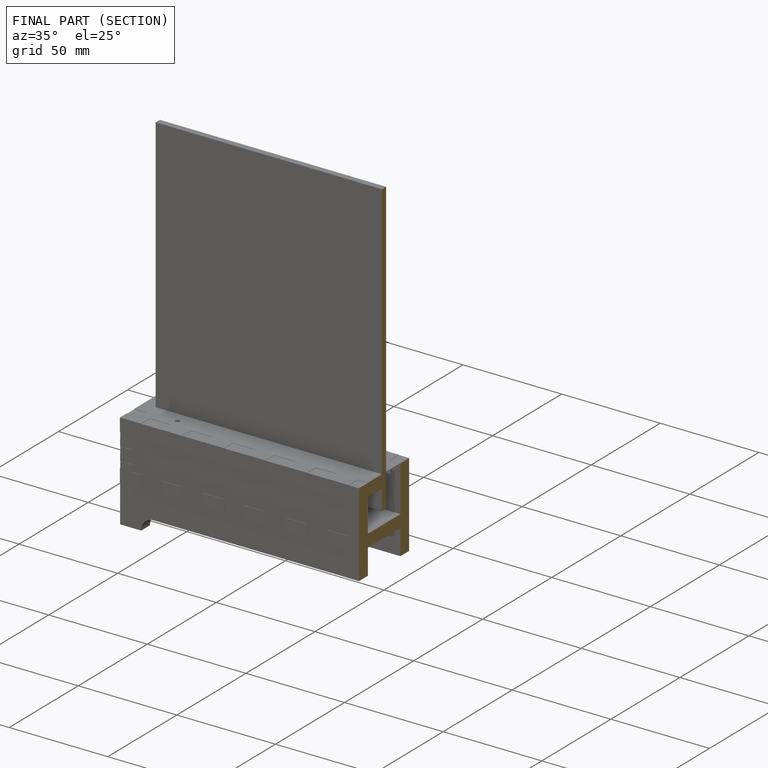
[diagram: finished part — half-section view (interior)]
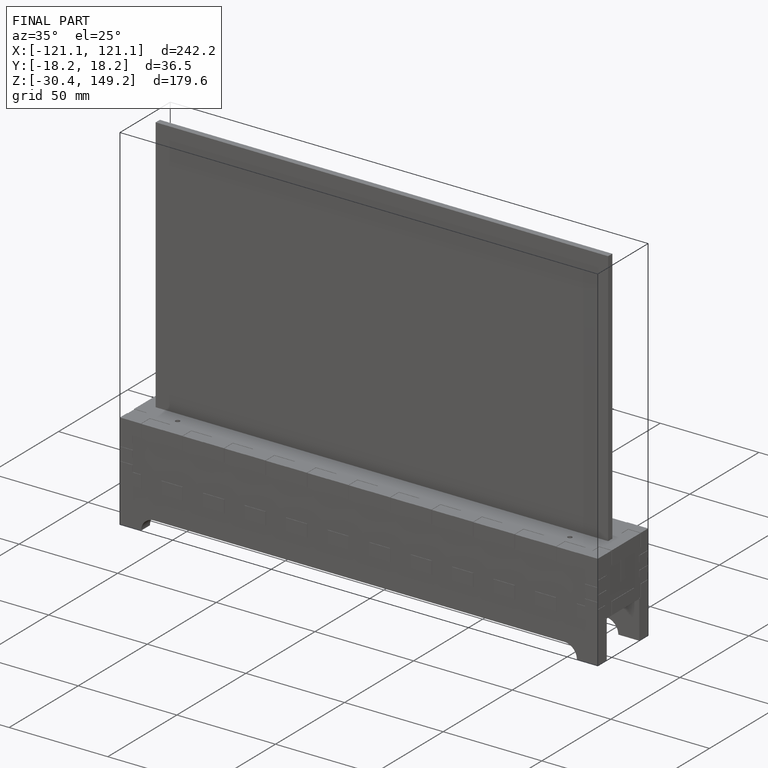
[diagram: finished part — iso view with bounding-box wireframe]
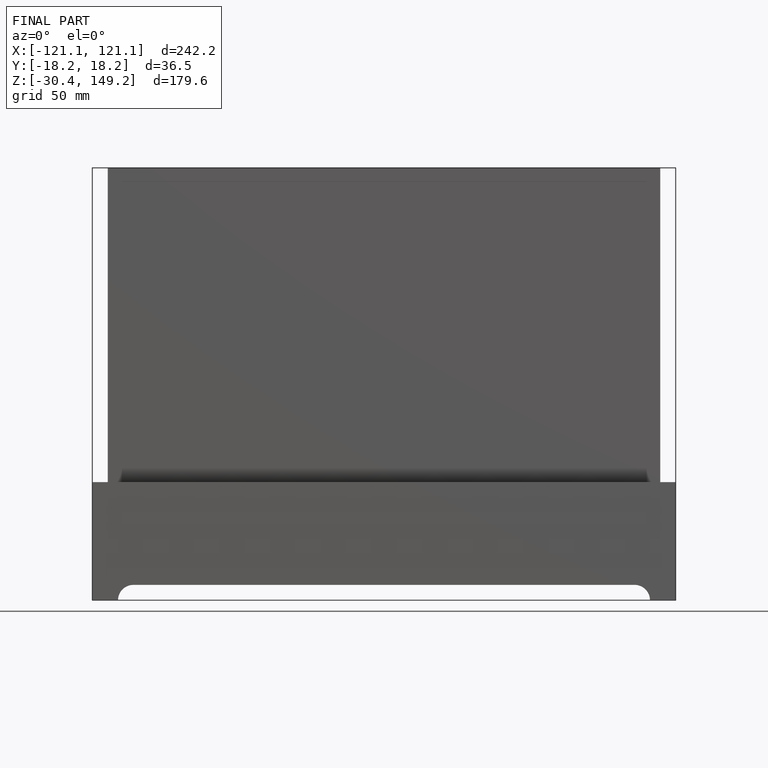
[diagram: finished part — front view with bounding-box wireframe]
